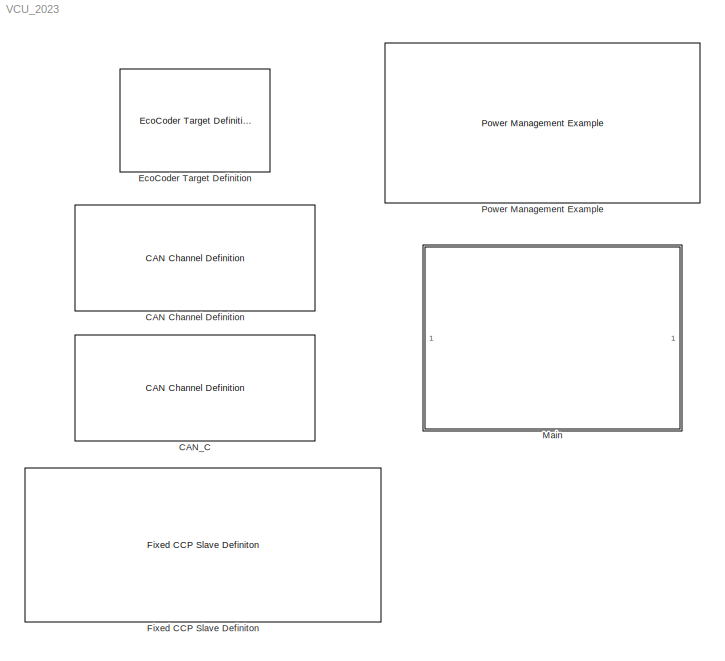
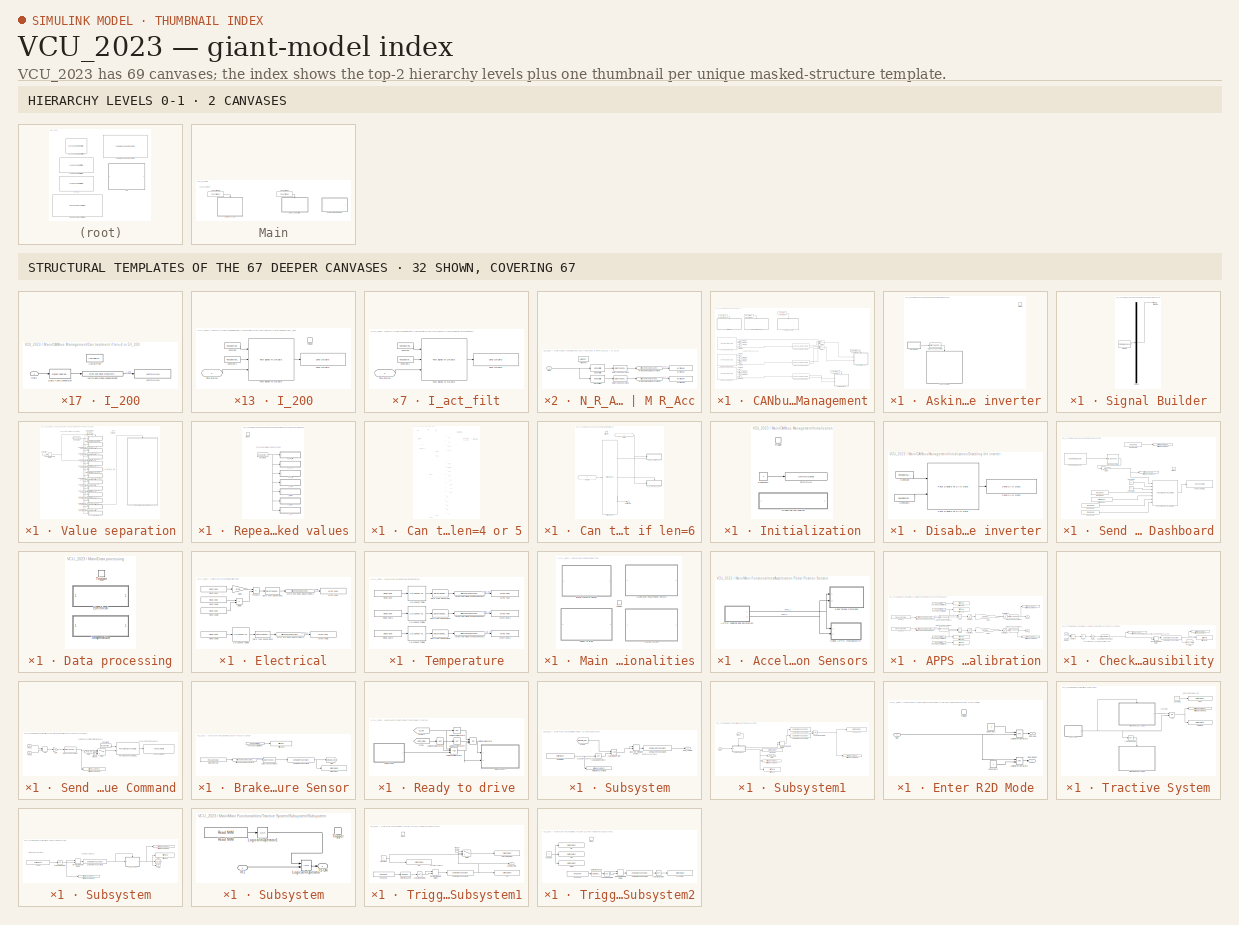
[diagram: thumbnail index - top-2 hierarchy levels (2 canvases) + 32 structural-template representatives of the remaining 67 canvases]
MODEL VCU_2023
KIND model
CONFIG InitFcn = EcoCoder_PreCheckLic();
CONFIG PreLoadFcn = try\nMDL_setup;\ncatch\nend\n
BLOCK [Reference] CAN Channel Definition  REF=CoderSF_BSW_Libs/CAN/CAN Channel Definition
  EcoCoderBlockID = C001_CANDef
  MultiThreadCoSim = auto
  Ports = []
  SID = 2881
  SourceBlock = CoderSF_BSW_Libs/CAN/CAN Channel Definition
  SourceType = CAN Channel Definition
  can_baudrateIndex = 500
  can_baudrateIndex_data = 500
  can_en = on
  can_en_fd = off
  can_idfilter = off
  can_rxID = hex2dec('100')
  can_rxMask = hex2dec('7ff')
  can_rxbuffer_size = 1
  can_rxextended = off
  can_txbuffer_size = 30
  canfd_txbuffer_size = 5
  channel = CAN_A
  fastSamplePoint = 7500
  nominalSamplePoint = 7500
BLOCK [Reference] CAN_C  REF=CoderSF_BSW_Libs/CAN/CAN Channel Definition
  EcoCoderBlockID = C001_CANDef
  MultiThreadCoSim = auto
  Ports = []
  SID = 2882
  SourceBlock = CoderSF_BSW_Libs/CAN/CAN Channel Definition
  SourceType = CAN Channel Definition
  can_baudrateIndex = 500
  can_baudrateIndex_data = 500
  can_en = on
  can_en_fd = off
  can_idfilter = off
  can_rxID = hex2dec('100')
  can_rxMask = hex2dec('7ff')
  can_rxbuffer_size = 1
  can_rxextended = off
  can_txbuffer_size = 30
  canfd_txbuffer_size = 5
  channel = CAN_C
  fastSamplePoint = 7500
  nominalSamplePoint = 7500
BLOCK [Reference] EcoCoder Target Definition  REF=CoderSF_BSW_Libs/EcoCoder Target Definition
  AttributesFormatString = Target :%<targetECU>
  EcoCoderBlockID = T001_Target
  Ports = []
  RTWMemSecDataConstants = Inherit from model
  RTWMemSecDataInternal = Inherit from model
  RTWMemSecDataParameters = Inherit from model
  RTWMemSecFuncExecute = Inherit from model
  RTWMemSecFuncInitTerm = Inherit from model
  SID = 2878
  SourceBlock = CoderSF_BSW_Libs/EcoCoder Target Definition
  SourceType = EcoCoder Target Definition
  cal_ram_msm = [hex2dec('40000000'),hex2dec('00002000')]
  cal_ram_wp = [hex2dec('4000F000'),hex2dec('00002000')]
  cal_rom_phy = [hex2dec('00010000'),hex2dec('00002000')]
  enNoTriggerCall = on
  flgBlockReduction = on
  flgClearAllOldFiles = on
  flgDisTargetOutFIleCounter = off
  flgShowDebugDisp = off
  internal_flash = [hex2dec('00020000'),hex2dec('000E0000')]
  stack = [hex2dec('40013000'),hex2dec('00001000')]
  targetECU = EV2274A
  tc275_cal_len = hex2dec('00008000')
  var_ram_wp = [hex2dec('40002000'),hex2dec('0000D000')]
  write_back_fixed_ram = [hex2dec('40011000'),hex2dec('00001000')]
  write_back_unfixed_ram = [hex2dec('40012000'),hex2dec('00001000')]
BLOCK [Reference] Fixed CCP Slave Definiton  REF=CoderSF_BSW_Libs/CCP/Fixed CCP Slave Definiton
  EcoCoderBlockID = C002_CCPConf
  MultiThreadCoSim = auto
  Ports = []
  SID = 2880
  SourceBlock = CoderSF_BSW_Libs/CCP/Fixed CCP Slave Definiton
  SourceType = Fixed CCP Slave Definiton
  ccpType = Configurable
  ccp_disASW = on
  ccp_enSet = on
  channel = CAN_C
  croidSet = hex2dec('100')
  daqidSet = [hex2dec('101') hex2dec('101') hex2dec('101') hex2dec('102')]
  daqlenSet = [hex2dec('0') hex2dec('20') hex2dec('30') hex2dec('30')]
  daqperSet = [5 20 100 0]
  daqpidSet = [hex2dec('0') hex2dec('3C') hex2dec('78') hex2dec('0')]
  dtoidSet = hex2dec('101')
  stationaddressSet = hex2dec('0112')
BLOCK [SubSystem] Main
  Ports = []
  RequestExecContextInheritance = off
  SID = 2976
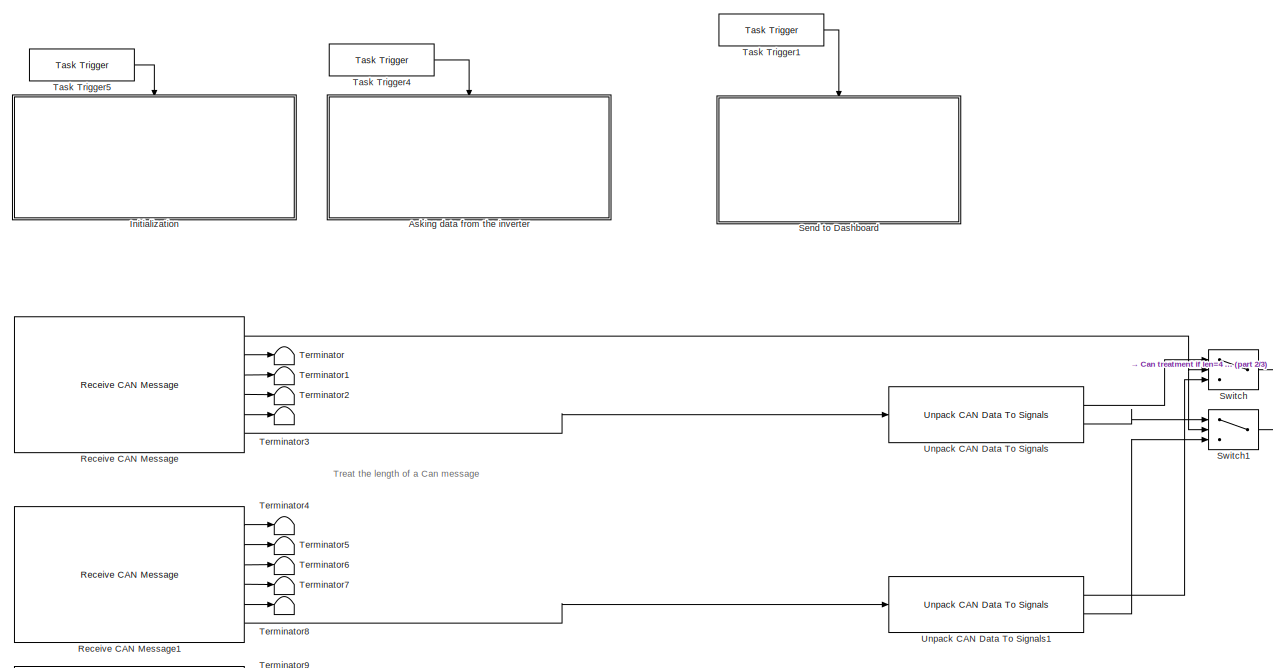
[diagram: Main/CANbus Management - part 1/3, central region]
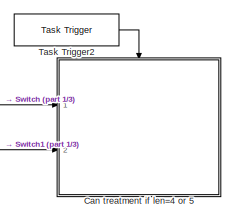
[diagram: Main/CANbus Management - part 2/3, middle right region]
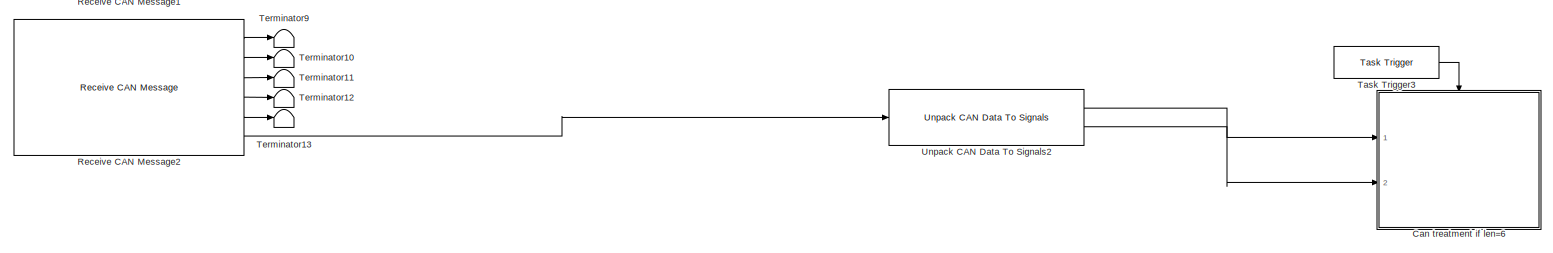
[diagram: Main/CANbus Management - part 3/3, full width, bottom band]
BLOCK [SubSystem] Main/CANbus Management
  Ports = []
  RequestExecContextInheritance = off
  SID = 3089
BLOCK [SubSystem] Main/CANbus Management/Asking data from the inverter
  Ports = [0, 0, 0, 1]
  RequestExecContextInheritance = off
  SID = 3229
BLOCK [DataTypeConversion] Main/CANbus Management/Asking data from the inverter/Data Type Conversion
  OutDataTypeStr = boolean
  RndMeth = Floor
  SID = 4264
  SaturateOnIntegerOverflow = off
BLOCK [SubSystem] Main/CANbus Management/Asking data from the inverter/Signal Builder
  ClipboardFcn = sigbuilder_block('clipboard');
  CloseFcn = sigbuilder_block('close');
  ContinueFcn = sigbuilder_block('continue');
  CopyFcn = sigbuilder_block('copy');
  DeleteFcn = sigbuilder_block('delete');
  LoadFcn = sigbuilder_block('load');
  MaskHideContents = on
  ModelCloseFcn = sigbuilder_block('modelClose');
  NameChangeFcn = sigbuilder_block('namechange');
  OpenFcn = sigbuilder_block('open',[437.6 199.2 550.4 400 ]);
  PauseFcn = sigbuilder_block('pause');
  Ports = [0, 1]
  PreSaveFcn = sigbuilder_block('preSave');
  RequestExecContextInheritance = off
  SID = 4263
  StartFcn = sigbuilder_block('start');
  StopFcn = sigbuilder_block('stop');
  Tag = STV Subsys
BLOCK [Demux] Main/CANbus Management/Asking data from the inverter/Signal Builder/Demux
  DisplayOption = none
  Outputs = 1
  Ports = [1, 1]
  SID = 4263:1
  Tag = STV Demux
BLOCK [FromWorkspace] Main/CANbus Management/Asking data from the inverter/Signal Builder/FromWs
  SID = 4263:2
  SampleTime = -1
  SigBuilderData = DataTag0
  Tag = STV FromWs
  VariableName = tuvar
  VnvData = DataTag1
BLOCK [Outport] Main/CANbus Management/Asking data from the inverter/Signal Builder/Signal 1
  SID = 4263:3
  Tag = STV Outport
BLOCK [TriggerPort] Main/CANbus Management/Asking data from the inverter/Trigger
  PortDimensions = 1
  Ports = []
  SID = 3230
  StatesWhenEnabling = held
  TriggerType = function-call
  VariantControl = Variant
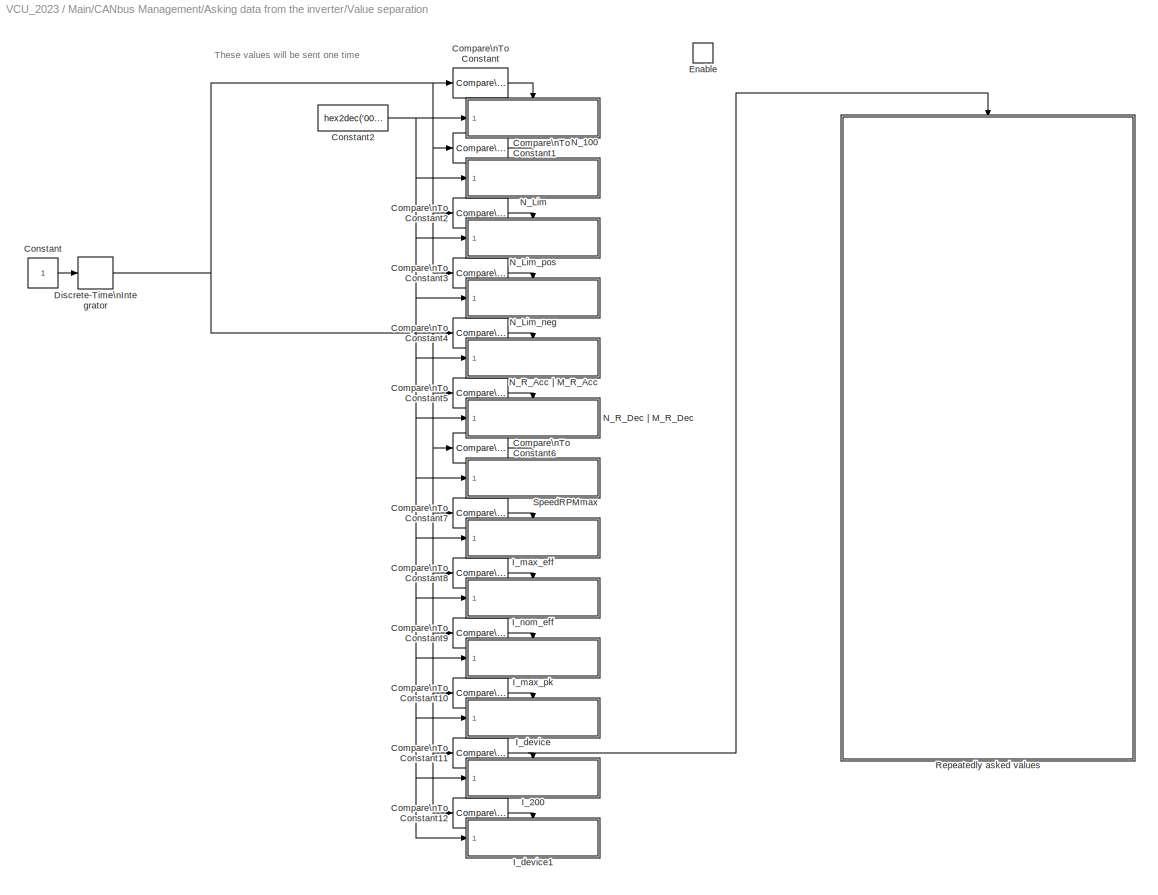
BLOCK [SubSystem] Main/CANbus Management/Asking data from the inverter/Value separation
  Ports = [0, 0, 1]
  RequestExecContextInheritance = off
  SID = 4112
BLOCK [Reference] Main/CANbus Management/Asking data from the inverter/Value separation/Compare\nTo Constant  REF=simulink/Logic and Bit\nOperations/Compare\nTo Constant
  OutDataTypeStr = boolean
  Ports = [1, 1]
  RTWMemSecDataConstants = Inherit from model
  RTWMemSecDataInternal = Inherit from model
  RTWMemSecDataParameters = Inherit from model
  RTWMemSecFuncExecute = Inherit from model
  RTWMemSecFuncInitTerm = Inherit from model
  SID = 4115
  SourceBlock = simulink/Logic and Bit\nOperations/Compare\nTo Constant
  SourceProductBaseCode = SL
  SourceType = Compare To Constant
  ZeroCross = on
  const = 0.01
  relop = >=
BLOCK [Reference] Main/CANbus Management/Asking data from the inverter/Value separation/Compare\nTo Constant1  REF=simulink/Logic and Bit\nOperations/Compare\nTo Constant
  OutDataTypeStr = boolean
  Ports = [1, 1]
  RTWMemSecDataConstants = Inherit from model
  RTWMemSecDataInternal = Inherit from model
  RTWMemSecDataParameters = Inherit from model
  RTWMemSecFuncExecute = Inherit from model
  RTWMemSecFuncInitTerm = Inherit from model
  SID = 4116
  SourceBlock = simulink/Logic and Bit\nOperations/Compare\nTo Constant
  SourceProductBaseCode = SL
  SourceType = Compare To Constant
  ZeroCross = on
  const = 0.02
  relop = >=
BLOCK [Reference] Main/CANbus Management/Asking data from the inverter/Value separation/Compare\nTo Constant10  REF=simulink/Logic and Bit\nOperations/Compare\nTo Constant
  OutDataTypeStr = boolean
  Ports = [1, 1]
  RTWMemSecDataConstants = Inherit from model
  RTWMemSecDataInternal = Inherit from model
  RTWMemSecDataParameters = Inherit from model
  RTWMemSecFuncExecute = Inherit from model
  RTWMemSecFuncInitTerm = Inherit from model
  SID = 4117
  SourceBlock = simulink/Logic and Bit\nOperations/Compare\nTo Constant
  SourceProductBaseCode = SL
  SourceType = Compare To Constant
  ZeroCross = on
  const = 0.11
  relop = >=
BLOCK [Reference] Main/CANbus Management/Asking data from the inverter/Value separation/Compare\nTo Constant11  REF=simulink/Logic and Bit\nOperations/Compare\nTo Constant
  OutDataTypeStr = boolean
  Ports = [1, 1]
  RTWMemSecDataConstants = Inherit from model
  RTWMemSecDataInternal = Inherit from model
  RTWMemSecDataParameters = Inherit from model
  RTWMemSecFuncExecute = Inherit from model
  RTWMemSecFuncInitTerm = Inherit from model
  SID = 4118
  SourceBlock = simulink/Logic and Bit\nOperations/Compare\nTo Constant
  SourceProductBaseCode = SL
  SourceType = Compare To Constant
  ZeroCross = on
  const = 0.12
  relop = >=
BLOCK [Reference] Main/CANbus Management/Asking data from the inverter/Value separation/Compare\nTo Constant12  REF=simulink/Logic and Bit\nOperations/Compare\nTo Constant
  OutDataTypeStr = boolean
  Ports = [1, 1]
  RTWMemSecDataConstants = Inherit from model
  RTWMemSecDataInternal = Inherit from model
  RTWMemSecDataParameters = Inherit from model
  RTWMemSecFuncExecute = Inherit from model
  RTWMemSecFuncInitTerm = Inherit from model
  SID = 4265
  SourceBlock = simulink/Logic and Bit\nOperations/Compare\nTo Constant
  SourceProductBaseCode = SL
  SourceType = Compare To Constant
  ZeroCross = on
  const = 0.13
  relop = >=
BLOCK [Reference] Main/CANbus Management/Asking data from the inverter/Value separation/Compare\nTo Constant2  REF=simulink/Logic and Bit\nOperations/Compare\nTo Constant
  OutDataTypeStr = boolean
  Ports = [1, 1]
  RTWMemSecDataConstants = Inherit from model
  RTWMemSecDataInternal = Inherit from model
  RTWMemSecDataParameters = Inherit from model
  RTWMemSecFuncExecute = Inherit from model
  RTWMemSecFuncInitTerm = Inherit from model
  SID = 4119
  SourceBlock = simulink/Logic and Bit\nOperations/Compare\nTo Constant
  SourceProductBaseCode = SL
  SourceType = Compare To Constant
  ZeroCross = on
  const = 0.03
  relop = >=
BLOCK [Reference] Main/CANbus Management/Asking data from the inverter/Value separation/Compare\nTo Constant3  REF=simulink/Logic and Bit\nOperations/Compare\nTo Constant
  OutDataTypeStr = boolean
  Ports = [1, 1]
  RTWMemSecDataConstants = Inherit from model
  RTWMemSecDataInternal = Inherit from model
  RTWMemSecDataParameters = Inherit from model
  RTWMemSecFuncExecute = Inherit from model
  RTWMemSecFuncInitTerm = Inherit from model
  SID = 4120
  SourceBlock = simulink/Logic and Bit\nOperations/Compare\nTo Constant
  SourceProductBaseCode = SL
  SourceType = Compare To Constant
  ZeroCross = on
  const = 0.04
  relop = >=
BLOCK [Reference] Main/CANbus Management/Asking data from the inverter/Value separation/Compare\nTo Constant4  REF=simulink/Logic and Bit\nOperations/Compare\nTo Constant
  OutDataTypeStr = boolean
  Ports = [1, 1]
  RTWMemSecDataConstants = Inherit from model
  RTWMemSecDataInternal = Inherit from model
  RTWMemSecDataParameters = Inherit from model
  RTWMemSecFuncExecute = Inherit from model
  RTWMemSecFuncInitTerm = Inherit from model
  SID = 4121
  SourceBlock = simulink/Logic and Bit\nOperations/Compare\nTo Constant
  SourceProductBaseCode = SL
  SourceType = Compare To Constant
  ZeroCross = on
  const = 0.05
  relop = >=
BLOCK [Reference] Main/CANbus Management/Asking data from the inverter/Value separation/Compare\nTo Constant5  REF=simulink/Logic and Bit\nOperations/Compare\nTo Constant
  OutDataTypeStr = boolean
  Ports = [1, 1]
  RTWMemSecDataConstants = Inherit from model
  RTWMemSecDataInternal = Inherit from model
  RTWMemSecDataParameters = Inherit from model
  RTWMemSecFuncExecute = Inherit from model
  RTWMemSecFuncInitTerm = Inherit from model
  SID = 4122
  SourceBlock = simulink/Logic and Bit\nOperations/Compare\nTo Constant
  SourceProductBaseCode = SL
  SourceType = Compare To Constant
  ZeroCross = on
  const = 0.06
  relop = >=
BLOCK [Reference] Main/CANbus Management/Asking data from the inverter/Value separation/Compare\nTo Constant6  REF=simulink/Logic and Bit\nOperations/Compare\nTo Constant
  OutDataTypeStr = boolean
  Ports = [1, 1]
  RTWMemSecDataConstants = Inherit from model
  RTWMemSecDataInternal = Inherit from model
  RTWMemSecDataParameters = Inherit from model
  RTWMemSecFuncExecute = Inherit from model
  RTWMemSecFuncInitTerm = Inherit from model
  SID = 4123
  SourceBlock = simulink/Logic and Bit\nOperations/Compare\nTo Constant
  SourceProductBaseCode = SL
  SourceType = Compare To Constant
  ZeroCross = on
  const = 0.07
  relop = >=
BLOCK [Reference] Main/CANbus Management/Asking data from the inverter/Value separation/Compare\nTo Constant7  REF=simulink/Logic and Bit\nOperations/Compare\nTo Constant
  OutDataTypeStr = boolean
  Ports = [1, 1]
  RTWMemSecDataConstants = Inherit from model
  RTWMemSecDataInternal = Inherit from model
  RTWMemSecDataParameters = Inherit from model
  RTWMemSecFuncExecute = Inherit from model
  RTWMemSecFuncInitTerm = Inherit from model
  SID = 4124
  SourceBlock = simulink/Logic and Bit\nOperations/Compare\nTo Constant
  SourceProductBaseCode = SL
  SourceType = Compare To Constant
  ZeroCross = on
  const = 0.08
  relop = >=
BLOCK [Reference] Main/CANbus Management/Asking data from the inverter/Value separation/Compare\nTo Constant8  REF=simulink/Logic and Bit\nOperations/Compare\nTo Constant
  OutDataTypeStr = boolean
  Ports = [1, 1]
  RTWMemSecDataConstants = Inherit from model
  RTWMemSecDataInternal = Inherit from model
  RTWMemSecDataParameters = Inherit from model
  RTWMemSecFuncExecute = Inherit from model
  RTWMemSecFuncInitTerm = Inherit from model
  SID = 4125
  SourceBlock = simulink/Logic and Bit\nOperations/Compare\nTo Constant
  SourceProductBaseCode = SL
  SourceType = Compare To Constant
  ZeroCross = on
  const = 0.09
  relop = >=
BLOCK [Reference] Main/CANbus Management/Asking data from the inverter/Value separation/Compare\nTo Constant9  REF=simulink/Logic and Bit\nOperations/Compare\nTo Constant
  OutDataTypeStr = boolean
  Ports = [1, 1]
  RTWMemSecDataConstants = Inherit from model
  RTWMemSecDataInternal = Inherit from model
  RTWMemSecDataParameters = Inherit from model
  RTWMemSecFuncExecute = Inherit from model
  RTWMemSecFuncInitTerm = Inherit from model
  SID = 4126
  SourceBlock = simulink/Logic and Bit\nOperations/Compare\nTo Constant
  SourceProductBaseCode = SL
  SourceType = Compare To Constant
  ZeroCross = on
  const = 0.1
  relop = >=
BLOCK [Constant] Main/CANbus Management/Asking data from the inverter/Value separation/Constant
  OutDataTypeStr = boolean
  SID = 4127
BLOCK [Constant] Main/CANbus Management/Asking data from the inverter/Value separation/Constant2
  OutDataTypeStr = uint8
  SID = 4128
  Value = hex2dec('00')
BLOCK [DiscreteIntegrator] Main/CANbus Management/Asking data from the inverter/Value separation/Discrete-Time\nIntegrator
  ICPrevOutput = DiscIntNeverNeededParam
  ICPrevScaledInput = DiscIntNeverNeededParam
  InitialConditionSetting = Auto
  Ports = [1, 1]
  SID = 4129
  SampleTime = -1
BLOCK [EnablePort] Main/CANbus Management/Asking data from the inverter/Value separation/Enable
  Ports = []
  SID = 4261
BLOCK [SubSystem] Main/CANbus Management/Asking data from the inverter/Value separation/I_200
  Ports = [1, 0, 0, 1]
  RequestExecContextInheritance = off
  SID = 4130
BLOCK [Constant] Main/CANbus Management/Asking data from the inverter/Value separation/I_200/Constant
  OutDataTypeStr = uint8
  SID = 4133
  Value = hex2dec('3d')
BLOCK [Constant] Main/CANbus Management/Asking data from the inverter/Value separation/I_200/Constant1
  OutDataTypeStr = uint8
  SID = 4134
  Value = hex2dec('d9')
BLOCK [Reference] Main/CANbus Management/Asking data from the inverter/Value separation/I_200/Pack Signals To CAN Data  REF=CoderSF_BSW_Libs/CAN/Pack Signals To CAN Data
  MultiThreadCoSim = auto
  Ports = [3, 1]
  SID = 4135
  Signal = {{'REG_31'  'Data1' 'Data2'},[0 8 16],[8 8 8],{'uint8'  'uint8' 'uint8'},{'Intel' 'Intel' 'Intel'}}
  SourceBlock = CoderSF_BSW_Libs/CAN/Pack Signals To CAN Data
  SourceType = Pack Signals To CAN Data
BLOCK [Reference] Main/CANbus Management/Asking data from the inverter/Value separation/I_200/Send CAN Data  REF=CoderSF_BSW_Libs/CAN/Send CAN Data
  MultiThreadCoSim = auto
  Ports = [1]
  SID = 4136
  SourceBlock = CoderSF_BSW_Libs/CAN/Send CAN Data
  SourceType = Send CAN Data
  channel = CAN_A
  frametype = Standard(11-bit ID)
  showerror = off
  txid = hex2dec('201')
  txlen = 3
BLOCK [Inport] Main/CANbus Management/Asking data from the inverter/Value separation/I_200/Time interval
  SID = 4131
BLOCK [TriggerPort] Main/CANbus Management/Asking data from the inverter/Value separation/I_200/Trigger
  Ports = []
  SID = 4132
  StatesWhenEnabling = held
  VariantControl = Variant
BLOCK [SubSystem] Main/CANbus Management/Asking data from the inverter/Value separation/I_device
  Ports = [1, 0, 0, 1]
  RequestExecContextInheritance = off
  SID = 4137
BLOCK [Constant] Main/CANbus Management/Asking data from the inverter/Value separation/I_device/Constant
  OutDataTypeStr = uint8
  SID = 4140
  Value = hex2dec('3d')
BLOCK [Constant] Main/CANbus Management/Asking data from the inverter/Value separation/I_device/Constant1
  OutDataTypeStr = uint8
  SID = 4141
  Value = hex2dec('c6')
BLOCK [Reference] Main/CANbus Management/Asking data from the inverter/Value separation/I_device/Pack Signals To CAN Data  REF=CoderSF_BSW_Libs/CAN/Pack Signals To CAN Data
  MultiThreadCoSim = auto
  Ports = [3, 1]
  SID = 4142
  Signal = {{'REG_31'  'Data1' 'Data2'},[0 8 16],[8 8 8],{'uint8'  'uint8' 'uint8'},{'Intel' 'Intel' 'Intel'}}
  SourceBlock = CoderSF_BSW_Libs/CAN/Pack Signals To CAN Data
  SourceType = Pack Signals To CAN Data
BLOCK [Reference] Main/CANbus Management/Asking data from the inverter/Value separation/I_device/Send CAN Data  REF=CoderSF_BSW_Libs/CAN/Send CAN Data
  MultiThreadCoSim = auto
  Ports = [1]
  SID = 4143
  SourceBlock = CoderSF_BSW_Libs/CAN/Send CAN Data
  SourceType = Send CAN Data
  channel = CAN_A
  frametype = Standard(11-bit ID)
  showerror = off
  txid = hex2dec('201')
  txlen = 3
BLOCK [Inport] Main/CANbus Management/Asking data from the inverter/Value separation/I_device/Time interval
  SID = 4138
BLOCK [TriggerPort] Main/CANbus Management/Asking data from the inverter/Value separation/I_device/Trigger
  Ports = []
  SID = 4139
  StatesWhenEnabling = held
  VariantControl = Variant
BLOCK [SubSystem] Main/CANbus Management/Asking data from the inverter/Value separation/I_device1
  Ports = [1, 0, 0, 1]
  RequestExecContextInheritance = off
  SID = 4273
BLOCK [Constant] Main/CANbus Management/Asking data from the inverter/Value separation/I_device1/Constant
  OutDataTypeStr = uint8
  SID = 4276
  Value = hex2dec('3d')
BLOCK [Constant] Main/CANbus Management/Asking data from the inverter/Value separation/I_device1/Constant1
  OutDataTypeStr = uint8
  SID = 4277
  Value = hex2dec('a8')
BLOCK [Reference] Main/CANbus Management/Asking data from the inverter/Value separation/I_device1/Pack Signals To CAN Data  REF=CoderSF_BSW_Libs/CAN/Pack Signals To CAN Data
  MultiThreadCoSim = auto
  Ports = [3, 1]
  SID = 4278
  Signal = {{'REG_31'  'Data1' 'Data2'},[0 8 16],[8 8 8],{'uint8'  'uint8' 'uint8'},{'Intel' 'Intel' 'Intel'}}
  SourceBlock = CoderSF_BSW_Libs/CAN/Pack Signals To CAN Data
  SourceType = Pack Signals To CAN Data
BLOCK [Reference] Main/CANbus Management/Asking data from the inverter/Value separation/I_device1/Send CAN Data  REF=CoderSF_BSW_Libs/CAN/Send CAN Data
  MultiThreadCoSim = auto
  Ports = [1]
  SID = 4279
  SourceBlock = CoderSF_BSW_Libs/CAN/Send CAN Data
  SourceType = Send CAN Data
  channel = CAN_A
  frametype = Standard(11-bit ID)
  showerror = off
  txid = hex2dec('201')
  txlen = 3
BLOCK [Inport] Main/CANbus Management/Asking data from the inverter/Value separation/I_device1/Time interval
  SID = 4274
BLOCK [TriggerPort] Main/CANbus Management/Asking data from the inverter/Value separation/I_device1/Trigger
  Ports = []
  SID = 4275
  StatesWhenEnabling = held
  VariantControl = Variant
BLOCK [SubSystem] Main/CANbus Management/Asking data from the inverter/Value separation/I_max_eff
  Ports = [1, 0, 0, 1]
  RequestExecContextInheritance = off
  SID = 4144
BLOCK [Constant] Main/CANbus Management/Asking data from the inverter/Value separation/I_max_eff/Constant
  OutDataTypeStr = uint8
  SID = 4147
  Value = hex2dec('3d')
BLOCK [Constant] Main/CANbus Management/Asking data from the inverter/Value separation/I_max_eff/Constant1
  OutDataTypeStr = uint8
  SID = 4148
  Value = hex2dec('4d')
BLOCK [Reference] Main/CANbus Management/Asking data from the inverter/Value separation/I_max_eff/Pack Signals To CAN Data  REF=CoderSF_BSW_Libs/CAN/Pack Signals To CAN Data
  MultiThreadCoSim = auto
  Ports = [3, 1]
  SID = 4149
  Signal = {{'REG_31'  'Data1' 'Data2'},[0 8 16],[8 8 8],{'uint8'  'uint8' 'uint8'},{'Intel' 'Intel' 'Intel'}}
  SourceBlock = CoderSF_BSW_Libs/CAN/Pack Signals To CAN Data
  SourceType = Pack Signals To CAN Data
BLOCK [Reference] Main/CANbus Management/Asking data from the inverter/Value separation/I_max_eff/Send CAN Data  REF=CoderSF_BSW_Libs/CAN/Send CAN Data
  MultiThreadCoSim = auto
  Ports = [1]
  SID = 4150
  SourceBlock = CoderSF_BSW_Libs/CAN/Send CAN Data
  SourceType = Send CAN Data
  channel = CAN_A
  frametype = Standard(11-bit ID)
  showerror = off
  txid = hex2dec('201')
  txlen = 3
BLOCK [Inport] Main/CANbus Management/Asking data from the inverter/Value separation/I_max_eff/Time interval
  SID = 4145
BLOCK [TriggerPort] Main/CANbus Management/Asking data from the inverter/Value separation/I_max_eff/Trigger
  Ports = []
  SID = 4146
  StatesWhenEnabling = held
  VariantControl = Variant
BLOCK [SubSystem] Main/CANbus Management/Asking data from the inverter/Value separation/I_max_pk
  Ports = [1, 0, 0, 1]
  RequestExecContextInheritance = off
  SID = 4151
BLOCK [Constant] Main/CANbus Management/Asking data from the inverter/Value separation/I_max_pk/Constant
  OutDataTypeStr = uint8
  SID = 4154
  Value = hex2dec('3d')
BLOCK [Constant] Main/CANbus Management/Asking data from the inverter/Value separation/I_max_pk/Constant1
  OutDataTypeStr = uint8
  SID = 4155
  Value = hex2dec('c4')
BLOCK [Reference] Main/CANbus Management/Asking data from the inverter/Value separation/I_max_pk/Pack Signals To CAN Data  REF=CoderSF_BSW_Libs/CAN/Pack Signals To CAN Data
  MultiThreadCoSim = auto
  Ports = [3, 1]
  SID = 4156
  Signal = {{'REG_31'  'Data1' 'Data2'},[0 8 16],[8 8 8],{'uint8'  'uint8' 'uint8'},{'Intel' 'Intel' 'Intel'}}
  SourceBlock = CoderSF_BSW_Libs/CAN/Pack Signals To CAN Data
  SourceType = Pack Signals To CAN Data
BLOCK [Reference] Main/CANbus Management/Asking data from the inverter/Value separation/I_max_pk/Send CAN Data  REF=CoderSF_BSW_Libs/CAN/Send CAN Data
  MultiThreadCoSim = auto
  Ports = [1]
  SID = 4157
  SourceBlock = CoderSF_BSW_Libs/CAN/Send CAN Data
  SourceType = Send CAN Data
  channel = CAN_A
  frametype = Standard(11-bit ID)
  showerror = off
  txid = hex2dec('201')
  txlen = 3
BLOCK [Inport] Main/CANbus Management/Asking data from the inverter/Value separation/I_max_pk/Time interval
  SID = 4152
BLOCK [TriggerPort] Main/CANbus Management/Asking data from the inverter/Value separation/I_max_pk/Trigger
  Ports = []
  SID = 4153
  StatesWhenEnabling = held
  VariantControl = Variant
BLOCK [SubSystem] Main/CANbus Management/Asking data from the inverter/Value separation/I_nom_eff
  Ports = [1, 0, 0, 1]
  RequestExecContextInheritance = off
  SID = 4158
BLOCK [Constant] Main/CANbus Management/Asking data from the inverter/Value separation/I_nom_eff/Constant
  OutDataTypeStr = uint8
  SID = 4161
  Value = hex2dec('3d')
BLOCK [Constant] Main/CANbus Management/Asking data from the inverter/Value separation/I_nom_eff/Constant1
  OutDataTypeStr = uint8
  SID = 4162
  Value = hex2dec('4e')
BLOCK [Reference] Main/CANbus Management/Asking data from the inverter/Value separation/I_nom_eff/Pack Signals To CAN Data  REF=CoderSF_BSW_Libs/CAN/Pack Signals To CAN Data
  MultiThreadCoSim = auto
  Ports = [3, 1]
  SID = 4163
  Signal = {{'REG_31'  'Data1' 'Data2'},[0 8 16],[8 8 8],{'uint8'  'uint8' 'uint8'},{'Intel' 'Intel' 'Intel'}}
  SourceBlock = CoderSF_BSW_Libs/CAN/Pack Signals To CAN Data
  SourceType = Pack Signals To CAN Data
BLOCK [Reference] Main/CANbus Management/Asking data from the inverter/Value separation/I_nom_eff/Send CAN Data  REF=CoderSF_BSW_Libs/CAN/Send CAN Data
  MultiThreadCoSim = auto
  Ports = [1]
  SID = 4164
  SourceBlock = CoderSF_BSW_Libs/CAN/Send CAN Data
  SourceType = Send CAN Data
  channel = CAN_A
  frametype = Standard(11-bit ID)
  showerror = off
  txid = hex2dec('201')
  txlen = 3
BLOCK [Inport] Main/CANbus Management/Asking data from the inverter/Value separation/I_nom_eff/Time interval
  SID = 4159
BLOCK [TriggerPort] Main/CANbus Management/Asking data from the inverter/Value separation/I_nom_eff/Trigger
  Ports = []
  SID = 4160
  StatesWhenEnabling = held
  VariantControl = Variant
BLOCK [SubSystem] Main/CANbus Management/Asking data from the inverter/Value separation/N_100
  Ports = [1, 0, 0, 1]
  RequestExecContextInheritance = off
  SID = 4165
BLOCK [Constant] Main/CANbus Management/Asking data from the inverter/Value separation/N_100/Constant
  OutDataTypeStr = uint8
  SID = 4168
  Value = hex2dec('3d')
BLOCK [Constant] Main/CANbus Management/Asking data from the inverter/Value separation/N_100/Constant1
  OutDataTypeStr = uint8
  SID = 4169
  Value = hex2dec('c8')
BLOCK [Reference] Main/CANbus Management/Asking data from the inverter/Value separation/N_100/Pack Signals To CAN Data  REF=CoderSF_BSW_Libs/CAN/Pack Signals To CAN Data
  MultiThreadCoSim = auto
  Ports = [3, 1]
  SID = 4170
  Signal = {{'REG_31'  'Data1' 'Data2'},[0 8 16],[8 8 8],{'uint8'  'uint8' 'uint8'},{'Intel' 'Intel' 'Intel'}}
  SourceBlock = CoderSF_BSW_Libs/CAN/Pack Signals To CAN Data
  SourceType = Pack Signals To CAN Data
BLOCK [Reference] Main/CANbus Management/Asking data from the inverter/Value separation/N_100/Send CAN Data  REF=CoderSF_BSW_Libs/CAN/Send CAN Data
  MultiThreadCoSim = auto
  Ports = [1]
  SID = 4171
  SourceBlock = CoderSF_BSW_Libs/CAN/Send CAN Data
  SourceType = Send CAN Data
  channel = CAN_A
  frametype = Standard(11-bit ID)
  showerror = off
  txid = hex2dec('201')
  txlen = 3
BLOCK [Inport] Main/CANbus Management/Asking data from the inverter/Value separation/N_100/Time interval
  SID = 4166
BLOCK [TriggerPort] Main/CANbus Management/Asking data from the inverter/Value separation/N_100/Trigger
  Ports = []
  SID = 4167
  StatesWhenEnabling = held
  VariantControl = Variant
BLOCK [SubSystem] Main/CANbus Management/Asking data from the inverter/Value separation/N_Lim
  Ports = [1, 0, 0, 1]
  RequestExecContextInheritance = off
  SID = 4172
BLOCK [Constant] Main/CANbus Management/Asking data from the inverter/Value separation/N_Lim/Constant
  OutDataTypeStr = uint8
  SID = 4175
  Value = hex2dec('3d')
BLOCK [Constant] Main/CANbus Management/Asking data from the inverter/Value separation/N_Lim/Constant1
  OutDataTypeStr = uint8
  SID = 4176
  Value = hex2dec('34')
BLOCK [Reference] Main/CANbus Management/Asking data from the inverter/Value separation/N_Lim/Pack Signals To CAN Data  REF=CoderSF_BSW_Libs/CAN/Pack Signals To CAN Data
  MultiThreadCoSim = auto
  Ports = [3, 1]
  SID = 4177
  Signal = {{'REG_31'  'Data1' 'Data2'},[0 8 16],[8 8 8],{'uint8'  'uint8' 'uint8'},{'Intel' 'Intel' 'Intel'}}
  SourceBlock = CoderSF_BSW_Libs/CAN/Pack Signals To CAN Data
  SourceType = Pack Signals To CAN Data
BLOCK [Reference] Main/CANbus Management/Asking data from the inverter/Value separation/N_Lim/Send CAN Data  REF=CoderSF_BSW_Libs/CAN/Send CAN Data
  MultiThreadCoSim = auto
  Ports = [1]
  SID = 4178
  SourceBlock = CoderSF_BSW_Libs/CAN/Send CAN Data
  SourceType = Send CAN Data
  channel = CAN_A
  frametype = Standard(11-bit ID)
  showerror = off
  txid = hex2dec('201')
  txlen = 3
BLOCK [Inport] Main/CANbus Management/Asking data from the inverter/Value separation/N_Lim/Time interval
  SID = 4173
BLOCK [TriggerPort] Main/CANbus Management/Asking data from the inverter/Value separation/N_Lim/Trigger
  Ports = []
  SID = 4174
  StatesWhenEnabling = held
  VariantControl = Variant
BLOCK [SubSystem] Main/CANbus Management/Asking data from the inverter/Value separation/N_Lim_neg
  Ports = [1, 0, 0, 1]
  RequestExecContextInheritance = off
  SID = 4179
BLOCK [Constant] Main/CANbus Management/Asking data from the inverter/Value separation/N_Lim_neg/Constant
  OutDataTypeStr = uint8
  SID = 4182
  Value = hex2dec('3d')
BLOCK [Constant] Main/CANbus Management/Asking data from the inverter/Value separation/N_Lim_neg/Constant1
  OutDataTypeStr = uint8
  SID = 4183
  Value = hex2dec('3e')
BLOCK [Reference] Main/CANbus Management/Asking data from the inverter/Value separation/N_Lim_neg/Pack Signals To CAN Data  REF=CoderSF_BSW_Libs/CAN/Pack Signals To CAN Data
  MultiThreadCoSim = auto
  Ports = [3, 1]
  SID = 4184
  Signal = {{'REG_31'  'Data1' 'Data2'},[0 8 16],[8 8 8],{'uint8'  'uint8' 'uint8'},{'Intel' 'Intel' 'Intel'}}
  SourceBlock = CoderSF_BSW_Libs/CAN/Pack Signals To CAN Data
  SourceType = Pack Signals To CAN Data
BLOCK [Reference] Main/CANbus Management/Asking data from the inverter/Value separation/N_Lim_neg/Send CAN Data  REF=CoderSF_BSW_Libs/CAN/Send CAN Data
  MultiThreadCoSim = auto
  Ports = [1]
  SID = 4185
  SourceBlock = CoderSF_BSW_Libs/CAN/Send CAN Data
  SourceType = Send CAN Data
  channel = CAN_A
  frametype = Standard(11-bit ID)
  showerror = off
  txid = hex2dec('201')
  txlen = 3
BLOCK [Inport] Main/CANbus Management/Asking data from the inverter/Value separation/N_Lim_neg/Time interval
  SID = 4180
BLOCK [TriggerPort] Main/CANbus Management/Asking data from the inverter/Value separation/N_Lim_neg/Trigger
  Ports = []
  SID = 4181
  StatesWhenEnabling = held
  VariantControl = Variant
BLOCK [SubSystem] Main/CANbus Management/Asking data from the inverter/Value separation/N_Lim_pos
  Ports = [1, 0, 0, 1]
  RequestExecContextInheritance = off
  SID = 4186
BLOCK [Constant] Main/CANbus Management/Asking data from the inverter/Value separation/N_Lim_pos/Constant
  OutDataTypeStr = uint8
  SID = 4189
  Value = hex2dec('3d')
BLOCK [Constant] Main/CANbus Management/Asking data from the inverter/Value separation/N_Lim_pos/Constant1
  OutDataTypeStr = uint8
  SID = 4190
  Value = hex2dec('3f')
BLOCK [Reference] Main/CANbus Management/Asking data from the inverter/Value separation/N_Lim_pos/Pack Signals To CAN Data  REF=CoderSF_BSW_Libs/CAN/Pack Signals To CAN Data
  MultiThreadCoSim = auto
  Ports = [3, 1]
  SID = 4191
  Signal = {{'REG_31'  'Data1' 'Data2'},[0 8 16],[8 8 8],{'uint8'  'uint8' 'uint8'},{'Intel' 'Intel' 'Intel'}}
  SourceBlock = CoderSF_BSW_Libs/CAN/Pack Signals To CAN Data
  SourceType = Pack Signals To CAN Data
BLOCK [Reference] Main/CANbus Management/Asking data from the inverter/Value separation/N_Lim_pos/Send CAN Data  REF=CoderSF_BSW_Libs/CAN/Send CAN Data
  MultiThreadCoSim = auto
  Ports = [1]
  SID = 4192
  SourceBlock = CoderSF_BSW_Libs/CAN/Send CAN Data
  SourceType = Send CAN Data
  channel = CAN_A
  frametype = Standard(11-bit ID)
  showerror = off
  txid = hex2dec('201')
  txlen = 3
BLOCK [Inport] Main/CANbus Management/Asking data from the inverter/Value separation/N_Lim_pos/Time interval
  SID = 4187
BLOCK [TriggerPort] Main/CANbus Management/Asking data from the inverter/Value separation/N_Lim_pos/Trigger
  Ports = []
  SID = 4188
  StatesWhenEnabling = held
  VariantControl = Variant
BLOCK [SubSystem] Main/CANbus Management/Asking data from the inverter/Value separation/N_R_Acc | M_R_Acc
  Ports = [1, 0, 0, 1]
  RequestExecContextInheritance = off
  SID = 4193
BLOCK [Constant] Main/CANbus Management/Asking data from the inverter/Value separation/N_R_Acc | M_R_Acc/Constant
  OutDataTypeStr = uint8
  SID = 4196
  Value = hex2dec('3d')
BLOCK [Constant] Main/CANbus Management/Asking data from the inverter/Value separation/N_R_Acc | M_R_Acc/Constant1
  OutDataTypeStr = uint8
  SID = 4197
  Value = hex2dec('35')
BLOCK [Reference] Main/CANbus Management/Asking data from the inverter/Value separation/N_R_Acc | M_R_Acc/Pack Signals To CAN Data  REF=CoderSF_BSW_Libs/CAN/Pack Signals To CAN Data
  MultiThreadCoSim = auto
  Ports = [3, 1]
  SID = 4198
  Signal = {{'REG_31'  'Data1' 'Data2'},[0 8 16],[8 8 8],{'uint8'  'uint8' 'uint8'},{'Intel' 'Intel' 'Intel'}}
  SourceBlock = CoderSF_BSW_Libs/CAN/Pack Signals To CAN Data
  SourceType = Pack Signals To CAN Data
BLOCK [Reference] Main/CANbus Management/Asking data from the inverter/Value separation/N_R_Acc | M_R_Acc/Send CAN Data  REF=CoderSF_BSW_Libs/CAN/Send CAN Data
  MultiThreadCoSim = auto
  Ports = [1]
  SID = 4199
  SourceBlock = CoderSF_BSW_Libs/CAN/Send CAN Data
  SourceType = Send CAN Data
  channel = CAN_A
  frametype = Standard(11-bit ID)
  showerror = off
  txid = hex2dec('201')
  txlen = 3
BLOCK [Inport] Main/CANbus Management/Asking data from the inverter/Value separation/N_R_Acc | M_R_Acc/Time interval
  SID = 4194
BLOCK [TriggerPort] Main/CANbus Management/Asking data from the inverter/Value separation/N_R_Acc | M_R_Acc/Trigger
  Ports = []
  SID = 4195
  StatesWhenEnabling = held
  VariantControl = Variant
BLOCK [SubSystem] Main/CANbus Management/Asking data from the inverter/Value separation/N_R_Dec | M_R_Dec
  Ports = [1, 0, 0, 1]
  RequestExecContextInheritance = off
  SID = 4200
BLOCK [Constant] Main/CANbus Management/Asking data from the inverter/Value separation/N_R_Dec | M_R_Dec/Constant
  OutDataTypeStr = uint8
  SID = 4203
  Value = hex2dec('3d')
BLOCK [Constant] Main/CANbus Management/Asking data from the inverter/Value separation/N_R_Dec | M_R_Dec/Constant1
  OutDataTypeStr = uint8
  SID = 4204
  Value = hex2dec('ed')
BLOCK [Reference] Main/CANbus Management/Asking data from the inverter/Value separation/N_R_Dec | M_R_Dec/Pack Signals To CAN Data  REF=CoderSF_BSW_Libs/CAN/Pack Signals To CAN Data
  MultiThreadCoSim = auto
  Ports = [3, 1]
  SID = 4205
  Signal = {{'REG_31'  'Data1' 'Data2'},[0 8 16],[8 8 8],{'uint8'  'uint8' 'uint8'},{'Intel' 'Intel' 'Intel'}}
  SourceBlock = CoderSF_BSW_Libs/CAN/Pack Signals To CAN Data
  SourceType = Pack Signals To CAN Data
BLOCK [Reference] Main/CANbus Management/Asking data from the inverter/Value separation/N_R_Dec | M_R_Dec/Send CAN Data  REF=CoderSF_BSW_Libs/CAN/Send CAN Data
  MultiThreadCoSim = auto
  Ports = [1]
  SID = 4206
  SourceBlock = CoderSF_BSW_Libs/CAN/Send CAN Data
  SourceType = Send CAN Data
  channel = CAN_A
  frametype = Standard(11-bit ID)
  showerror = off
  txid = hex2dec('201')
  txlen = 3
BLOCK [Inport] Main/CANbus Management/Asking data from the inverter/Value separation/N_R_Dec | M_R_Dec/Time interval
  SID = 4201
BLOCK [TriggerPort] Main/CANbus Management/Asking data from the inverter/Value separation/N_R_Dec | M_R_Dec/Trigger
  Ports = []
  SID = 4202
  StatesWhenEnabling = held
  VariantControl = Variant
BLOCK [SubSystem] Main/CANbus Management/Asking data from the inverter/Value separation/Repeatedly asked values
  Ports = [0, 0, 0, 1]
  RequestExecContextInheritance = off
  SID = 4214
BLOCK [Constant] Main/CANbus Management/Asking data from the inverter/Value separation/Repeatedly asked values/Constant1
  OutDataTypeStr = uint8
  SID = 4216
  Value = hex2dec('64')
BLOCK [SubSystem] Main/CANbus Management/Asking data from the inverter/Value separation/Repeatedly asked values/I_act_filt
  Ports = [1]
  RequestExecContextInheritance = off
  SID = 4217
BLOCK [Constant] Main/CANbus Management/Asking data from the inverter/Value separation/Repeatedly asked values/I_act_filt/Constant
  OutDataTypeStr = uint8
  SID = 4219
  Value = hex2dec('3d')
BLOCK [Constant] Main/CANbus Management/Asking data from the inverter/Value separation/Repeatedly asked values/I_act_filt/Constant1
  OutDataTypeStr = uint8
  SID = 4220
  Value = hex2dec('5f')
BLOCK [Reference] Main/CANbus Management/Asking data from the inverter/Value separation/Repeatedly asked values/I_act_filt/Pack Signals To CAN Data  REF=CoderSF_BSW_Libs/CAN/Pack Signals To CAN Data
  MultiThreadCoSim = auto
  Ports = [3, 1]
  SID = 4221
  Signal = {{'REG_31'  'Data1' 'Data2'},[0 8 16],[8 8 8],{'uint8'  'uint8' 'uint8'},{'Intel' 'Intel' 'Intel'}}
  SourceBlock = CoderSF_BSW_Libs/CAN/Pack Signals To CAN Data
  SourceType = Pack Signals To CAN Data
BLOCK [Reference] Main/CANbus Management/Asking data from the inverter/Value separation/Repeatedly asked values/I_act_filt/Send CAN Data  REF=CoderSF_BSW_Libs/CAN/Send CAN Data
  MultiThreadCoSim = auto
  Ports = [1]
  SID = 4222
  SourceBlock = CoderSF_BSW_Libs/CAN/Send CAN Data
  SourceType = Send CAN Data
  channel = CAN_A
  frametype = Standard(11-bit ID)
  showerror = off
  txid = hex2dec('201')
  txlen = 3
BLOCK [Inport] Main/CANbus Management/Asking data from the inverter/Value separation/Repeatedly asked values/I_act_filt/Time interval
  SID = 4218
BLOCK [SubSystem] Main/CANbus Management/Asking data from the inverter/Value separation/Repeatedly asked values/I_cmd
  Ports = [1]
  RequestExecContextInheritance = off
  SID = 4223
BLOCK [Constant] Main/CANbus Management/Asking data from the inverter/Value separation/Repeatedly asked values/I_cmd/Constant
  OutDataTypeStr = uint8
  SID = 4225
  Value = hex2dec('3d')
BLOCK [Constant] Main/CANbus Management/Asking data from the inverter/Value separation/Repeatedly asked values/I_cmd/Constant1
  OutDataTypeStr = uint8
  SID = 4226
  Value = hex2dec('26')
BLOCK [Reference] Main/CANbus Management/Asking data from the inverter/Value separation/Repeatedly asked values/I_cmd/Pack Signals To CAN Data  REF=CoderSF_BSW_Libs/CAN/Pack Signals To CAN Data
  MultiThreadCoSim = auto
  Ports = [3, 1]
  SID = 4227
  Signal = {{'REG_31'  'Data1' 'Data2'},[0 8 16],[8 8 8],{'uint8'  'uint8' 'uint8'},{'Intel' 'Intel' 'Intel'}}
  SourceBlock = CoderSF_BSW_Libs/CAN/Pack Signals To CAN Data
  SourceType = Pack Signals To CAN Data
BLOCK [Reference] Main/CANbus Management/Asking data from the inverter/Value separation/Repeatedly asked values/I_cmd/Send CAN Data  REF=CoderSF_BSW_Libs/CAN/Send CAN Data
  MultiThreadCoSim = auto
  Ports = [1]
  SID = 4228
  SourceBlock = CoderSF_BSW_Libs/CAN/Send CAN Data
  SourceType = Send CAN Data
  channel = CAN_A
  frametype = Standard(11-bit ID)
  showerror = off
  txid = hex2dec('201')
  txlen = 3
BLOCK [Inport] Main/CANbus Management/Asking data from the inverter/Value separation/Repeatedly asked values/I_cmd/Time interval
  SID = 4224
BLOCK [SubSystem] Main/CANbus Management/Asking data from the inverter/Value separation/Repeatedly asked values/N_act_filt
  Ports = [1]
  RequestExecContextInheritance = off
  SID = 4229
BLOCK [Constant] Main/CANbus Management/Asking data from the inverter/Value separation/Repeatedly asked values/N_act_filt/Constant
  OutDataTypeStr = uint8
  SID = 4231
  Value = hex2dec('3d')
BLOCK [Constant] Main/CANbus Management/Asking data from the inverter/Value separation/Repeatedly asked values/N_act_filt/Constant1
  OutDataTypeStr = uint8
  SID = 4232
  Value = hex2dec('a8')
BLOCK [Reference] Main/CANbus Management/Asking data from the inverter/Value separation/Repeatedly asked values/N_act_filt/Pack Signals To CAN Data  REF=CoderSF_BSW_Libs/CAN/Pack Signals To CAN Data
  MultiThreadCoSim = auto
  Ports = [3, 1]
  SID = 4233
  Signal = {{'REG_31'  'Data1' 'Data2'},[0 8 16],[8 8 8],{'uint8'  'uint8' 'uint8'},{'Intel' 'Intel' 'Intel'}}
  SourceBlock = CoderSF_BSW_Libs/CAN/Pack Signals To CAN Data
  SourceType = Pack Signals To CAN Data
BLOCK [Reference] Main/CANbus Management/Asking data from the inverter/Value separation/Repeatedly asked values/N_act_filt/Send CAN Data  REF=CoderSF_BSW_Libs/CAN/Send CAN Data
  MultiThreadCoSim = auto
  Ports = [1]
  SID = 4234
  SourceBlock = CoderSF_BSW_Libs/CAN/Send CAN Data
  SourceType = Send CAN Data
  channel = CAN_A
  frametype = Standard(11-bit ID)
  showerror = off
  txid = hex2dec('201')
  txlen = 3
BLOCK [Inport] Main/CANbus Management/Asking data from the inverter/Value separation/Repeatedly asked values/N_act_filt/Time interval
  SID = 4230
BLOCK [SubSystem] Main/CANbus Management/Asking data from the inverter/Value separation/Repeatedly asked values/T_IGBT
  Ports = [1]
  RequestExecContextInheritance = off
  SID = 4235
BLOCK [Constant] Main/CANbus Management/Asking data from the inverter/Value separation/Repeatedly asked values/T_IGBT/Constant
  OutDataTypeStr = uint8
  SID = 4237
  Value = hex2dec('3d')
BLOCK [Constant] Main/CANbus Management/Asking data from the inverter/Value separation/Repeatedly asked values/T_IGBT/Constant1
  OutDataTypeStr = uint8
  SID = 4238
  Value = hex2dec('4a')
BLOCK [Reference] Main/CANbus Management/Asking data from the inverter/Value separation/Repeatedly asked values/T_IGBT/Pack Signals To CAN Data  REF=CoderSF_BSW_Libs/CAN/Pack Signals To CAN Data
  MultiThreadCoSim = auto
  Ports = [3, 1]
  SID = 4239
  Signal = {{'REG_31'  'Data1' 'Data2'},[0 8 16],[8 8 8],{'uint8'  'uint8' 'uint8'},{'Intel' 'Intel' 'Intel'}}
  SourceBlock = CoderSF_BSW_Libs/CAN/Pack Signals To CAN Data
  SourceType = Pack Signals To CAN Data
BLOCK [Reference] Main/CANbus Management/Asking data from the inverter/Value separation/Repeatedly asked values/T_IGBT/Send CAN Data  REF=CoderSF_BSW_Libs/CAN/Send CAN Data
  MultiThreadCoSim = auto
  Ports = [1]
  SID = 4240
  SourceBlock = CoderSF_BSW_Libs/CAN/Send CAN Data
  SourceType = Send CAN Data
  channel = CAN_A
  frametype = Standard(11-bit ID)
  showerror = off
  txid = hex2dec('201')
  txlen = 3
BLOCK [Inport] Main/CANbus Management/Asking data from the inverter/Value separation/Repeatedly asked values/T_IGBT/Time interval
  SID = 4236
BLOCK [SubSystem] Main/CANbus Management/Asking data from the inverter/Value separation/Repeatedly asked values/T_air
  Ports = [1]
  RequestExecContextInheritance = off
  SID = 4241
BLOCK [Constant] Main/CANbus Management/Asking data from the inverter/Value separation/Repeatedly asked values/T_air/Constant
  OutDataTypeStr = uint8
  SID = 4243
  Value = hex2dec('3d')
BLOCK [Constant] Main/CANbus Management/Asking data from the inverter/Value separation/Repeatedly asked values/T_air/Constant1
  OutDataTypeStr = uint8
  SID = 4244
  Value = hex2dec('4b')
BLOCK [Reference] Main/CANbus Management/Asking data from the inverter/Value separation/Repeatedly asked values/T_air/Pack Signals To CAN Data  REF=CoderSF_BSW_Libs/CAN/Pack Signals To CAN Data
  MultiThreadCoSim = auto
  Ports = [3, 1]
  SID = 4245
  Signal = {{'REG_31'  'Data1' 'Data2'},[0 8 16],[8 8 8],{'uint8'  'uint8' 'uint8'},{'Intel' 'Intel' 'Intel'}}
  SourceBlock = CoderSF_BSW_Libs/CAN/Pack Signals To CAN Data
  SourceType = Pack Signals To CAN Data
BLOCK [Reference] Main/CANbus Management/Asking data from the inverter/Value separation/Repeatedly asked values/T_air/Send CAN Data  REF=CoderSF_BSW_Libs/CAN/Send CAN Data
  MultiThreadCoSim = auto
  Ports = [1]
  SID = 4246
  SourceBlock = CoderSF_BSW_Libs/CAN/Send CAN Data
  SourceType = Send CAN Data
  channel = CAN_A
  frametype = Standard(11-bit ID)
  showerror = off
  txid = hex2dec('201')
  txlen = 3
BLOCK [Inport] Main/CANbus Management/Asking data from the inverter/Value separation/Repeatedly asked values/T_air/Time interval
  SID = 4242
BLOCK [SubSystem] Main/CANbus Management/Asking data from the inverter/Value separation/Repeatedly asked values/T_motor
  Ports = [1]
  RequestExecContextInheritance = off
  SID = 4247
BLOCK [Constant] Main/CANbus Management/Asking data from the inverter/Value separation/Repeatedly asked values/T_motor/Constant
  OutDataTypeStr = uint8
  SID = 4249
  Value = hex2dec('3d')
BLOCK [Constant] Main/CANbus Management/Asking data from the inverter/Value separation/Repeatedly asked values/T_motor/Constant1
  OutDataTypeStr = uint8
  SID = 4250
  Value = hex2dec('49')
BLOCK [Reference] Main/CANbus Management/Asking data from the inverter/Value separation/Repeatedly asked values/T_motor/Pack Signals To CAN Data  REF=CoderSF_BSW_Libs/CAN/Pack Signals To CAN Data
  MultiThreadCoSim = auto
  Ports = [3, 1]
  SID = 4251
  Signal = {{'REG_31'  'Data1' 'Data2'},[0 8 16],[8 8 8],{'uint8'  'uint8' 'uint8'},{'Intel' 'Intel' 'Intel'}}
  SourceBlock = CoderSF_BSW_Libs/CAN/Pack Signals To CAN Data
  SourceType = Pack Signals To CAN Data
BLOCK [Reference] Main/CANbus Management/Asking data from the inverter/Value separation/Repeatedly asked values/T_motor/Send CAN Data  REF=CoderSF_BSW_Libs/CAN/Send CAN Data
  MultiThreadCoSim = auto
  Ports = [1]
  SID = 4252
  SourceBlock = CoderSF_BSW_Libs/CAN/Send CAN Data
  SourceType = Send CAN Data
  channel = CAN_A
  frametype = Standard(11-bit ID)
  showerror = off
  txid = hex2dec('201')
  txlen = 3
BLOCK [Inport] Main/CANbus Management/Asking data from the inverter/Value separation/Repeatedly asked values/T_motor/Time interval
  SID = 4248
BLOCK [TriggerPort] Main/CANbus Management/Asking data from the inverter/Value separation/Repeatedly asked values/Trigger
  Ports = []
  SID = 4215
  StatesWhenEnabling = held
  VariantControl = Variant
BLOCK [SubSystem] Main/CANbus Management/Asking data from the inverter/Value separation/Repeatedly asked values/Vdc_bus
  Ports = [1]
  RequestExecContextInheritance = off
  SID = 4253
BLOCK [Constant] Main/CANbus Management/Asking data from the inverter/Value separation/Repeatedly asked values/Vdc_bus/Constant
  OutDataTypeStr = uint8
  SID = 4255
  Value = hex2dec('3d')
BLOCK [Constant] Main/CANbus Management/Asking data from the inverter/Value separation/Repeatedly asked values/Vdc_bus/Constant1
  OutDataTypeStr = uint8
  SID = 4256
  Value = hex2dec('eb')
BLOCK [Reference] Main/CANbus Management/Asking data from the inverter/Value separation/Repeatedly asked values/Vdc_bus/Pack Signals To CAN Data  REF=CoderSF_BSW_Libs/CAN/Pack Signals To CAN Data
  MultiThreadCoSim = auto
  Ports = [3, 1]
  SID = 4257
  Signal = {{'REG_31'  'Data1' 'Data2'},[0 8 16],[8 8 8],{'uint8'  'uint8' 'uint8'},{'Intel' 'Intel' 'Intel'}}
  SourceBlock = CoderSF_BSW_Libs/CAN/Pack Signals To CAN Data
  SourceType = Pack Signals To CAN Data
BLOCK [Reference] Main/CANbus Management/Asking data from the inverter/Value separation/Repeatedly asked values/Vdc_bus/Send CAN Data  REF=CoderSF_BSW_Libs/CAN/Send CAN Data
  MultiThreadCoSim = auto
  Ports = [1]
  SID = 4258
  SourceBlock = CoderSF_BSW_Libs/CAN/Send CAN Data
  SourceType = Send CAN Data
  channel = CAN_A
  frametype = Standard(11-bit ID)
  showerror = off
  txid = hex2dec('201')
  txlen = 3
BLOCK [Inport] Main/CANbus Management/Asking data from the inverter/Value separation/Repeatedly asked values/Vdc_bus/Time interval
  SID = 4254
BLOCK [SubSystem] Main/CANbus Management/Asking data from the inverter/Value separation/SpeedRPMmax
  Ports = [1, 0, 0, 1]
  RequestExecContextInheritance = off
  SID = 4207
BLOCK [Constant] Main/CANbus Management/Asking data from the inverter/Value separation/SpeedRPMmax/Constant
  OutDataTypeStr = uint8
  SID = 4210
  Value = hex2dec('3d')
BLOCK [Constant] Main/CANbus Management/Asking data from the inverter/Value separation/SpeedRPMmax/Constant1
  OutDataTypeStr = uint8
  SID = 4211
  Value = hex2dec('ce')
BLOCK [Reference] Main/CANbus Management/Asking data from the inverter/Value separation/SpeedRPMmax/Pack Signals To CAN Data  REF=CoderSF_BSW_Libs/CAN/Pack Signals To CAN Data
  MultiThreadCoSim = auto
  Ports = [3, 1]
  SID = 4212
  Signal = {{'REG_31'  'Data1' 'Data2'},[0 8 16],[8 8 8],{'uint8'  'uint8' 'uint8'},{'Intel' 'Intel' 'Intel'}}
  SourceBlock = CoderSF_BSW_Libs/CAN/Pack Signals To CAN Data
  SourceType = Pack Signals To CAN Data
BLOCK [Reference] Main/CANbus Management/Asking data from the inverter/Value separation/SpeedRPMmax/Send CAN Data  REF=CoderSF_BSW_Libs/CAN/Send CAN Data
  MultiThreadCoSim = auto
  Ports = [1]
  SID = 4213
  SourceBlock = CoderSF_BSW_Libs/CAN/Send CAN Data
  SourceType = Send CAN Data
  channel = CAN_A
  frametype = Standard(11-bit ID)
  showerror = off
  txid = hex2dec('201')
  txlen = 3
BLOCK [Inport] Main/CANbus Management/Asking data from the inverter/Value separation/SpeedRPMmax/Time interval
  SID = 4208
BLOCK [TriggerPort] Main/CANbus Management/Asking data from the inverter/Value separation/SpeedRPMmax/Trigger
  Ports = []
  SID = 4209
  StatesWhenEnabling = held
  VariantControl = Variant
BLOCK [SubSystem] Main/CANbus Management/Can treatment if len=4 or 5
  Ports = [2, 0, 0, 1]
  RequestExecContextInheritance = off
  SID = 3094
  TreatAsAtomicUnit = on
BLOCK [Inport] Main/CANbus Management/Can treatment if len=4 or 5/Data
  IconDisplay = Signal name
  Port = 2
  SID = 3099
BLOCK [DataTypeConversion] Main/CANbus Management/Can treatment if len=4 or 5/Data Type Conversion
  NameLocation = left
  RndMeth = Floor
  SID = 3741
  SaturateOnIntegerOverflow = off
BLOCK [SubSystem] Main/CANbus Management/Can treatment if len=4 or 5/I_200
  Ports = [1, 0, 0, 0, 0, 0, 0, 1]
  RequestExecContextInheritance = off
  SID = 3101
  TreatAsAtomicUnit = on
BLOCK [ActionPort] Main/CANbus Management/Can treatment if len=4 or 5/I_200/Action Port
  ActionPortLabel = case [ 217 ]:
  SID = 3103
BLOCK [Inport] Main/CANbus Management/Can treatment if len=4 or 5/I_200/Data
  SID = 3102
BLOCK [DataTypeConversion] Main/CANbus Management/Can treatment if len=4 or 5/I_200/Data Type Conversion
  RndMeth = Floor
  SID = 3104
  SaturateOnIntegerOverflow = off
BLOCK [Reference] Main/CANbus Management/Can treatment if len=4 or 5/I_200/Write NVM  REF=CoderSF_BSW_Libs/Non-volatile Memory Blocks/Write NVM
  AttributesFormatString = value:%<variable_value> type:%<variable_type> D:%<variable_numD>
  EcoCoderBlockID = N001_NVMVDEF
  MultiThreadCoSim = auto
  Ports = [1]
  SID = 3105
  SourceBlock = CoderSF_BSW_Libs/Non-volatile Memory Blocks/Write NVM
  SourceType = Write NVM
  flgDef = on
  variable_name = nvmI_200
  variable_numD = 1
  variable_type = int16
  variable_value = 0
BLOCK [Reference] Main/CANbus Management/Can treatment if len=4 or 5/I_200/Write and Read Measurement  REF=CoderSF_BSW_Libs/Calibration & Measurement/Write and Read Measurement
  AttributesFormatString = type:%<variable_type> Dimensions:%<numD>
  Ports = [1, 1]
  RTWMemSecDataConstants = Inherit from model
  RTWMemSecDataInternal = Inherit from model
  RTWMemSecDataParameters = Inherit from model
  RTWMemSecFuncExecute = Inherit from model
  RTWMemSecFuncInitTerm = Inherit from model
  SID = 3106
  SourceBlock = CoderSF_BSW_Libs/Calibration & Measurement/Write and Read Measurement
  SourceType = Write and Read Measurement
  numD = 1
  variable_name = I_200
  variable_type = int16
  variable_value = 0
BLOCK [SubSystem] Main/CANbus Management/Can treatment if len=4 or 5/I_act_filt
  Ports = [1, 0, 0, 0, 0, 0, 0, 1]
  RequestExecContextInheritance = off
  SID = 3107
  TreatAsAtomicUnit = on
BLOCK [ActionPort] Main/CANbus Management/Can treatment if len=4 or 5/I_act_filt/Action Port
  ActionPortLabel = case [ 95 ]:
  SID = 3109
BLOCK [Inport] Main/CANbus Management/Can treatment if len=4 or 5/I_act_filt/Data
  SID = 3108
BLOCK [DataTypeConversion] Main/CANbus Management/Can treatment if len=4 or 5/I_act_filt/Data Type Conversion
  RndMeth = Floor
  SID = 3110
  SaturateOnIntegerOverflow = off
BLOCK [Reference] Main/CANbus Management/Can treatment if len=4 or 5/I_act_filt/Write NVM  REF=CoderSF_BSW_Libs/Non-volatile Memory Blocks/Write NVM
  AttributesFormatString = value:%<variable_value> type:%<variable_type> D:%<variable_numD>
  EcoCoderBlockID = N001_NVMVDEF
  MultiThreadCoSim = auto
  Ports = [1]
  SID = 3111
  SourceBlock = CoderSF_BSW_Libs/Non-volatile Memory Blocks/Write NVM
  SourceType = Write NVM
  flgDef = on
  variable_name = nvmI_act_filt
  variable_numD = 1
  variable_type = int16
  variable_value = 0
BLOCK [Reference] Main/CANbus Management/Can treatment if len=4 or 5/I_act_filt/Write and Read Measurement  REF=CoderSF_BSW_Libs/Calibration & Measurement/Write and Read Measurement
  AttributesFormatString = type:%<variable_type> Dimensions:%<numD>
  Ports = [1, 1]
  RTWMemSecDataConstants = Inherit from model
  RTWMemSecDataInternal = Inherit from model
  RTWMemSecDataParameters = Inherit from model
  RTWMemSecFuncExecute = Inherit from model
  RTWMemSecFuncInitTerm = Inherit from model
  SID = 3112
  SourceBlock = CoderSF_BSW_Libs/Calibration & Measurement/Write and Read Measurement
  SourceType = Write and Read Measurement
  numD = 1
  variable_name = I_act_filt
  variable_type = int16
  variable_value = 0
BLOCK [SubSystem] Main/CANbus Management/Can treatment if len=4 or 5/I_cmd
  Ports = [1, 0, 0, 0, 0, 0, 0, 1]
  RequestExecContextInheritance = off
  SID = 3113
  TreatAsAtomicUnit = on
BLOCK [ActionPort] Main/CANbus Management/Can treatment if len=4 or 5/I_cmd/Action Port
  ActionPortLabel = case [ 38 ]:
  SID = 3115
BLOCK [Inport] Main/CANbus Management/Can treatment if len=4 or 5/I_cmd/Data
  SID = 3114
BLOCK [DataTypeConversion] Main/CANbus Management/Can treatment if len=4 or 5/I_cmd/Data Type Conversion
  RndMeth = Floor
  SID = 3116
  SaturateOnIntegerOverflow = off
BLOCK [Reference] Main/CANbus Management/Can treatment if len=4 or 5/I_cmd/Write NVM  REF=CoderSF_BSW_Libs/Non-volatile Memory Blocks/Write NVM
  AttributesFormatString = value:%<variable_value> type:%<variable_type> D:%<variable_numD>
  EcoCoderBlockID = N001_NVMVDEF
  MultiThreadCoSim = auto
  Ports = [1]
  SID = 3117
  SourceBlock = CoderSF_BSW_Libs/Non-volatile Memory Blocks/Write NVM
  SourceType = Write NVM
  flgDef = on
  variable_name = nvmI_cmd
  variable_numD = 1
  variable_type = int16
  variable_value = 0
BLOCK [Reference] Main/CANbus Management/Can treatment if len=4 or 5/I_cmd/Write and Read Measurement  REF=CoderSF_BSW_Libs/Calibration & Measurement/Write and Read Measurement
  AttributesFormatString = type:%<variable_type> Dimensions:%<numD>
  Ports = [1, 1]
  RTWMemSecDataConstants = Inherit from model
  RTWMemSecDataInternal = Inherit from model
  RTWMemSecDataParameters = Inherit from model
  RTWMemSecFuncExecute = Inherit from model
  RTWMemSecFuncInitTerm = Inherit from model
  SID = 3118
  SourceBlock = CoderSF_BSW_Libs/Calibration & Measurement/Write and Read Measurement
  SourceType = Write and Read Measurement
  numD = 1
  variable_name = I_cmd
  variable_type = int16
  variable_value = 0
BLOCK [SubSystem] Main/CANbus Management/Can treatment if len=4 or 5/I_device
  Ports = [1, 0, 0, 0, 0, 0, 0, 1]
  RequestExecContextInheritance = off
  SID = 3119
  TreatAsAtomicUnit = on
BLOCK [ActionPort] Main/CANbus Management/Can treatment if len=4 or 5/I_device/Action Port
  ActionPortLabel = case [ 198 ]:
  SID = 3121
BLOCK [Inport] Main/CANbus Management/Can treatment if len=4 or 5/I_device/Data
  SID = 3120
BLOCK [DataTypeConversion] Main/CANbus Management/Can treatment if len=4 or 5/I_device/Data Type Conversion
  RndMeth = Floor
  SID = 3122
  SaturateOnIntegerOverflow = off
BLOCK [Reference] Main/CANbus Management/Can treatment if len=4 or 5/I_device/Write NVM  REF=CoderSF_BSW_Libs/Non-volatile Memory Blocks/Write NVM
  AttributesFormatString = value:%<variable_value> type:%<variable_type> D:%<variable_numD>
  EcoCoderBlockID = N001_NVMVDEF
  MultiThreadCoSim = auto
  Ports = [1]
  SID = 3123
  SourceBlock = CoderSF_BSW_Libs/Non-volatile Memory Blocks/Write NVM
  SourceType = Write NVM
  flgDef = on
  variable_name = nvmI_device
  variable_numD = 1
  variable_type = int16
  variable_value = 0
BLOCK [Reference] Main/CANbus Management/Can treatment if len=4 or 5/I_device/Write and Read Measurement  REF=CoderSF_BSW_Libs/Calibration & Measurement/Write and Read Measurement
  AttributesFormatString = type:%<variable_type> Dimensions:%<numD>
  Ports = [1, 1]
  RTWMemSecDataConstants = Inherit from model
  RTWMemSecDataInternal = Inherit from model
  RTWMemSecDataParameters = Inherit from model
  RTWMemSecFuncExecute = Inherit from model
  RTWMemSecFuncInitTerm = Inherit from model
  SID = 3124
  SourceBlock = CoderSF_BSW_Libs/Calibration & Measurement/Write and Read Measurement
  SourceType = Write and Read Measurement
  numD = 1
  variable_name = I_device
  variable_type = int16
  variable_value = 0
BLOCK [SubSystem] Main/CANbus Management/Can treatment if len=4 or 5/I_max_eff
  Ports = [1, 0, 0, 0, 0, 0, 0, 1]
  RequestExecContextInheritance = off
  SID = 3125
  TreatAsAtomicUnit = on
BLOCK [ActionPort] Main/CANbus Management/Can treatment if len=4 or 5/I_max_eff/Action Port
  ActionPortLabel = case [ 77 ]:
  SID = 3127
BLOCK [Inport] Main/CANbus Management/Can treatment if len=4 or 5/I_max_eff/Data
  SID = 3126
BLOCK [DataTypeConversion] Main/CANbus Management/Can treatment if len=4 or 5/I_max_eff/Data Type Conversion
  RndMeth = Floor
  SID = 3128
  SaturateOnIntegerOverflow = off
BLOCK [Reference] Main/CANbus Management/Can treatment if len=4 or 5/I_max_eff/Write NVM  REF=CoderSF_BSW_Libs/Non-volatile Memory Blocks/Write NVM
  AttributesFormatString = value:%<variable_value> type:%<variable_type> D:%<variable_numD>
  EcoCoderBlockID = N001_NVMVDEF
  MultiThreadCoSim = auto
  Ports = [1]
  SID = 3129
  SourceBlock = CoderSF_BSW_Libs/Non-volatile Memory Blocks/Write NVM
  SourceType = Write NVM
  flgDef = on
  variable_name = nvmI_max_eff
  variable_numD = 1
  variable_type = int16
  variable_value = 0
BLOCK [Reference] Main/CANbus Management/Can treatment if len=4 or 5/I_max_eff/Write and Read Measurement  REF=CoderSF_BSW_Libs/Calibration & Measurement/Write and Read Measurement
  AttributesFormatString = type:%<variable_type> Dimensions:%<numD>
  Ports = [1, 1]
  RTWMemSecDataConstants = Inherit from model
  RTWMemSecDataInternal = Inherit from model
  RTWMemSecDataParameters = Inherit from model
  RTWMemSecFuncExecute = Inherit from model
  RTWMemSecFuncInitTerm = Inherit from model
  SID = 3130
  SourceBlock = CoderSF_BSW_Libs/Calibration & Measurement/Write and Read Measurement
  SourceType = Write and Read Measurement
  numD = 1
  variable_name = I_max_eff
  variable_type = int16
  variable_value = 0
BLOCK [SubSystem] Main/CANbus Management/Can treatment if len=4 or 5/I_max_pk
  Ports = [1, 0, 0, 0, 0, 0, 0, 1]
  RequestExecContextInheritance = off
  SID = 3131
  TreatAsAtomicUnit = on
BLOCK [ActionPort] Main/CANbus Management/Can treatment if len=4 or 5/I_max_pk/Action Port
  ActionPortLabel = case [ 196 ]:
  SID = 3133
BLOCK [Inport] Main/CANbus Management/Can treatment if len=4 or 5/I_max_pk/Data
  SID = 3132
BLOCK [DataTypeConversion] Main/CANbus Management/Can treatment if len=4 or 5/I_max_pk/Data Type Conversion
  RndMeth = Floor
  SID = 3134
  SaturateOnIntegerOverflow = off
BLOCK [Reference] Main/CANbus Management/Can treatment if len=4 or 5/I_max_pk/Write NVM  REF=CoderSF_BSW_Libs/Non-volatile Memory Blocks/Write NVM
  AttributesFormatString = value:%<variable_value> type:%<variable_type> D:%<variable_numD>
  EcoCoderBlockID = N001_NVMVDEF
  MultiThreadCoSim = auto
  Ports = [1]
  SID = 3135
  SourceBlock = CoderSF_BSW_Libs/Non-volatile Memory Blocks/Write NVM
  SourceType = Write NVM
  flgDef = on
  variable_name = nvmI_max_pk
  variable_numD = 1
  variable_type = int16
  variable_value = 0
BLOCK [Reference] Main/CANbus Management/Can treatment if len=4 or 5/I_max_pk/Write and Read Measurement  REF=CoderSF_BSW_Libs/Calibration & Measurement/Write and Read Measurement
  AttributesFormatString = type:%<variable_type> Dimensions:%<numD>
  Ports = [1, 1]
  RTWMemSecDataConstants = Inherit from model
  RTWMemSecDataInternal = Inherit from model
  RTWMemSecDataParameters = Inherit from model
  RTWMemSecFuncExecute = Inherit from model
  RTWMemSecFuncInitTerm = Inherit from model
  SID = 3136
  SourceBlock = CoderSF_BSW_Libs/Calibration & Measurement/Write and Read Measurement
  SourceType = Write and Read Measurement
  numD = 1
  variable_name = I_max_pk
  variable_type = int16
  variable_value = 0
BLOCK [SubSystem] Main/CANbus Management/Can treatment if len=4 or 5/I_nom_eff
  Ports = [1, 0, 0, 0, 0, 0, 0, 1]
  RequestExecContextInheritance = off
  SID = 3137
  TreatAsAtomicUnit = on
BLOCK [ActionPort] Main/CANbus Management/Can treatment if len=4 or 5/I_nom_eff/Action Port
  ActionPortLabel = case [ 78 ]:
  SID = 3139
BLOCK [Inport] Main/CANbus Management/Can treatment if len=4 or 5/I_nom_eff/Data
  SID = 3138
BLOCK [DataTypeConversion] Main/CANbus Management/Can treatment if len=4 or 5/I_nom_eff/Data Type Conversion
  RndMeth = Floor
  SID = 3140
  SaturateOnIntegerOverflow = off
BLOCK [Reference] Main/CANbus Management/Can treatment if len=4 or 5/I_nom_eff/Write NVM  REF=CoderSF_BSW_Libs/Non-volatile Memory Blocks/Write NVM
  AttributesFormatString = value:%<variable_value> type:%<variable_type> D:%<variable_numD>
  EcoCoderBlockID = N001_NVMVDEF
  MultiThreadCoSim = auto
  Ports = [1]
  SID = 3141
  SourceBlock = CoderSF_BSW_Libs/Non-volatile Memory Blocks/Write NVM
  SourceType = Write NVM
  flgDef = on
  variable_name = nvmI_nom_eff
  variable_numD = 1
  variable_type = int16
  variable_value = 0
BLOCK [Reference] Main/CANbus Management/Can treatment if len=4 or 5/I_nom_eff/Write and Read Measurement  REF=CoderSF_BSW_Libs/Calibration & Measurement/Write and Read Measurement
  AttributesFormatString = type:%<variable_type> Dimensions:%<numD>
  Ports = [1, 1]
  RTWMemSecDataConstants = Inherit from model
  RTWMemSecDataInternal = Inherit from model
  RTWMemSecDataParameters = Inherit from model
  RTWMemSecFuncExecute = Inherit from model
  RTWMemSecFuncInitTerm = Inherit from model
  SID = 3142
  SourceBlock = CoderSF_BSW_Libs/Calibration & Measurement/Write and Read Measurement
  SourceType = Write and Read Measurement
  numD = 1
  variable_name = I_nom_eff
  variable_type = int16
  variable_value = 0
BLOCK [SubSystem] Main/CANbus Management/Can treatment if len=4 or 5/N_100
  Ports = [1, 0, 0, 0, 0, 0, 0, 1]
  RequestExecContextInheritance = off
  SID = 3143
  TreatAsAtomicUnit = on
BLOCK [ActionPort] Main/CANbus Management/Can treatment if len=4 or 5/N_100/Action Port
  ActionPortLabel = case [ 200 ]:
  SID = 3145
BLOCK [Inport] Main/CANbus Management/Can treatment if len=4 or 5/N_100/Data
  SID = 3144
BLOCK [DataTypeConversion] Main/CANbus Management/Can treatment if len=4 or 5/N_100/Data Type Conversion
  RndMeth = Floor
  SID = 3146
  SaturateOnIntegerOverflow = off
BLOCK [Reference] Main/CANbus Management/Can treatment if len=4 or 5/N_100/Write NVM  REF=CoderSF_BSW_Libs/Non-volatile Memory Blocks/Write NVM
  AttributesFormatString = value:%<variable_value> type:%<variable_type> D:%<variable_numD>
  EcoCoderBlockID = N001_NVMVDEF
  MultiThreadCoSim = auto
  Ports = [1]
  SID = 3147
  SourceBlock = CoderSF_BSW_Libs/Non-volatile Memory Blocks/Write NVM
  SourceType = Write NVM
  flgDef = on
  variable_name = nvmN_100
  variable_numD = 1
  variable_type = uint16
  variable_value = 0
BLOCK [Reference] Main/CANbus Management/Can treatment if len=4 or 5/N_100/Write and Read Measurement  REF=CoderSF_BSW_Libs/Calibration & Measurement/Write and Read Measurement
  AttributesFormatString = type:%<variable_type> Dimensions:%<numD>
  Ports = [1, 1]
  RTWMemSecDataConstants = Inherit from model
  RTWMemSecDataInternal = Inherit from model
  RTWMemSecDataParameters = Inherit from model
  RTWMemSecFuncExecute = Inherit from model
  RTWMemSecFuncInitTerm = Inherit from model
  SID = 3148
  SourceBlock = CoderSF_BSW_Libs/Calibration & Measurement/Write and Read Measurement
  SourceType = Write and Read Measurement
  numD = 1
  variable_name = N_100
  variable_type = uint16
  variable_value = 0
BLOCK [SubSystem] Main/CANbus Management/Can treatment if len=4 or 5/N_Lim
  Ports = [1, 0, 0, 0, 0, 0, 0, 1]
  RequestExecContextInheritance = off
  SID = 3149
  TreatAsAtomicUnit = on
BLOCK [ActionPort] Main/CANbus Management/Can treatment if len=4 or 5/N_Lim/Action Port
  ActionPortLabel = case [ 52 ]:
  SID = 3151
BLOCK [Inport] Main/CANbus Management/Can treatment if len=4 or 5/N_Lim/Data
  SID = 3150
BLOCK [DataTypeConversion] Main/CANbus Management/Can treatment if len=4 or 5/N_Lim/Data Type Conversion
  RndMeth = Floor
  SID = 3152
  SaturateOnIntegerOverflow = off
BLOCK [Reference] Main/CANbus Management/Can treatment if len=4 or 5/N_Lim/Write NVM  REF=CoderSF_BSW_Libs/Non-volatile Memory Blocks/Write NVM
  AttributesFormatString = value:%<variable_value> type:%<variable_type> D:%<variable_numD>
  EcoCoderBlockID = N001_NVMVDEF
  MultiThreadCoSim = auto
  Ports = [1]
  SID = 3153
  SourceBlock = CoderSF_BSW_Libs/Non-volatile Memory Blocks/Write NVM
  SourceType = Write NVM
  flgDef = on
  variable_name = nvmN_lim
  variable_numD = 1
  variable_type = uint16
  variable_value = 0
BLOCK [Reference] Main/CANbus Management/Can treatment if len=4 or 5/N_Lim/Write and Read Measurement  REF=CoderSF_BSW_Libs/Calibration & Measurement/Write and Read Measurement
  AttributesFormatString = type:%<variable_type> Dimensions:%<numD>
  Ports = [1, 1]
  RTWMemSecDataConstants = Inherit from model
  RTWMemSecDataInternal = Inherit from model
  RTWMemSecDataParameters = Inherit from model
  RTWMemSecFuncExecute = Inherit from model
  RTWMemSecFuncInitTerm = Inherit from model
  SID = 3154
  SourceBlock = CoderSF_BSW_Libs/Calibration & Measurement/Write and Read Measurement
  SourceType = Write and Read Measurement
  numD = 1
  variable_name = N_lim
  variable_type = uint16
  variable_value = 0
BLOCK [SubSystem] Main/CANbus Management/Can treatment if len=4 or 5/N_Lim_neg
  Ports = [1, 0, 0, 0, 0, 0, 0, 1]
  RequestExecContextInheritance = off
  SID = 3155
  TreatAsAtomicUnit = on
BLOCK [ActionPort] Main/CANbus Management/Can treatment if len=4 or 5/N_Lim_neg/Action Port
  ActionPortLabel = case [ 62 ]:
  SID = 3157
BLOCK [Inport] Main/CANbus Management/Can treatment if len=4 or 5/N_Lim_neg/Data
  SID = 3156
BLOCK [DataTypeConversion] Main/CANbus Management/Can treatment if len=4 or 5/N_Lim_neg/Data Type Conversion
  RndMeth = Floor
  SID = 3158
  SaturateOnIntegerOverflow = off
BLOCK [Reference] Main/CANbus Management/Can treatment if len=4 or 5/N_Lim_neg/Write NVM  REF=CoderSF_BSW_Libs/Non-volatile Memory Blocks/Write NVM
  AttributesFormatString = value:%<variable_value> type:%<variable_type> D:%<variable_numD>
  EcoCoderBlockID = N001_NVMVDEF
  MultiThreadCoSim = auto
  Ports = [1]
  SID = 3159
  SourceBlock = CoderSF_BSW_Libs/Non-volatile Memory Blocks/Write NVM
  SourceType = Write NVM
  flgDef = on
  variable_name = nvmN_lim_neg
  variable_numD = 1
  variable_type = int16
  variable_value = 0
BLOCK [Reference] Main/CANbus Management/Can treatment if len=4 or 5/N_Lim_neg/Write and Read Measurement  REF=CoderSF_BSW_Libs/Calibration & Measurement/Write and Read Measurement
  AttributesFormatString = type:%<variable_type> Dimensions:%<numD>
  Ports = [1, 1]
  RTWMemSecDataConstants = Inherit from model
  RTWMemSecDataInternal = Inherit from model
  RTWMemSecDataParameters = Inherit from model
  RTWMemSecFuncExecute = Inherit from model
  RTWMemSecFuncInitTerm = Inherit from model
  SID = 3160
  SourceBlock = CoderSF_BSW_Libs/Calibration & Measurement/Write and Read Measurement
  SourceType = Write and Read Measurement
  numD = 1
  variable_name = N_lim_neg
  variable_type = int16
  variable_value = 0
BLOCK [SubSystem] Main/CANbus Management/Can treatment if len=4 or 5/N_Lim_pos
  Ports = [1, 0, 0, 0, 0, 0, 0, 1]
  RequestExecContextInheritance = off
  SID = 3161
  TreatAsAtomicUnit = on
BLOCK [ActionPort] Main/CANbus Management/Can treatment if len=4 or 5/N_Lim_pos/Action Port
  ActionPortLabel = case [ 63 ]:
  SID = 3163
BLOCK [Inport] Main/CANbus Management/Can treatment if len=4 or 5/N_Lim_pos/Data
  SID = 3162
BLOCK [DataTypeConversion] Main/CANbus Management/Can treatment if len=4 or 5/N_Lim_pos/Data Type Conversion
  RndMeth = Floor
  SID = 3164
  SaturateOnIntegerOverflow = off
BLOCK [Reference] Main/CANbus Management/Can treatment if len=4 or 5/N_Lim_pos/Write NVM  REF=CoderSF_BSW_Libs/Non-volatile Memory Blocks/Write NVM
  AttributesFormatString = value:%<variable_value> type:%<variable_type> D:%<variable_numD>
  EcoCoderBlockID = N001_NVMVDEF
  MultiThreadCoSim = auto
  Ports = [1]
  SID = 3165
  SourceBlock = CoderSF_BSW_Libs/Non-volatile Memory Blocks/Write NVM
  SourceType = Write NVM
  flgDef = on
  variable_name = nvmN_lim_pos
  variable_numD = 1
  variable_type = int16
  variable_value = 0
BLOCK [Reference] Main/CANbus Management/Can treatment if len=4 or 5/N_Lim_pos/Write and Read Measurement  REF=CoderSF_BSW_Libs/Calibration & Measurement/Write and Read Measurement
  AttributesFormatString = type:%<variable_type> Dimensions:%<numD>
  Ports = [1, 1]
  RTWMemSecDataConstants = Inherit from model
  RTWMemSecDataInternal = Inherit from model
  RTWMemSecDataParameters = Inherit from model
  RTWMemSecFuncExecute = Inherit from model
  RTWMemSecFuncInitTerm = Inherit from model
  SID = 3166
  SourceBlock = CoderSF_BSW_Libs/Calibration & Measurement/Write and Read Measurement
  SourceType = Write and Read Measurement
  numD = 1
  variable_name = N_lim_pos
  variable_type = int16
  variable_value = 0
BLOCK [SubSystem] Main/CANbus Management/Can treatment if len=4 or 5/N_act_filt
  Ports = [1, 0, 0, 0, 0, 0, 0, 1]
  RequestExecContextInheritance = off
  SID = 3191
  TreatAsAtomicUnit = on
BLOCK [ActionPort] Main/CANbus Management/Can treatment if len=4 or 5/N_act_filt/Action Port
  ActionPortLabel = case [ 168 ]:
  SID = 3193
BLOCK [Inport] Main/CANbus Management/Can treatment if len=4 or 5/N_act_filt/Data
  SID = 3192
BLOCK [DataTypeConversion] Main/CANbus Management/Can treatment if len=4 or 5/N_act_filt/Data Type Conversion
  RndMeth = Floor
  SID = 3194
  SaturateOnIntegerOverflow = off
BLOCK [Reference] Main/CANbus Management/Can treatment if len=4 or 5/N_act_filt/Write NVM  REF=CoderSF_BSW_Libs/Non-volatile Memory Blocks/Write NVM
  AttributesFormatString = value:%<variable_value> type:%<variable_type> D:%<variable_numD>
  EcoCoderBlockID = N001_NVMVDEF
  MultiThreadCoSim = auto
  Ports = [1]
  SID = 3195
  SourceBlock = CoderSF_BSW_Libs/Non-volatile Memory Blocks/Write NVM
  SourceType = Write NVM
  flgDef = on
  variable_name = nvmN_act_filt
  variable_numD = 1
  variable_type = int16
  variable_value = 0
BLOCK [Reference] Main/CANbus Management/Can treatment if len=4 or 5/N_act_filt/Write and Read Measurement  REF=CoderSF_BSW_Libs/Calibration & Measurement/Write and Read Measurement
  AttributesFormatString = type:%<variable_type> Dimensions:%<numD>
  Ports = [1, 1]
  RTWMemSecDataConstants = Inherit from model
  RTWMemSecDataInternal = Inherit from model
  RTWMemSecDataParameters = Inherit from model
  RTWMemSecFuncExecute = Inherit from model
  RTWMemSecFuncInitTerm = Inherit from model
  SID = 3196
  SourceBlock = CoderSF_BSW_Libs/Calibration & Measurement/Write and Read Measurement
  SourceType = Write and Read Measurement
  numD = 1
  variable_name = N_act_filt
  variable_type = int16
  variable_value = 0
BLOCK [Reference] Main/CANbus Management/Can treatment if len=4 or 5/Read CAN Error State  REF=CoderSF_BSW_Libs/CAN/Read CAN Error State
  MultiThreadCoSim = auto
  Ports = [0, 1]
  SID = 3745
  SourceBlock = CoderSF_BSW_Libs/CAN/Read CAN Error State
  SourceType = Read CAN Error State
  channel = CAN_A
BLOCK [Inport] Main/CANbus Management/Can treatment if len=4 or 5/RegID
  SID = 3098
BLOCK [SubSystem] Main/CANbus Management/Can treatment if len=4 or 5/SpeedRPMmax
  Ports = [1, 0, 0, 0, 0, 0, 0, 1]
  RequestExecContextInheritance = off
  SID = 3197
  TreatAsAtomicUnit = on
BLOCK [ActionPort] Main/CANbus Management/Can treatment if len=4 or 5/SpeedRPMmax/Action Port
  ActionPortLabel = case [ 206 ]:
  SID = 3199
BLOCK [Inport] Main/CANbus Management/Can treatment if len=4 or 5/SpeedRPMmax/Data
  SID = 3198
BLOCK [DataTypeConversion] Main/CANbus Management/Can treatment if len=4 or 5/SpeedRPMmax/Data Type Conversion
  RndMeth = Floor
  SID = 3200
  SaturateOnIntegerOverflow = off
BLOCK [Reference] Main/CANbus Management/Can treatment if len=4 or 5/SpeedRPMmax/Write NVM  REF=CoderSF_BSW_Libs/Non-volatile Memory Blocks/Write NVM
  AttributesFormatString = value:%<variable_value> type:%<variable_type> D:%<variable_numD>
  EcoCoderBlockID = N001_NVMVDEF
  MultiThreadCoSim = auto
  Ports = [1]
  SID = 3201
  SourceBlock = CoderSF_BSW_Libs/Non-volatile Memory Blocks/Write NVM
  SourceType = Write NVM
  flgDef = on
  variable_name = nvmSpeedRPMmax
  variable_numD = 1
  variable_type = int16
  variable_value = 0
BLOCK [Reference] Main/CANbus Management/Can treatment if len=4 or 5/SpeedRPMmax/Write and Read Measurement  REF=CoderSF_BSW_Libs/Calibration & Measurement/Write and Read Measurement
  AttributesFormatString = type:%<variable_type> Dimensions:%<numD>
  Ports = [1, 1]
  RTWMemSecDataConstants = Inherit from model
  RTWMemSecDataInternal = Inherit from model
  RTWMemSecDataParameters = Inherit from model
  RTWMemSecFuncExecute = Inherit from model
  RTWMemSecFuncInitTerm = Inherit from model
  SID = 3202
  SourceBlock = CoderSF_BSW_Libs/Calibration & Measurement/Write and Read Measurement
  SourceType = Write and Read Measurement
  numD = 1
  variable_name = SpeedRPMmax
  variable_type = int16
  variable_value = 0
BLOCK [SwitchCase] Main/CANbus Management/Can treatment if len=4 or 5/Switch Case
  CaseConditions = {0xc8,0x34,0x3f,0x3e,0x35,0xed,0xce,0xa8,0x4d,0x4e,0xc4,0xc6,0xd9,0xeb,0x5f,0x26,0x4a,0x49,0x4b}
  Ports = [1, 20]
  SID = 3203
BLOCK [SubSystem] Main/CANbus Management/Can treatment if len=4 or 5/T_IGBT
  Ports = [1, 0, 0, 0, 0, 0, 0, 1]
  RequestExecContextInheritance = off
  SID = 3204
  TreatAsAtomicUnit = on
BLOCK [ActionPort] Main/CANbus Management/Can treatment if len=4 or 5/T_IGBT/Action Port
  ActionPortLabel = case [ 74 ]:
  SID = 3206
BLOCK [Inport] Main/CANbus Management/Can treatment if len=4 or 5/T_IGBT/Data
  SID = 3205
BLOCK [DataTypeConversion] Main/CANbus Management/Can treatment if len=4 or 5/T_IGBT/Data Type Conversion
  RndMeth = Floor
  SID = 3207
  SaturateOnIntegerOverflow = off
BLOCK [Reference] Main/CANbus Management/Can treatment if len=4 or 5/T_IGBT/Write NVM  REF=CoderSF_BSW_Libs/Non-volatile Memory Blocks/Write NVM
  AttributesFormatString = value:%<variable_value> type:%<variable_type> D:%<variable_numD>
  EcoCoderBlockID = N001_NVMVDEF
  MultiThreadCoSim = auto
  Ports = [1]
  SID = 3208
  SourceBlock = CoderSF_BSW_Libs/Non-volatile Memory Blocks/Write NVM
  SourceType = Write NVM
  flgDef = on
  variable_name = nvmT_IGBT
  variable_numD = 1
  variable_type = int16
  variable_value = 0
BLOCK [Reference] Main/CANbus Management/Can treatment if len=4 or 5/T_IGBT/Write and Read Measurement  REF=CoderSF_BSW_Libs/Calibration & Measurement/Write and Read Measurement
  AttributesFormatString = type:%<variable_type> Dimensions:%<numD>
  Ports = [1, 1]
  RTWMemSecDataConstants = Inherit from model
  RTWMemSecDataInternal = Inherit from model
  RTWMemSecDataParameters = Inherit from model
  RTWMemSecFuncExecute = Inherit from model
  RTWMemSecFuncInitTerm = Inherit from model
  SID = 3209
  SourceBlock = CoderSF_BSW_Libs/Calibration & Measurement/Write and Read Measurement
  SourceType = Write and Read Measurement
  numD = 1
  variable_name = T_IGBT
  variable_type = int16
  variable_value = 0
BLOCK [SubSystem] Main/CANbus Management/Can treatment if len=4 or 5/T_air
  Ports = [1, 0, 0, 0, 0, 0, 0, 1]
  RequestExecContextInheritance = off
  SID = 3210
  TreatAsAtomicUnit = on
BLOCK [ActionPort] Main/CANbus Management/Can treatment if len=4 or 5/T_air/Action Port
  ActionPortLabel = case [ 75 ]:
  SID = 3212
BLOCK [Inport] Main/CANbus Management/Can treatment if len=4 or 5/T_air/Data
  SID = 3211
BLOCK [DataTypeConversion] Main/CANbus Management/Can treatment if len=4 or 5/T_air/Data Type Conversion
  RndMeth = Floor
  SID = 3213
  SaturateOnIntegerOverflow = off
BLOCK [Reference] Main/CANbus Management/Can treatment if len=4 or 5/T_air/Write NVM  REF=CoderSF_BSW_Libs/Non-volatile Memory Blocks/Write NVM
  AttributesFormatString = value:%<variable_value> type:%<variable_type> D:%<variable_numD>
  EcoCoderBlockID = N001_NVMVDEF
  MultiThreadCoSim = auto
  Ports = [1]
  SID = 3214
  SourceBlock = CoderSF_BSW_Libs/Non-volatile Memory Blocks/Write NVM
  SourceType = Write NVM
  flgDef = on
  variable_name = nvmT_air
  variable_numD = 1
  variable_type = int16
  variable_value = 0
BLOCK [Reference] Main/CANbus Management/Can treatment if len=4 or 5/T_air/Write and Read Measurement  REF=CoderSF_BSW_Libs/Calibration & Measurement/Write and Read Measurement
  AttributesFormatString = type:%<variable_type> Dimensions:%<numD>
  Ports = [1, 1]
  RTWMemSecDataConstants = Inherit from model
  RTWMemSecDataInternal = Inherit from model
  RTWMemSecDataParameters = Inherit from model
  RTWMemSecFuncExecute = Inherit from model
  RTWMemSecFuncInitTerm = Inherit from model
  SID = 3215
  SourceBlock = CoderSF_BSW_Libs/Calibration & Measurement/Write and Read Measurement
  SourceType = Write and Read Measurement
  numD = 1
  variable_name = T_air
  variable_type = int16
  variable_value = 0
BLOCK [SubSystem] Main/CANbus Management/Can treatment if len=4 or 5/T_motor
  Ports = [1, 0, 0, 0, 0, 0, 0, 1]
  RequestExecContextInheritance = off
  SID = 3216
  TreatAsAtomicUnit = on
BLOCK [ActionPort] Main/CANbus Management/Can treatment if len=4 or 5/T_motor/Action Port
  ActionPortLabel = case [ 73 ]:
  SID = 3218
BLOCK [Inport] Main/CANbus Management/Can treatment if len=4 or 5/T_motor/Data
  SID = 3217
BLOCK [DataTypeConversion] Main/CANbus Management/Can treatment if len=4 or 5/T_motor/Data Type Conversion
  RndMeth = Floor
  SID = 3219
  SaturateOnIntegerOverflow = off
BLOCK [Reference] Main/CANbus Management/Can treatment if len=4 or 5/T_motor/Write NVM  REF=CoderSF_BSW_Libs/Non-volatile Memory Blocks/Write NVM
  AttributesFormatString = value:%<variable_value> type:%<variable_type> D:%<variable_numD>
  EcoCoderBlockID = N001_NVMVDEF
  MultiThreadCoSim = auto
  Ports = [1]
  SID = 3220
  SourceBlock = CoderSF_BSW_Libs/Non-volatile Memory Blocks/Write NVM
  SourceType = Write NVM
  flgDef = on
  variable_name = nvmT_motor
  variable_numD = 1
  variable_type = int16
  variable_value = 0
BLOCK [Reference] Main/CANbus Management/Can treatment if len=4 or 5/T_motor/Write and Read Measurement  REF=CoderSF_BSW_Libs/Calibration & Measurement/Write and Read Measurement
  AttributesFormatString = type:%<variable_type> Dimensions:%<numD>
  Ports = [1, 1]
  RTWMemSecDataConstants = Inherit from model
  RTWMemSecDataInternal = Inherit from model
  RTWMemSecDataParameters = Inherit from model
  RTWMemSecFuncExecute = Inherit from model
  RTWMemSecFuncInitTerm = Inherit from model
  SID = 3221
  SourceBlock = CoderSF_BSW_Libs/Calibration & Measurement/Write and Read Measurement
  SourceType = Write and Read Measurement
  numD = 1
  variable_name = T_motor
  variable_type = int16
  variable_value = 0
BLOCK [Terminator] Main/CANbus Management/Can treatment if len=4 or 5/Terminator
  SID = 3222
BLOCK [Terminator] Main/CANbus Management/Can treatment if len=4 or 5/Terminator1
  SID = 4110
BLOCK [Terminator] Main/CANbus Management/Can treatment if len=4 or 5/Terminator2
  SID = 4111
BLOCK [TriggerPort] Main/CANbus Management/Can treatment if len=4 or 5/Trigger
  Ports = []
  SID = 3100
  StatesWhenEnabling = held
  TriggerType = function-call
  VariantControl = Variant
BLOCK [SubSystem] Main/CANbus Management/Can treatment if len=4 or 5/Vdc_bus
  Ports = [1, 0, 0, 0, 0, 0, 0, 1]
  RequestExecContextInheritance = off
  SID = 3223
  TreatAsAtomicUnit = on
BLOCK [ActionPort] Main/CANbus Management/Can treatment if len=4 or 5/Vdc_bus/Action Port
  ActionPortLabel = case [ 235 ]:
  SID = 3225
BLOCK [Inport] Main/CANbus Management/Can treatment if len=4 or 5/Vdc_bus/Data
  SID = 3224
BLOCK [DataTypeConversion] Main/CANbus Management/Can treatment if len=4 or 5/Vdc_bus/Data Type Conversion
  RndMeth = Floor
  SID = 3226
  SaturateOnIntegerOverflow = off
BLOCK [Reference] Main/CANbus Management/Can treatment if len=4 or 5/Vdc_bus/Write NVM  REF=CoderSF_BSW_Libs/Non-volatile Memory Blocks/Write NVM
  AttributesFormatString = value:%<variable_value> type:%<variable_type> D:%<variable_numD>
  EcoCoderBlockID = N001_NVMVDEF
  MultiThreadCoSim = auto
  Ports = [1]
  SID = 3227
  SourceBlock = CoderSF_BSW_Libs/Non-volatile Memory Blocks/Write NVM
  SourceType = Write NVM
  flgDef = on
  variable_name = nvmVdc_bus
  variable_numD = 1
  variable_type = int16
  variable_value = 0
BLOCK [Reference] Main/CANbus Management/Can treatment if len=4 or 5/Vdc_bus/Write and Read Measurement  REF=CoderSF_BSW_Libs/Calibration & Measurement/Write and Read Measurement
  AttributesFormatString = type:%<variable_type> Dimensions:%<numD>
  Ports = [1, 1]
  RTWMemSecDataConstants = Inherit from model
  RTWMemSecDataInternal = Inherit from model
  RTWMemSecDataParameters = Inherit from model
  RTWMemSecFuncExecute = Inherit from model
  RTWMemSecFuncInitTerm = Inherit from model
  SID = 3228
  SourceBlock = CoderSF_BSW_Libs/Calibration & Measurement/Write and Read Measurement
  SourceType = Write and Read Measurement
  numD = 1
  variable_name = Vdc_bus
  variable_type = int16
  variable_value = 0
BLOCK [Reference] Main/CANbus Management/Can treatment if len=4 or 5/Write Measurement  REF=CoderSF_BSW_Libs/Calibration & Measurement/Write Measurement
  AttributesFormatString = type:%<variable_type> Dimensions:%<numD> \n
  Ports = [1]
  RTWMemSecDataConstants = Inherit from model
  RTWMemSecDataInternal = Inherit from model
  RTWMemSecDataParameters = Inherit from model
  RTWMemSecFuncExecute = Inherit from model
  RTWMemSecFuncInitTerm = Inherit from model
  SID = 3744
  SourceBlock = CoderSF_BSW_Libs/Calibration & Measurement/Write Measurement
  SourceType = Write Measurement
  numD = 1
  variable_name = DATA
  variable_type = uint32
  variable_value = 0
BLOCK [Reference] Main/CANbus Management/Can treatment if len=4 or 5/Write Measurement1  REF=CoderSF_BSW_Libs/Calibration & Measurement/Write Measurement
  AttributesFormatString = type:%<variable_type> Dimensions:%<numD> \n
  NameLocation = left
  Ports = [1]
  RTWMemSecDataConstants = Inherit from model
  RTWMemSecDataInternal = Inherit from model
  RTWMemSecDataParameters = Inherit from model
  RTWMemSecFuncExecute = Inherit from model
  RTWMemSecFuncInitTerm = Inherit from model
  SID = 3742
  SourceBlock = CoderSF_BSW_Libs/Calibration & Measurement/Write Measurement
  SourceType = Write Measurement
  numD = 1
  variable_name = REGID
  variable_type = int16
  variable_value = 0
BLOCK [Reference] Main/CANbus Management/Can treatment if len=4 or 5/Write Measurement2  REF=CoderSF_BSW_Libs/Calibration & Measurement/Write Measurement
  AttributesFormatString = type:%<variable_type> Dimensions:%<numD> \n
  Ports = [1]
  RTWMemSecDataConstants = Inherit from model
  RTWMemSecDataInternal = Inherit from model
  RTWMemSecDataParameters = Inherit from model
  RTWMemSecFuncExecute = Inherit from model
  RTWMemSecFuncInitTerm = Inherit from model
  SID = 3746
  SourceBlock = CoderSF_BSW_Libs/Calibration & Measurement/Write Measurement
  SourceType = Write Measurement
  numD = 1
  variable_name = stErrroaerazg
  variable_type = uint8
  variable_value = 0
BLOCK [SubSystem] Main/CANbus Management/Can treatment if len=6
  Ports = [2, 0, 0, 1]
  RequestExecContextInheritance = off
  SID = 3969
  TreatAsAtomicUnit = on
BLOCK [Inport] Main/CANbus Management/Can treatment if len=6/Data
  IconDisplay = Signal name
  Port = 2
  SID = 3971
BLOCK [SubSystem] Main/CANbus Management/Can treatment if len=6/N_R_Acc | M R_Acc
  Ports = [1, 0, 0, 0, 0, 0, 0, 1]
  RequestExecContextInheritance = off
  SID = 4040
  TreatAsAtomicUnit = on
BLOCK [ActionPort] Main/CANbus Management/Can treatment if len=6/N_R_Acc | M R_Acc/Action Port
  ActionPortLabel = case [ 53 ]:
  SID = 4042
BLOCK [Inport] Main/CANbus Management/Can treatment if len=6/N_R_Acc | M R_Acc/Data
  SID = 4041
BLOCK [DataTypeConversion] Main/CANbus Management/Can treatment if len=6/N_R_Acc | M R_Acc/Data Type Conversion1
  OutDataTypeStr = int16
  RndMeth = Floor
  SID = 4044
  SaturateOnIntegerOverflow = off
BLOCK [DataTypeConversion] Main/CANbus Management/Can treatment if len=6/N_R_Acc | M R_Acc/Data Type Conversion2
  OutDataTypeStr = int16
  RndMeth = Floor
  SID = 4045
  SaturateOnIntegerOverflow = off
BLOCK [Reference] Main/CANbus Management/Can treatment if len=6/N_R_Acc | M R_Acc/Extract Bits  REF=simulink/Logic and Bit\nOperations/Extract Bits
  Ports = [1, 1]
  RTWMemSecDataConstants = Inherit from model
  RTWMemSecDataInternal = Inherit from model
  RTWMemSecDataParameters = Inherit from model
  RTWMemSecFuncExecute = Inherit from model
  RTWMemSecFuncInitTerm = Inherit from model
  SID = 4046
  SourceBlock = simulink/Logic and Bit\nOperations/Extract Bits
  SourceProductBaseCode = SL
  SourceType = Extract Bits
  bitIdxRange = [0 7]
  bitsToExtract = Lower half
  numBits = 8
  outScalingMode = Treat bit field as an integer
BLOCK [Reference] Main/CANbus Management/Can treatment if len=6/N_R_Acc | M R_Acc/Extract Bits1  REF=simulink/Logic and Bit\nOperations/Extract Bits
  Ports = [1, 1]
  RTWMemSecDataConstants = Inherit from model
  RTWMemSecDataInternal = Inherit from model
  RTWMemSecDataParameters = Inherit from model
  RTWMemSecFuncExecute = Inherit from model
  RTWMemSecFuncInitTerm = Inherit from model
  SID = 4047
  SourceBlock = simulink/Logic and Bit\nOperations/Extract Bits
  SourceProductBaseCode = SL
  SourceType = Extract Bits
  bitIdxRange = [0 7]
  bitsToExtract = Upper half
  numBits = 8
  outScalingMode = Treat bit field as an integer
BLOCK [Reference] Main/CANbus Management/Can treatment if len=6/N_R_Acc | M R_Acc/Write NVM  REF=CoderSF_BSW_Libs/Non-volatile Memory Blocks/Write NVM
  AttributesFormatString = value:%<variable_value> type:%<variable_type> D:%<variable_numD>
  EcoCoderBlockID = N001_NVMVDEF
  MultiThreadCoSim = auto
  Ports = [1]
  SID = 4048
  SourceBlock = CoderSF_BSW_Libs/Non-volatile Memory Blocks/Write NVM
  SourceType = Write NVM
  flgDef = on
  variable_name = nvmN_R_Acc
  variable_numD = 1
  variable_type = int16
  variable_value = 0
BLOCK [Reference] Main/CANbus Management/Can treatment if len=6/N_R_Acc | M R_Acc/Write NVM1  REF=CoderSF_BSW_Libs/Non-volatile Memory Blocks/Write NVM
  AttributesFormatString = value:%<variable_value> type:%<variable_type> D:%<variable_numD>
  EcoCoderBlockID = N001_NVMVDEF
  MultiThreadCoSim = auto
  Ports = [1]
  SID = 4049
  SourceBlock = CoderSF_BSW_Libs/Non-volatile Memory Blocks/Write NVM
  SourceType = Write NVM
  flgDef = on
  variable_name = nvmM_R_Acc
  variable_numD = 1
  variable_type = int16
  variable_value = 0
BLOCK [Reference] Main/CANbus Management/Can treatment if len=6/N_R_Acc | M R_Acc/Write and Read Measurement  REF=CoderSF_BSW_Libs/Calibration & Measurement/Write and Read Measurement
  AttributesFormatString = type:%<variable_type> Dimensions:%<numD>
  Ports = [1, 1]
  RTWMemSecDataConstants = Inherit from model
  RTWMemSecDataInternal = Inherit from model
  RTWMemSecDataParameters = Inherit from model
  RTWMemSecFuncExecute = Inherit from model
  RTWMemSecFuncInitTerm = Inherit from model
  SID = 4050
  SourceBlock = CoderSF_BSW_Libs/Calibration & Measurement/Write and Read Measurement
  SourceType = Write and Read Measurement
  numD = 1
  variable_name = N_R_Acc
  variable_type = int16
  variable_value = 0
BLOCK [Reference] Main/CANbus Management/Can treatment if len=6/N_R_Acc | M R_Acc/Write and Read Measurement1  REF=CoderSF_BSW_Libs/Calibration & Measurement/Write and Read Measurement
  AttributesFormatString = type:%<variable_type> Dimensions:%<numD>
  Ports = [1, 1]
  RTWMemSecDataConstants = Inherit from model
  RTWMemSecDataInternal = Inherit from model
  RTWMemSecDataParameters = Inherit from model
  RTWMemSecFuncExecute = Inherit from model
  RTWMemSecFuncInitTerm = Inherit from model
  SID = 4051
  SourceBlock = CoderSF_BSW_Libs/Calibration & Measurement/Write and Read Measurement
  SourceType = Write and Read Measurement
  numD = 1
  variable_name = M_R_Acc
  variable_type = int16
  variable_value = 0
BLOCK [SubSystem] Main/CANbus Management/Can treatment if len=6/N_R_Dec | M_R_Dec
  Ports = [1, 0, 0, 0, 0, 0, 0, 1]
  RequestExecContextInheritance = off
  SID = 4052
  TreatAsAtomicUnit = on
BLOCK [ActionPort] Main/CANbus Management/Can treatment if len=6/N_R_Dec | M_R_Dec/Action Port
  ActionPortLabel = case [ 237 ]:
  SID = 4054
BLOCK [Inport] Main/CANbus Management/Can treatment if len=6/N_R_Dec | M_R_Dec/Data
  SID = 4053
BLOCK [DataTypeConversion] Main/CANbus Management/Can treatment if len=6/N_R_Dec | M_R_Dec/Data Type Conversion1
  OutDataTypeStr = int16
  RndMeth = Floor
  SID = 4056
  SaturateOnIntegerOverflow = off
BLOCK [DataTypeConversion] Main/CANbus Management/Can treatment if len=6/N_R_Dec | M_R_Dec/Data Type Conversion2
  OutDataTypeStr = int16
  RndMeth = Floor
  SID = 4057
  SaturateOnIntegerOverflow = off
BLOCK [Reference] Main/CANbus Management/Can treatment if len=6/N_R_Dec | M_R_Dec/Extract Bits  REF=simulink/Logic and Bit\nOperations/Extract Bits
  Ports = [1, 1]
  RTWMemSecDataConstants = Inherit from model
  RTWMemSecDataInternal = Inherit from model
  RTWMemSecDataParameters = Inherit from model
  RTWMemSecFuncExecute = Inherit from model
  RTWMemSecFuncInitTerm = Inherit from model
  SID = 4058
  SourceBlock = simulink/Logic and Bit\nOperations/Extract Bits
  SourceProductBaseCode = SL
  SourceType = Extract Bits
  bitIdxRange = [0 7]
  bitsToExtract = Lower half
  numBits = 8
  outScalingMode = Treat bit field as an integer
BLOCK [Reference] Main/CANbus Management/Can treatment if len=6/N_R_Dec | M_R_Dec/Extract Bits1  REF=simulink/Logic and Bit\nOperations/Extract Bits
  Ports = [1, 1]
  RTWMemSecDataConstants = Inherit from model
  RTWMemSecDataInternal = Inherit from model
  RTWMemSecDataParameters = Inherit from model
  RTWMemSecFuncExecute = Inherit from model
  RTWMemSecFuncInitTerm = Inherit from model
  SID = 4059
  SourceBlock = simulink/Logic and Bit\nOperations/Extract Bits
  SourceProductBaseCode = SL
  SourceType = Extract Bits
  bitIdxRange = [0 7]
  bitsToExtract = Upper half
  numBits = 8
  outScalingMode = Treat bit field as an integer
BLOCK [Reference] Main/CANbus Management/Can treatment if len=6/N_R_Dec | M_R_Dec/Write NVM  REF=CoderSF_BSW_Libs/Non-volatile Memory Blocks/Write NVM
  AttributesFormatString = value:%<variable_value> type:%<variable_type> D:%<variable_numD>
  EcoCoderBlockID = N001_NVMVDEF
  MultiThreadCoSim = auto
  Ports = [1]
  SID = 4060
  SourceBlock = CoderSF_BSW_Libs/Non-volatile Memory Blocks/Write NVM
  SourceType = Write NVM
  flgDef = on
  variable_name = nvmN_R_Dec
  variable_numD = 1
  variable_type = int16
  variable_value = 0
BLOCK [Reference] Main/CANbus Management/Can treatment if len=6/N_R_Dec | M_R_Dec/Write NVM1  REF=CoderSF_BSW_Libs/Non-volatile Memory Blocks/Write NVM
  AttributesFormatString = value:%<variable_value> type:%<variable_type> D:%<variable_numD>
  EcoCoderBlockID = N001_NVMVDEF
  MultiThreadCoSim = auto
  Ports = [1]
  SID = 4061
  SourceBlock = CoderSF_BSW_Libs/Non-volatile Memory Blocks/Write NVM
  SourceType = Write NVM
  flgDef = on
  variable_name = nvmM_R_Dec
  variable_numD = 1
  variable_type = int16
  variable_value = 0
BLOCK [Reference] Main/CANbus Management/Can treatment if len=6/N_R_Dec | M_R_Dec/Write and Read Measurement  REF=CoderSF_BSW_Libs/Calibration & Measurement/Write and Read Measurement
  AttributesFormatString = type:%<variable_type> Dimensions:%<numD>
  Ports = [1, 1]
  RTWMemSecDataConstants = Inherit from model
  RTWMemSecDataInternal = Inherit from model
  RTWMemSecDataParameters = Inherit from model
  RTWMemSecFuncExecute = Inherit from model
  RTWMemSecFuncInitTerm = Inherit from model
  SID = 4062
  SourceBlock = CoderSF_BSW_Libs/Calibration & Measurement/Write and Read Measurement
  SourceType = Write and Read Measurement
  numD = 1
  variable_name = N_R_Dec
  variable_type = int16
  variable_value = 0
BLOCK [Reference] Main/CANbus Management/Can treatment if len=6/N_R_Dec | M_R_Dec/Write and Read Measurement1  REF=CoderSF_BSW_Libs/Calibration & Measurement/Write and Read Measurement
  AttributesFormatString = type:%<variable_type> Dimensions:%<numD>
  Ports = [1, 1]
  RTWMemSecDataConstants = Inherit from model
  RTWMemSecDataInternal = Inherit from model
  RTWMemSecDataParameters = Inherit from model
  RTWMemSecFuncExecute = Inherit from model
  RTWMemSecFuncInitTerm = Inherit from model
  SID = 4063
  SourceBlock = CoderSF_BSW_Libs/Calibration & Measurement/Write and Read Measurement
  SourceType = Write and Read Measurement
  numD = 1
  variable_name = M_R_Dec
  variable_type = int16
  variable_value = 0
BLOCK [Inport] Main/CANbus Management/Can treatment if len=6/RegID
  SID = 3970
BLOCK [SwitchCase] Main/CANbus Management/Can treatment if len=6/Switch Case
  CaseConditions = {0x35,0xed}
  Ports = [1, 3]
  SID = 4077
BLOCK [Terminator] Main/CANbus Management/Can treatment if len=6/Terminator
  SID = 4096
BLOCK [TriggerPort] Main/CANbus Management/Can treatment if len=6/Trigger
  Ports = []
  SID = 3972
  StatesWhenEnabling = held
  TriggerType = function-call
  VariantControl = Variant
BLOCK [SubSystem] Main/CANbus Management/Initialization
  Ports = [0, 0, 0, 1]
  RequestExecContextInheritance = off
  SID = 3726
BLOCK [Constant] Main/CANbus Management/Initialization/Constant1
  OutDataTypeStr = boolean
  SID = 3729
BLOCK [SubSystem] Main/CANbus Management/Initialization/Disabling the inverter
  Commented = on
  Ports = []
  RequestExecContextInheritance = off
  SID = 3730
BLOCK [Constant] Main/CANbus Management/Initialization/Disabling the inverter/Constant
  OutDataTypeStr = uint8
  SID = 3731
  Value = hex2dec('51')
BLOCK [Constant] Main/CANbus Management/Initialization/Disabling the inverter/Constant1
  OutDataTypeStr = uint16
  SID = 3732
  Value = hex2dec('0004')
BLOCK [Reference] Main/CANbus Management/Initialization/Disabling the inverter/Pack Signals To CAN Data  REF=CoderSF_BSW_Libs/CAN/Pack Signals To CAN Data
  MultiThreadCoSim = auto
  Ports = [2, 1]
  SID = 3733
  Signal = {{'REG_ID'  'Data1'},[0 8],[8 16],{'uint8'  'uint16'},{'Intel' 'Intel'}}
  SourceBlock = CoderSF_BSW_Libs/CAN/Pack Signals To CAN Data
  SourceType = Pack Signals To CAN Data
BLOCK [Reference] Main/CANbus Management/Initialization/Disabling the inverter/Send CAN Data  REF=CoderSF_BSW_Libs/CAN/Send CAN Data
  MultiThreadCoSim = auto
  Ports = [1]
  SID = 3734
  SourceBlock = CoderSF_BSW_Libs/CAN/Send CAN Data
  SourceType = Send CAN Data
  channel = CAN_A
  frametype = Standard(11-bit ID)
  showerror = off
  txid = hex2dec('201')
  txlen = 3
BLOCK [Reference] Main/CANbus Management/Initialization/FRG//RUN  REF=CoderSF_BSW_Libs/Digital I//O/Switch Output
  MultiThreadCoSim = auto
  Ports = [1]
  SID = 3735
  SourceBlock = CoderSF_BSW_Libs/Digital I//O/Switch Output
  SourceType = Switch Output
  channel = HSO02
BLOCK [TriggerPort] Main/CANbus Management/Initialization/Trigger
  PortDimensions = 1
  Ports = []
  SID = 3727
  StatesWhenEnabling = held
  TriggerType = function-call
  VariantControl = Variant
BLOCK [Reference] Main/CANbus Management/Receive CAN Message  REF=CoderSF_BSW_Libs/CAN/Receive CAN Message
  MultiThreadCoSim = auto
  Ports = [0, 6]
  SID = 3567
  SourceBlock = CoderSF_BSW_Libs/CAN/Receive CAN Message
  SourceType = Receive CAN Message
  channel = CAN_A
  extended = off
  tasktimeIndex = Task_L1ms
  txid = hex2dec('181')
  txlen = 4
BLOCK [Reference] Main/CANbus Management/Receive CAN Message1  REF=CoderSF_BSW_Libs/CAN/Receive CAN Message
  MultiThreadCoSim = auto
  Ports = [0, 6]
  SID = 3754
  SourceBlock = CoderSF_BSW_Libs/CAN/Receive CAN Message
  SourceType = Receive CAN Message
  channel = CAN_A
  extended = off
  tasktimeIndex = Task_L1ms
  txid = hex2dec('181')
  txlen = 5
BLOCK [Reference] Main/CANbus Management/Receive CAN Message2  REF=CoderSF_BSW_Libs/CAN/Receive CAN Message
  MultiThreadCoSim = auto
  Ports = [0, 6]
  SID = 3959
  SourceBlock = CoderSF_BSW_Libs/CAN/Receive CAN Message
  SourceType = Receive CAN Message
  channel = CAN_A
  extended = off
  tasktimeIndex = Task_L1ms
  txid = hex2dec('181')
  txlen = 6
BLOCK [SubSystem] Main/CANbus Management/Send to Dashboard
  Ports = [0, 0, 0, 1]
  RequestExecContextInheritance = off
  SID = 3400
  TreatAsAtomicUnit = on
BLOCK [Reference] Main/CANbus Management/Send to Dashboard/1-D Lookup Table  REF=CoderSF_BSW_Libs/Calibration & Measurement/1-D Lookup Table
  Ports = [1, 1]
  SID = 4586
  SourceBlock = CoderSF_BSW_Libs/Calibration & Measurement/1-D Lookup Table
  SourceType = 1-D Lookup Table
  breakpoint_data = [9.148916401\n9.635840285\n9.903115828\n10.10599429\n10.27061113\n10.40929495\n10.52943302\n10.63486361\n10.72797841\n10.81004457\n10.8810848\n10.94195341\n10.99707922\n11.04877521\n11.09947346\n11.14691464\n11.19124251\n11.23260353\n11.27198827\n11.30989032\n11.34851109\n11.3874526\n11.42654751\n11.46495999\n11.50120921\n11.53525599\n11.56833738\n11.60088018\n11.63218329\n11.66261685\n11.69192871...<+2191ch>
  breakpoint_type = single
  nam = SOC
  table_data = [0\n5\n10\n15\n20\n25\n30\n35\n40\n45\n50\n55\n60\n65\n70\n75\n80\n85\n90\n95\n100\n105\n110\n115\n120\n125\n130\n135\n140\n145\n150\n155\n160\n165\n170\n175\n180\n185\n190\n195\n200\n205\n210\n215\n220\n225\n230\n235\n240\n245\n250\n255\n260\n265\n270\n275\n280\n285\n290\n295\n300\n305\n310\n315\n320\n325\n330\n335\n340\n345\n350\n355\n360\n365\n370\n375\n380\n385\n390\n395\n400\n405\n410\n415\n4...<+584ch>
  table_type = uint16
BLOCK [Constant] Main/CANbus Management/Send to Dashboard/Constant2
  OutDataTypeStr = uint8
  SID = 4379
  Value = 69
BLOCK [Constant] Main/CANbus Management/Send to Dashboard/Constant3
  OutDataTypeStr = uint8
  SID = 4384
  Value = 30
BLOCK [Gain] Main/CANbus Management/Send to Dashboard/Gain2
  Gain = 1/10
  OutDataTypeStr = uint8
  SID = 4587
BLOCK [Reference] Main/CANbus Management/Send to Dashboard/Pack Signals To CAN Data1  REF=CoderSF_BSW_Libs/CAN/Pack Signals To CAN Data
  AttributesFormatString = %<Parameters>
  MultiThreadCoSim = auto
  Ports = [7, 1]
  SID = 4380
  Signal = {{'LVL_LV'  'LVL_HV' 'T_HV' 'APPS' 'DISP_BTN' 'TS_ON' 'R2D'},[0 8 16 24 32 40 48],[8 8 8 2 2 2 2],{'uint8' 'uint8' 'uint8' 'boolean' 'boolean' 'boolean' 'boolean'},{'Intel' 'Intel' 'Intel' 'Intel' 'Intel' 'Intel' 'Intel'}}
  SourceBlock = CoderSF_BSW_Libs/CAN/Pack Signals To CAN Data
  SourceType = Pack Signals To CAN Data
BLOCK [Reference] Main/CANbus Management/Send to Dashboard/Read Float ADC Volt  REF=CoderSF_BSW_Libs/ADC/Read Float ADC Volt
  Ports = [0, 1]
  RTWMemSecDataConstants = Inherit from model
  RTWMemSecDataInternal = Inherit from model
  RTWMemSecDataParameters = Inherit from model
  RTWMemSecFuncExecute = Inherit from model
  RTWMemSecFuncInitTerm = Inherit from model
  SID = 4581
  SourceBlock = CoderSF_BSW_Libs/ADC/Read Float ADC Volt
  SourceType = Read Float ADC Volt
  adType = 12Bit
  channel = 18
  ratioV = (22+3.48)/3.48
  voltRef = 5
  voltType = Custom Voltage Ratio
BLOCK [Reference] Main/CANbus Management/Send to Dashboard/Read NVM  REF=CoderSF_BSW_Libs/Non-volatile Memory Blocks/Read NVM
  MultiThreadCoSim = auto
  Ports = [0, 1]
  SID = 4392
  SourceBlock = CoderSF_BSW_Libs/Non-volatile Memory Blocks/Read NVM
  SourceType = Read NVM
  variable_name = nvmAPPS_PBM
  variable_type = Inherit from 'Variable definition'
BLOCK [Reference] Main/CANbus Management/Send to Dashboard/Read NVM1  REF=CoderSF_BSW_Libs/Non-volatile Memory Blocks/Read NVM
  MultiThreadCoSim = auto
  Ports = [0, 1]
  SID = 4637
  SourceBlock = CoderSF_BSW_Libs/Non-volatile Memory Blocks/Read NVM
  SourceType = Read NVM
  variable_name = nvm_TS_ON
  variable_type = Inherit from 'Variable definition'
BLOCK [Reference] Main/CANbus Management/Send to Dashboard/Read NVM2  REF=CoderSF_BSW_Libs/Non-volatile Memory Blocks/Read NVM
  MultiThreadCoSim = auto
  Ports = [0, 1]
  SID = 4638
  SourceBlock = CoderSF_BSW_Libs/Non-volatile Memory Blocks/Read NVM
  SourceType = Read NVM
  variable_name = nvm_R2D
  variable_type = Inherit from 'Variable definition'
BLOCK [Reference] Main/CANbus Management/Send to Dashboard/Read NVM3  REF=CoderSF_BSW_Libs/Non-volatile Memory Blocks/Read NVM
  MultiThreadCoSim = auto
  Ports = [0, 1]
  SID = 4652
  SourceBlock = CoderSF_BSW_Libs/Non-volatile Memory Blocks/Read NVM
  SourceType = Read NVM
  variable_name = nvmVdc_bus_V
  variable_type = Inherit from 'Variable definition'
BLOCK [Reference] Main/CANbus Management/Send to Dashboard/Send CAN Data1  REF=CoderSF_BSW_Libs/CAN/Send CAN Data
  MultiThreadCoSim = auto
  Ports = [1]
  SID = 4381
  SourceBlock = CoderSF_BSW_Libs/CAN/Send CAN Data
  SourceType = Send CAN Data
  channel = CAN_C
  frametype = Standard(11-bit ID)
  showerror = off
  txid = hex2dec('38')
  txlen = 7
BLOCK [Reference] Main/CANbus Management/Send to Dashboard/Switch Input  REF=CoderSF_BSW_Libs/Digital I//O/Switch Input
  MultiThreadCoSim = auto
  Ports = [0, 1]
  SID = 4572
  SourceBlock = CoderSF_BSW_Libs/Digital I//O/Switch Input
  SourceType = Switch Input
  portNum = DI08
BLOCK [TriggerPort] Main/CANbus Management/Send to Dashboard/Trigger
  PortDimensions = 1
  Ports = []
  SID = 3415
  StatesWhenEnabling = held
  TriggerType = function-call
  VariantControl = Variant
BLOCK [Reference] Main/CANbus Management/Send to Dashboard/Write Measurement  REF=CoderSF_BSW_Libs/Calibration & Measurement/Write Measurement
  AttributesFormatString = type:%<variable_type> Dimensions:%<numD> \n
  Ports = [1]
  RTWMemSecDataConstants = Inherit from model
  RTWMemSecDataInternal = Inherit from model
  RTWMemSecDataParameters = Inherit from model
  RTWMemSecFuncExecute = Inherit from model
  RTWMemSecFuncInitTerm = Inherit from model
  SID = 4653
  SourceBlock = CoderSF_BSW_Libs/Calibration & Measurement/Write Measurement
  SourceType = Write Measurement
  numD = 1
  variable_name = Tension
  variable_type = int16
  variable_value = 0
BLOCK [Reference] Main/CANbus Management/Send to Dashboard/Write Measurement1  REF=CoderSF_BSW_Libs/Calibration & Measurement/Write Measurement
  AttributesFormatString = type:%<variable_type> Dimensions:%<numD> \n
  Ports = [1]
  RTWMemSecDataConstants = Inherit from model
  RTWMemSecDataInternal = Inherit from model
  RTWMemSecDataParameters = Inherit from model
  RTWMemSecFuncExecute = Inherit from model
  RTWMemSecFuncInitTerm = Inherit from model
  SID = 4580
  SourceBlock = CoderSF_BSW_Libs/Calibration & Measurement/Write Measurement
  SourceType = Write Measurement
  numD = 1
  variable_name = LVS_PERCENT
  variable_type = uint8
  variable_value = 0
BLOCK [Switch] Main/CANbus Management/Switch
  InputSameDT = off
  SID = 3899
  SaturateOnIntegerOverflow = off
  Threshold = 1
BLOCK [Switch] Main/CANbus Management/Switch1
  InputSameDT = off
  SID = 3900
  SaturateOnIntegerOverflow = off
  Threshold = 1
BLOCK [Reference] Main/CANbus Management/Task Trigger1  REF=CoderSF_BSW_Libs/Task Scheduler/Task Trigger
  MultiThreadCoSim = auto
  Ports = [0, 1]
  Priority = 1
  PrioritySet = 1
  SID = 3404
  SourceBlock = CoderSF_BSW_Libs/Task Scheduler/Task Trigger
  SourceType = Task Trigger
  tasktimeIndex = Task_L100ms
BLOCK [Reference] Main/CANbus Management/Task Trigger2  REF=CoderSF_BSW_Libs/Task Scheduler/Task Trigger
  MultiThreadCoSim = auto
  Ports = [0, 1]
  Priority = 1
  PrioritySet = 1
  SID = 3902
  SourceBlock = CoderSF_BSW_Libs/Task Scheduler/Task Trigger
  SourceType = Task Trigger
  tasktimeIndex = Task_L1ms
BLOCK [Reference] Main/CANbus Management/Task Trigger3  REF=CoderSF_BSW_Libs/Task Scheduler/Task Trigger
  MultiThreadCoSim = auto
  Ports = [0, 1]
  Priority = 1
  PrioritySet = 1
  SID = 3968
  SourceBlock = CoderSF_BSW_Libs/Task Scheduler/Task Trigger
  SourceType = Task Trigger
  tasktimeIndex = Task_L1ms
BLOCK [Reference] Main/CANbus Management/Task Trigger4  REF=CoderSF_BSW_Libs/Task Scheduler/Task Trigger
  MultiThreadCoSim = auto
  Ports = [0, 1]
  Priority = 1
  PrioritySet = 1
  SID = 3347
  SourceBlock = CoderSF_BSW_Libs/Task Scheduler/Task Trigger
  SourceType = Task Trigger
  tasktimeIndex = Task_H1ms
BLOCK [Reference] Main/CANbus Management/Task Trigger5  REF=CoderSF_BSW_Libs/Task Scheduler/Task Trigger
  MultiThreadCoSim = auto
  Ports = [0, 1]
  Priority = 1
  PrioritySet = 1
  SID = 3738
  SourceBlock = CoderSF_BSW_Libs/Task Scheduler/Task Trigger
  SourceType = Task Trigger
  tasktimeIndex = Task_ini
BLOCK [Terminator] Main/CANbus Management/Terminator
  SID = 3570
BLOCK [Terminator] Main/CANbus Management/Terminator1
  SID = 3571
BLOCK [Terminator] Main/CANbus Management/Terminator10
  SID = 3961
BLOCK [Terminator] Main/CANbus Management/Terminator11
  SID = 3962
BLOCK [Terminator] Main/CANbus Management/Terminator12
  SID = 3963
BLOCK [Terminator] Main/CANbus Management/Terminator13
  SID = 3964
BLOCK [Terminator] Main/CANbus Management/Terminator2
  SID = 3572
BLOCK [Terminator] Main/CANbus Management/Terminator3
  SID = 3573
BLOCK [Terminator] Main/CANbus Management/Terminator4
  SID = 3903
BLOCK [Terminator] Main/CANbus Management/Terminator5
  SID = 3755
BLOCK [Terminator] Main/CANbus Management/Terminator6
  SID = 3756
BLOCK [Terminator] Main/CANbus Management/Terminator7
  SID = 3757
BLOCK [Terminator] Main/CANbus Management/Terminator8
  SID = 3758
BLOCK [Terminator] Main/CANbus Management/Terminator9
  SID = 3960
BLOCK [Reference] Main/CANbus Management/Unpack CAN Data To Signals  REF=CoderSF_BSW_Libs/CAN/Unpack CAN Data To Signals
  MultiThreadCoSim = auto
  Ports = [1, 2]
  SID = 3568
  Signal = {{'RegID','DATA'},[0 8],[8 32],{'uint8','uint32'},{'Intel','Intel'}}
  SourceBlock = CoderSF_BSW_Libs/CAN/Unpack CAN Data To Signals
  SourceType = Unpack CAN Data To Signals
BLOCK [Reference] Main/CANbus Management/Unpack CAN Data To Signals1  REF=CoderSF_BSW_Libs/CAN/Unpack CAN Data To Signals
  MultiThreadCoSim = auto
  Ports = [1, 2]
  SID = 3760
  Signal = {{'RegID','DATA'},[0 8],[8 40],{'uint8','uint32'},{'Intel','Intel'}}
  SourceBlock = CoderSF_BSW_Libs/CAN/Unpack CAN Data To Signals
  SourceType = Unpack CAN Data To Signals
BLOCK [Reference] Main/CANbus Management/Unpack CAN Data To Signals2  REF=CoderSF_BSW_Libs/CAN/Unpack CAN Data To Signals
  MultiThreadCoSim = auto
  Ports = [1, 2]
  SID = 3965
  Signal = {{'RegID','DATA'},[0 8],[8 48],{'uint8','uint32'},{'Intel','Intel'}}
  SourceBlock = CoderSF_BSW_Libs/CAN/Unpack CAN Data To Signals
  SourceType = Unpack CAN Data To Signals
BLOCK [SubSystem] Main/Data processing
  Ports = [0, 0, 0, 1]
  RequestExecContextInheritance = off
  SID = 3350
BLOCK [SubSystem] Main/Data processing/Electrical
  Ports = []
  RequestExecContextInheritance = off
  SID = 3352
BLOCK [Reference] Main/Data processing/Electrical/1-D Lookup Table2  REF=CoderSF_BSW_Libs/Calibration & Measurement/1-D Lookup Table
  Ports = [1, 1]
  SID = 3353
  SourceBlock = CoderSF_BSW_Libs/Calibration & Measurement/1-D Lookup Table
  SourceType = 1-D Lookup Table
  breakpoint_data = [0 748 1537 2327 3117 3906 4696 5485 6275 7065 7854 8644 9434 10223 11013 11802 12592 13382 14171 14961 15751 16540 17330 18119 18909 19699 20488 21278 22067 22857 23647 24436 25226 26016 26805 27595 28384 29174 29964 30753 31543 31751]
  breakpoint_type = int16
  nam = Vdc_bus_V
  table_data = [0 25 50 75 100 125 150 175 200 225 250 275 300 325 350 375 400 425 450 475 500 525 550 575 600 625 650 675 700 725 750 775 800 825 850 875 900 925 950 975 1000 1025]
  table_type = int16
BLOCK [DataTypeConversion] Main/Data processing/Electrical/Data Type Conversion1
  RndMeth = Floor
  SID = 3354
  SaturateOnIntegerOverflow = off
BLOCK [DataTypeConversion] Main/Data processing/Electrical/Data Type Conversion2
  RndMeth = Floor
  SID = 3355
  SaturateOnIntegerOverflow = off
BLOCK [Product] Main/Data processing/Electrical/Divide
  Inputs = */
  Ports = [2, 1]
  SID = 3356
BLOCK [Gain] Main/Data processing/Electrical/Gain1
  Gain = 2/10
  SID = 3357
BLOCK [Product] Main/Data processing/Electrical/Product1
  Ports = [2, 1]
  SID = 3358
BLOCK [Reference] Main/Data processing/Electrical/Read NVM  REF=CoderSF_BSW_Libs/Non-volatile Memory Blocks/Read NVM
  MultiThreadCoSim = auto
  Ports = [0, 1]
  SID = 3359
  SourceBlock = CoderSF_BSW_Libs/Non-volatile Memory Blocks/Read NVM
  SourceType = Read NVM
  variable_name = nvmI_device
  variable_type = Inherit from 'Variable definition'
BLOCK [Reference] Main/Data processing/Electrical/Read NVM1  REF=CoderSF_BSW_Libs/Non-volatile Memory Blocks/Read NVM
  MultiThreadCoSim = auto
  Ports = [0, 1]
  SID = 3360
  SourceBlock = CoderSF_BSW_Libs/Non-volatile Memory Blocks/Read NVM
  SourceType = Read NVM
  variable_name = nvmI_act_filt
  variable_type = Inherit from 'Variable definition'
BLOCK [Reference] Main/Data processing/Electrical/Read NVM2  REF=CoderSF_BSW_Libs/Non-volatile Memory Blocks/Read NVM
  MultiThreadCoSim = auto
  Ports = [0, 1]
  SID = 3361
  SourceBlock = CoderSF_BSW_Libs/Non-volatile Memory Blocks/Read NVM
  SourceType = Read NVM
  variable_name = nvmI_200
  variable_type = Inherit from 'Variable definition'
BLOCK [Reference] Main/Data processing/Electrical/Read NVM3  REF=CoderSF_BSW_Libs/Non-volatile Memory Blocks/Read NVM
  MultiThreadCoSim = auto
  Ports = [0, 1]
  SID = 3362
  SourceBlock = CoderSF_BSW_Libs/Non-volatile Memory Blocks/Read NVM
  SourceType = Read NVM
  variable_name = nvmVdc_bus
  variable_type = Inherit from 'Variable definition'
BLOCK [Reference] Main/Data processing/Electrical/Write NVM  REF=CoderSF_BSW_Libs/Non-volatile Memory Blocks/Write NVM
  AttributesFormatString = value:%<variable_value> type:%<variable_type> D:%<variable_numD>
  EcoCoderBlockID = N001_NVMVDEF
  MultiThreadCoSim = auto
  Ports = [1]
  SID = 3363
  SourceBlock = CoderSF_BSW_Libs/Non-volatile Memory Blocks/Write NVM
  SourceType = Write NVM
  flgDef = on
  unitStr = A
  variable_name = nvmI_act_filt_A
  variable_numD = 1
  variable_type = int16
  variable_value = 0
BLOCK [Reference] Main/Data processing/Electrical/Write NVM2  REF=CoderSF_BSW_Libs/Non-volatile Memory Blocks/Write NVM
  AttributesFormatString = value:%<variable_value> type:%<variable_type> D:%<variable_numD>
  EcoCoderBlockID = N001_NVMVDEF
  MultiThreadCoSim = auto
  Ports = [1]
  SID = 3364
  SourceBlock = CoderSF_BSW_Libs/Non-volatile Memory Blocks/Write NVM
  SourceType = Write NVM
  flgDef = on
  unitStr = V
  variable_name = nvmVdc_bus_V
  variable_numD = 1
  variable_type = int16
  variable_value = 0
BLOCK [Reference] Main/Data processing/Electrical/Write and Read Measurement1  REF=CoderSF_BSW_Libs/Calibration & Measurement/Write and Read Measurement
  AttributesFormatString = type:%<variable_type> Dimensions:%<numD>
  Ports = [1, 1]
  RTWMemSecDataConstants = Inherit from model
  RTWMemSecDataInternal = Inherit from model
  RTWMemSecDataParameters = Inherit from model
  RTWMemSecFuncExecute = Inherit from model
  RTWMemSecFuncInitTerm = Inherit from model
  SID = 3365
  SourceBlock = CoderSF_BSW_Libs/Calibration & Measurement/Write and Read Measurement
  SourceType = Write and Read Measurement
  numD = 1
  unitStr = A
  variable_name = I_act_filt_A
  variable_type = int16
  variable_value = 0
BLOCK [Reference] Main/Data processing/Electrical/Write and Read Measurement3  REF=CoderSF_BSW_Libs/Calibration & Measurement/Write and Read Measurement
  AttributesFormatString = type:%<variable_type> Dimensions:%<numD>
  Ports = [1, 1]
  RTWMemSecDataConstants = Inherit from model
  RTWMemSecDataInternal = Inherit from model
  RTWMemSecDataParameters = Inherit from model
  RTWMemSecFuncExecute = Inherit from model
  RTWMemSecFuncInitTerm = Inherit from model
  SID = 3366
  SourceBlock = CoderSF_BSW_Libs/Calibration & Measurement/Write and Read Measurement
  SourceType = Write and Read Measurement
  numD = 1
  unitStr = V
  variable_name = Vdc_bus_V
  variable_type = int16
  variable_value = 0
BLOCK [SubSystem] Main/Data processing/Temperature
  Ports = []
  RequestExecContextInheritance = off
  SID = 3379
BLOCK [Reference] Main/Data processing/Temperature/1-D Lookup Table  REF=CoderSF_BSW_Libs/Calibration & Measurement/1-D Lookup Table
  Ports = [1, 1]
  SID = 3380
  SourceBlock = CoderSF_BSW_Libs/Calibration & Measurement/1-D Lookup Table
  SourceType = 1-D Lookup Table
  breakpoint_data = [16245 16308 16387 16487 16609 16759 16938 17151 17400 17688 18017 18387 18797 19247 19733 20250 20793 21357 21933 22515 23097 23671 24232 24775 25296 25792 26261 26702 27114 27497 27851 28179 28480 28757 29011 29243 29456 29650 29827]
  breakpoint_type = int16
  nam = T_IGBT_conversion
  table_data = [-35 -30 -25 -20 -15 -10 -5 0 5 10 15 20 25 30 35 40 45 50 55 60 65 70 75 80 85 90 95 100 105 110 115 120 125 130 135 140 145 150 155]
  table_type = int16
BLOCK [Reference] Main/Data processing/Temperature/1-D Lookup Table1  REF=CoderSF_BSW_Libs/Calibration & Measurement/1-D Lookup Table
  Ports = [1, 1]
  SID = 3381
  SourceBlock = CoderSF_BSW_Libs/Calibration & Measurement/1-D Lookup Table
  SourceType = 1-D Lookup Table
  breakpoint_data = [7414 7687 7962 8240 8520 8802 9085 9369 9654 9939 10225 10510 10795 11080 11364 11646 11927 12207 12485 12762 13036 13308 13578 13846 14111 14373 14633 14890 15144 15391 15628 15852 16061 16251 16421 16569 16692 16789 16857]
  breakpoint_type = int16
  nam = T_motor_conversion
  table_data = [-35 -30 -25 -20 -15 -10 -5 0 5 10 15 20 25 30 35 40 45 50 55 60 65 70 75 80 85 90 95 100 105 110 115 120 125 130 135 140 145 150 155]
  table_type = int16
BLOCK [Reference] Main/Data processing/Temperature/1-D Lookup Table2  REF=CoderSF_BSW_Libs/Calibration & Measurement/1-D Lookup Table
  Ports = [1, 1]
  SID = 3382
  SourceBlock = CoderSF_BSW_Libs/Calibration & Measurement/1-D Lookup Table
  SourceType = 1-D Lookup Table
  breakpoint_data = [8516 8785 9054 9322 9590 9857 10122 10386 10647 10907 11163 11418 11669 11917 12163 12404 12643 12878 13109 13337 13561 13781 13998 14210 14419 14624 14825 15022 15215]
  breakpoint_type = int16
  nam = T_air_conversion
  table_data = [-35 -30 -25 -20 -15 -10 -5 0 5 10 15 20 25 30 35 40 45 50 55 60 65 70 75 80 85 90 95 100 105]
  table_type = int16
BLOCK [DataTypeConversion] Main/Data processing/Temperature/Data Type Conversion
  RndMeth = Floor
  SID = 3383
  SaturateOnIntegerOverflow = off
BLOCK [DataTypeConversion] Main/Data processing/Temperature/Data Type Conversion1
  RndMeth = Floor
  SID = 3384
  SaturateOnIntegerOverflow = off
BLOCK [DataTypeConversion] Main/Data processing/Temperature/Data Type Conversion2
  RndMeth = Floor
  SID = 3385
  SaturateOnIntegerOverflow = off
BLOCK [Reference] Main/Data processing/Temperature/Read NVM  REF=CoderSF_BSW_Libs/Non-volatile Memory Blocks/Read NVM
  MultiThreadCoSim = auto
  Ports = [0, 1]
  SID = 3386
  SourceBlock = CoderSF_BSW_Libs/Non-volatile Memory Blocks/Read NVM
  SourceType = Read NVM
  variable_name = nvmT_IGBT
  variable_type = Inherit from 'Variable definition'
BLOCK [Reference] Main/Data processing/Temperature/Read NVM1  REF=CoderSF_BSW_Libs/Non-volatile Memory Blocks/Read NVM
  MultiThreadCoSim = auto
  Ports = [0, 1]
  SID = 3387
  SourceBlock = CoderSF_BSW_Libs/Non-volatile Memory Blocks/Read NVM
  SourceType = Read NVM
  variable_name = nvmT_motor
  variable_type = Inherit from 'Variable definition'
BLOCK [Reference] Main/Data processing/Temperature/Read NVM2  REF=CoderSF_BSW_Libs/Non-volatile Memory Blocks/Read NVM
  MultiThreadCoSim = auto
  Ports = [0, 1]
  SID = 3388
  SourceBlock = CoderSF_BSW_Libs/Non-volatile Memory Blocks/Read NVM
  SourceType = Read NVM
  variable_name = nvmT_air
  variable_type = Inherit from 'Variable definition'
BLOCK [Reference] Main/Data processing/Temperature/Write NVM  REF=CoderSF_BSW_Libs/Non-volatile Memory Blocks/Write NVM
  AttributesFormatString = value:%<variable_value> type:%<variable_type> D:%<variable_numD>
  EcoCoderBlockID = N001_NVMVDEF
  MultiThreadCoSim = auto
  Ports = [1]
  SID = 3389
  SourceBlock = CoderSF_BSW_Libs/Non-volatile Memory Blocks/Write NVM
  SourceType = Write NVM
  flgDef = on
  unitStr = °C
  variable_name = nvmT_IGBT_deg
  variable_numD = 1
  variable_type = int16
  variable_value = 0
BLOCK [Reference] Main/Data processing/Temperature/Write NVM1  REF=CoderSF_BSW_Libs/Non-volatile Memory Blocks/Write NVM
  AttributesFormatString = value:%<variable_value> type:%<variable_type> D:%<variable_numD>
  EcoCoderBlockID = N001_NVMVDEF
  MultiThreadCoSim = auto
  Ports = [1]
  SID = 3390
  SourceBlock = CoderSF_BSW_Libs/Non-volatile Memory Blocks/Write NVM
  SourceType = Write NVM
  flgDef = on
  unitStr = °C
  variable_name = nvmT_motor_deg
  variable_numD = 1
  variable_type = int16
  variable_value = 0
BLOCK [Reference] Main/Data processing/Temperature/Write NVM2  REF=CoderSF_BSW_Libs/Non-volatile Memory Blocks/Write NVM
  AttributesFormatString = value:%<variable_value> type:%<variable_type> D:%<variable_numD>
  EcoCoderBlockID = N001_NVMVDEF
  MultiThreadCoSim = auto
  Ports = [1]
  SID = 3391
  SourceBlock = CoderSF_BSW_Libs/Non-volatile Memory Blocks/Write NVM
  SourceType = Write NVM
  flgDef = on
  unitStr = °C
  variable_name = nvmT_air_deg
  variable_numD = 1
  variable_type = int16
  variable_value = 0
BLOCK [Reference] Main/Data processing/Temperature/Write and Read Measurement1  REF=CoderSF_BSW_Libs/Calibration & Measurement/Write and Read Measurement
  AttributesFormatString = type:%<variable_type> Dimensions:%<numD>
  Ports = [1, 1]
  RTWMemSecDataConstants = Inherit from model
  RTWMemSecDataInternal = Inherit from model
  RTWMemSecDataParameters = Inherit from model
  RTWMemSecFuncExecute = Inherit from model
  RTWMemSecFuncInitTerm = Inherit from model
  SID = 3392
  SourceBlock = CoderSF_BSW_Libs/Calibration & Measurement/Write and Read Measurement
  SourceType = Write and Read Measurement
  numD = 1
  unitStr = °C
  variable_name = T_IGBT_deg
  variable_type = int16
  variable_value = 0
BLOCK [Reference] Main/Data processing/Temperature/Write and Read Measurement2  REF=CoderSF_BSW_Libs/Calibration & Measurement/Write and Read Measurement
  AttributesFormatString = type:%<variable_type> Dimensions:%<numD>
  Ports = [1, 1]
  RTWMemSecDataConstants = Inherit from model
  RTWMemSecDataInternal = Inherit from model
  RTWMemSecDataParameters = Inherit from model
  RTWMemSecFuncExecute = Inherit from model
  RTWMemSecFuncInitTerm = Inherit from model
  SID = 3393
  SourceBlock = CoderSF_BSW_Libs/Calibration & Measurement/Write and Read Measurement
  SourceType = Write and Read Measurement
  numD = 1
  unitStr = °C
  variable_name = T_motor_deg
  variable_type = int16
  variable_value = 0
BLOCK [Reference] Main/Data processing/Temperature/Write and Read Measurement3  REF=CoderSF_BSW_Libs/Calibration & Measurement/Write and Read Measurement
  AttributesFormatString = type:%<variable_type> Dimensions:%<numD>
  Ports = [1, 1]
  RTWMemSecDataConstants = Inherit from model
  RTWMemSecDataInternal = Inherit from model
  RTWMemSecDataParameters = Inherit from model
  RTWMemSecFuncExecute = Inherit from model
  RTWMemSecFuncInitTerm = Inherit from model
  SID = 3394
  SourceBlock = CoderSF_BSW_Libs/Calibration & Measurement/Write and Read Measurement
  SourceType = Write and Read Measurement
  numD = 1
  unitStr = °C
  variable_name = T_air_deg
  variable_type = int16
  variable_value = 0
BLOCK [TriggerPort] Main/Data processing/Trigger
  PortDimensions = 1
  Ports = []
  SID = 3351
  StatesWhenEnabling = held
  TriggerType = function-call
  VariantControl = Variant
BLOCK [SubSystem] Main/Main Functionalities
  Ports = [0, 0, 0, 1]
  RequestExecContextInheritance = off
  SID = 2980
BLOCK [SubSystem] Main/Main Functionalities/Acceleration Pedal Position Sensors
  Ports = []
  RequestExecContextInheritance = off
  SID = 4466
BLOCK [SubSystem] Main/Main Functionalities/Acceleration Pedal Position Sensors/APPS reading and calibration
  Ports = [0, 2]
  RequestExecContextInheritance = off
  SID = 4418
BLOCK [Outport] Main/Main Functionalities/Acceleration Pedal Position Sensors/APPS reading and calibration/APPS 1
  IconDisplay = Signal name
  SID = 4419
BLOCK [Outport] Main/Main Functionalities/Acceleration Pedal Position Sensors/APPS reading and calibration/APPS 2
  Port = 2
  SID = 4420
BLOCK [Reference] Main/Main Functionalities/Acceleration Pedal Position Sensors/APPS reading and calibration/APPS_1  REF=CoderSF_BSW_Libs/ADC/Read ADC Value
  MultiThreadCoSim = auto
  Ports = [0, 1]
  SID = 2984
  SourceBlock = CoderSF_BSW_Libs/ADC/Read ADC Value
  SourceType = Read ADC Value
  channel = 3
BLOCK [Reference] Main/Main Functionalities/Acceleration Pedal Position Sensors/APPS reading and calibration/APPS_2  REF=CoderSF_BSW_Libs/ADC/Read ADC Value
  MultiThreadCoSim = auto
  Ports = [0, 1]
  SID = 2985
  SourceBlock = CoderSF_BSW_Libs/ADC/Read ADC Value
  SourceType = Read ADC Value
  channel = 4
BLOCK [Sum] Main/Main Functionalities/Acceleration Pedal Position Sensors/APPS reading and calibration/Add
  IconShape = rectangular
  Inputs = -+
  Ports = [2, 1]
  SID = 4441
BLOCK [Sum] Main/Main Functionalities/Acceleration Pedal Position Sensors/APPS reading and calibration/Add1
  IconShape = rectangular
  Inputs = +-
  Ports = [2, 1]
  SID = 4446
BLOCK [DataTypeConversion] Main/Main Functionalities/Acceleration Pedal Position Sensors/APPS reading and calibration/Data Type Conversion1
  OutDataTypeStr = int16
  RndMeth = Floor
  SID = 2992
  SaturateOnIntegerOverflow = off
BLOCK [DataTypeConversion] Main/Main Functionalities/Acceleration Pedal Position Sensors/APPS reading and calibration/Data Type Conversion2
  OutDataTypeStr = int16
  RndMeth = Floor
  SID = 2993
  SaturateOnIntegerOverflow = off
BLOCK [DataTypeConversion] Main/Main Functionalities/Acceleration Pedal Position Sensors/APPS reading and calibration/Data Type Conversion3
  OutDataTypeStr = uint16
  RndMeth = Floor
  SID = 4447
  SaturateOnIntegerOverflow = off
BLOCK [DataTypeConversion] Main/Main Functionalities/Acceleration Pedal Position Sensors/APPS reading and calibration/Data Type Conversion5
  OutDataTypeStr = uint16
  RndMeth = Floor
  SID = 4421
  SaturateOnIntegerOverflow = off
BLOCK [Gain] Main/Main Functionalities/Acceleration Pedal Position Sensors/APPS reading and calibration/Gain1
  Gain = 30000/(APPS2_max-APPS2_min)
  OutDataTypeStr = int32
  SID = 4448
BLOCK [Gain] Main/Main Functionalities/Acceleration Pedal Position Sensors/APPS reading and calibration/Gain2
  Gain = 30000/(APPS1_max-APPS1_min)
  OutDataTypeStr = int32
  SID = 4423
BLOCK [Saturate] Main/Main Functionalities/Acceleration Pedal Position Sensors/APPS reading and calibration/Saturation
  LowerLimit = 0
  OutDataTypeStr = int16
  SID = 4425
  UpperLimit = 4095
BLOCK [Saturate] Main/Main Functionalities/Acceleration Pedal Position Sensors/APPS reading and calibration/Saturation1
  LowerLimit = 0
  OutDataTypeStr = int16
  SID = 4449
  UpperLimit = 4095
BLOCK [Saturate] Main/Main Functionalities/Acceleration Pedal Position Sensors/APPS reading and calibration/Saturation2
  LowerLimit = 0
  OutDataTypeStr = int32
  SID = 4575
  UpperLimit = 30000
BLOCK [Saturate] Main/Main Functionalities/Acceleration Pedal Position Sensors/APPS reading and calibration/Saturation3
  LowerLimit = 0
  OutDataTypeStr = int32
  SID = 4576
  UpperLimit = 30000
BLOCK [Reference] Main/Main Functionalities/Acceleration Pedal Position Sensors/APPS reading and calibration/Write Measurement  REF=CoderSF_BSW_Libs/Calibration & Measurement/Write Measurement
  AttributesFormatString = type:%<variable_type> Dimensions:%<numD> \n
  Ports = [1]
  RTWMemSecDataConstants = Inherit from model
  RTWMemSecDataInternal = Inherit from model
  RTWMemSecDataParameters = Inherit from model
  RTWMemSecFuncExecute = Inherit from model
  RTWMemSecFuncInitTerm = Inherit from model
  SID = 4573
  SourceBlock = CoderSF_BSW_Libs/Calibration & Measurement/Write Measurement
  SourceType = Write Measurement
  numD = 1
  variable_name = APPS1_calib
  variable_type = uint16
  variable_value = 0
BLOCK [Reference] Main/Main Functionalities/Acceleration Pedal Position Sensors/APPS reading and calibration/Write Measurement1  REF=CoderSF_BSW_Libs/Calibration & Measurement/Write Measurement
  AttributesFormatString = type:%<variable_type> Dimensions:%<numD> \n
  Ports = [1]
  RTWMemSecDataConstants = Inherit from model
  RTWMemSecDataInternal = Inherit from model
  RTWMemSecDataParameters = Inherit from model
  RTWMemSecFuncExecute = Inherit from model
  RTWMemSecFuncInitTerm = Inherit from model
  SID = 4574
  SourceBlock = CoderSF_BSW_Libs/Calibration & Measurement/Write Measurement
  SourceType = Write Measurement
  numD = 1
  variable_name = APPS2_calib
  variable_type = uint16
  variable_value = 0
BLOCK [Reference] Main/Main Functionalities/Acceleration Pedal Position Sensors/APPS reading and calibration/Write NVM1  REF=CoderSF_BSW_Libs/Non-volatile Memory Blocks/Write NVM
  AttributesFormatString = value:%<variable_value> type:%<variable_type> D:%<variable_numD>
  EcoCoderBlockID = N001_NVMVDEF
  MultiThreadCoSim = auto
  Ports = [1]
  SID = 4428
  SourceBlock = CoderSF_BSW_Libs/Non-volatile Memory Blocks/Write NVM
  SourceType = Write NVM
  flgDef = on
  variable_name = nvmAPPS1_min
  variable_numD = 1
  variable_type = int16
  variable_value = 0
BLOCK [Reference] Main/Main Functionalities/Acceleration Pedal Position Sensors/APPS reading and calibration/Write NVM2  REF=CoderSF_BSW_Libs/Non-volatile Memory Blocks/Write NVM
  AttributesFormatString = value:%<variable_value> type:%<variable_type> D:%<variable_numD>
  EcoCoderBlockID = N001_NVMVDEF
  MultiThreadCoSim = auto
  Ports = [1]
  SID = 4431
  SourceBlock = CoderSF_BSW_Libs/Non-volatile Memory Blocks/Write NVM
  SourceType = Write NVM
  flgDef = on
  variable_name = nvmAPPS1_max
  variable_numD = 1
  variable_type = int16
  variable_value = 0
BLOCK [Reference] Main/Main Functionalities/Acceleration Pedal Position Sensors/APPS reading and calibration/Write NVM3  REF=CoderSF_BSW_Libs/Non-volatile Memory Blocks/Write NVM
  AttributesFormatString = value:%<variable_value> type:%<variable_type> D:%<variable_numD>
  EcoCoderBlockID = N001_NVMVDEF
  MultiThreadCoSim = auto
  Ports = [1]
  SID = 4437
  SourceBlock = CoderSF_BSW_Libs/Non-volatile Memory Blocks/Write NVM
  SourceType = Write NVM
  flgDef = on
  variable_name = nvmAPPS2_min
  variable_numD = 1
  variable_type = int16
  variable_value = 0
BLOCK [Reference] Main/Main Functionalities/Acceleration Pedal Position Sensors/APPS reading and calibration/Write NVM4  REF=CoderSF_BSW_Libs/Non-volatile Memory Blocks/Write NVM
  AttributesFormatString = value:%<variable_value> type:%<variable_type> D:%<variable_numD>
  EcoCoderBlockID = N001_NVMVDEF
  MultiThreadCoSim = auto
  Ports = [1]
  SID = 4438
  SourceBlock = CoderSF_BSW_Libs/Non-volatile Memory Blocks/Write NVM
  SourceType = Write NVM
  flgDef = on
  variable_name = nvmAPPS2_max
  variable_numD = 1
  variable_type = int16
  variable_value = 0
BLOCK [Reference] Main/Main Functionalities/Acceleration Pedal Position Sensors/APPS reading and calibration/Write and Read Measurement  REF=CoderSF_BSW_Libs/Calibration & Measurement/Write and Read Measurement
  AttributesFormatString = type:%<variable_type> Dimensions:%<numD>
  Ports = [1, 1]
  RTWMemSecDataConstants = Inherit from model
  RTWMemSecDataInternal = Inherit from model
  RTWMemSecDataParameters = Inherit from model
  RTWMemSecFuncExecute = Inherit from model
  RTWMemSecFuncInitTerm = Inherit from model
  SID = 2930
  SourceBlock = CoderSF_BSW_Libs/Calibration & Measurement/Write and Read Measurement
  SourceType = Write and Read Measurement
  numD = 1
  variable_name = APPS_2
  variable_type = uint16
  variable_value = 0
BLOCK [Reference] Main/Main Functionalities/Acceleration Pedal Position Sensors/APPS reading and calibration/Write and Read Measurement1  REF=CoderSF_BSW_Libs/Calibration & Measurement/Write and Read Measurement
  AttributesFormatString = type:%<variable_type> Dimensions:%<numD>
  Ports = [1, 1]
  RTWMemSecDataConstants = Inherit from model
  RTWMemSecDataInternal = Inherit from model
  RTWMemSecDataParameters = Inherit from model
  RTWMemSecFuncExecute = Inherit from model
  RTWMemSecFuncInitTerm = Inherit from model
  SID = 3005
  SourceBlock = CoderSF_BSW_Libs/Calibration & Measurement/Write and Read Measurement
  SourceType = Write and Read Measurement
  numD = 1
  variable_name = APPS_1
  variable_type = uint16
  variable_value = 0
BLOCK [Reference] Main/Main Functionalities/Acceleration Pedal Position Sensors/APPS reading and calibration/ecocoder_calibration  REF=CoderSF_BSW_Libs/Calibration & Measurement/Read Calibration
  AttributesFormatString = value:%<variable_value> type:%<variable_type> max:%<variable_max> Min:%<variable_min>
  Ports = [0, 1]
  SID = 4429
  SourceBlock = CoderSF_BSW_Libs/Calibration & Measurement/Read Calibration
  SourceType = Read Calibration
  variable_max = []
  variable_min = []
  variable_name = APPS1_min
  variable_type = int16
  variable_value = 1085
BLOCK [Reference] Main/Main Functionalities/Acceleration Pedal Position Sensors/APPS reading and calibration/ecocoder_calibration1  REF=CoderSF_BSW_Libs/Calibration & Measurement/Read Calibration
  AttributesFormatString = value:%<variable_value> type:%<variable_type> max:%<variable_max> Min:%<variable_min>
  Ports = [0, 1]
  SID = 4432
  SourceBlock = CoderSF_BSW_Libs/Calibration & Measurement/Read Calibration
  SourceType = Read Calibration
  variable_max = []
  variable_min = []
  variable_name = APPS1_max
  variable_type = int16
  variable_value = 1410
BLOCK [Reference] Main/Main Functionalities/Acceleration Pedal Position Sensors/APPS reading and calibration/ecocoder_calibration2  REF=CoderSF_BSW_Libs/Calibration & Measurement/Read Calibration
  AttributesFormatString = value:%<variable_value> type:%<variable_type> max:%<variable_max> Min:%<variable_min>
  Ports = [0, 1]
  SID = 4439
  SourceBlock = CoderSF_BSW_Libs/Calibration & Measurement/Read Calibration
  SourceType = Read Calibration
  variable_max = []
  variable_min = []
  variable_name = APPS2_min
  variable_type = int16
  variable_value = 605
BLOCK [Reference] Main/Main Functionalities/Acceleration Pedal Position Sensors/APPS reading and calibration/ecocoder_calibration3  REF=CoderSF_BSW_Libs/Calibration & Measurement/Read Calibration
  AttributesFormatString = value:%<variable_value> type:%<variable_type> max:%<variable_max> Min:%<variable_min>
  Ports = [0, 1]
  SID = 4440
  SourceBlock = CoderSF_BSW_Libs/Calibration & Measurement/Read Calibration
  SourceType = Read Calibration
  variable_max = []
  variable_min = []
  variable_name = APPS2_max
  variable_type = int16
  variable_value = 1077
BLOCK [SubSystem] Main/Main Functionalities/Acceleration Pedal Position Sensors/Check APPS Implausibility
  Ports = [2]
  RequestExecContextInheritance = off
  SID = 4450
BLOCK [Inport] Main/Main Functionalities/Acceleration Pedal Position Sensors/Check APPS Implausibility/APPS 1
  SID = 4451
BLOCK [Inport] Main/Main Functionalities/Acceleration Pedal Position Sensors/Check APPS Implausibility/APPS 2
  Port = 2
  SID = 4452
BLOCK [Abs] Main/Main Functionalities/Acceleration Pedal Position Sensors/Check APPS Implausibility/Abs
  OutDataTypeStr = uint16
  SID = 2938
  SaturateOnIntegerOverflow = off
BLOCK [Reference] Main/Main Functionalities/Acceleration Pedal Position Sensors/Check APPS Implausibility/Compare\nTo Constant  REF=simulink/Logic and Bit\nOperations/Compare\nTo Constant
  OutDataTypeStr = boolean
  Ports = [1, 1]
  RTWMemSecDataConstants = Inherit from model
  RTWMemSecDataInternal = Inherit from model
  RTWMemSecDataParameters = Inherit from model
  RTWMemSecFuncExecute = Inherit from model
  RTWMemSecFuncInitTerm = Inherit from model
  SID = 2950
  SourceBlock = simulink/Logic and Bit\nOperations/Compare\nTo Constant
  SourceProductBaseCode = SL
  SourceType = Compare To Constant
  ZeroCross = on
  const = 30000
  relop = >=
BLOCK [Reference] Main/Main Functionalities/Acceleration Pedal Position Sensors/Check APPS Implausibility/Compare\nTo Constant1  REF=simulink/Logic and Bit\nOperations/Compare\nTo Constant
  OutDataTypeStr = boolean
  Ports = [1, 1]
  RTWMemSecDataConstants = Inherit from model
  RTWMemSecDataInternal = Inherit from model
  RTWMemSecDataParameters = Inherit from model
  RTWMemSecFuncExecute = Inherit from model
  RTWMemSecFuncInitTerm = Inherit from model
  SID = 3022
  SourceBlock = simulink/Logic and Bit\nOperations/Compare\nTo Constant
  SourceProductBaseCode = SL
  SourceType = Compare To Constant
  ZeroCross = on
  const = 0.1
  relop = >=
BLOCK [DiscreteIntegrator] Main/Main Functionalities/Acceleration Pedal Position Sensors/Check APPS Implausibility/Discrete-Time\nIntegrator
  ExternalReset = falling
  ICPrevOutput = DiscIntNeverNeededParam
  ICPrevScaledInput = DiscIntNeverNeededParam
  InitialConditionSetting = Auto
  OutDataTypeStr = Inherit: Inherit via back propagation
  Ports = [2, 1]
  SID = 3024
  SampleTime = -1
  UpperSaturationLimit = 12
BLOCK [Gain] Main/Main Functionalities/Acceleration Pedal Position Sensors/Check APPS Implausibility/Gain1
  Gain = 10
  OutDataTypeStr = uint32
  SID = 2987
BLOCK [Goto] Main/Main Functionalities/Acceleration Pedal Position Sensors/Check APPS Implausibility/Goto
  GotoTag = APPS_PBM
  SID = 4468
  TagVisibility = global
BLOCK [Sum] Main/Main Functionalities/Acceleration Pedal Position Sensors/Check APPS Implausibility/Subtract
  IconShape = rectangular
  Inputs = +-
  OutDataTypeStr = int16
  Ports = [2, 1]
  SID = 2933
BLOCK [Reference] Main/Main Functionalities/Acceleration Pedal Position Sensors/Check APPS Implausibility/Write Measurement  REF=CoderSF_BSW_Libs/Calibration & Measurement/Write Measurement
  AttributesFormatString = type:%<variable_type> Dimensions:%<numD> \n
  Ports = [1]
  RTWMemSecDataConstants = Inherit from model
  RTWMemSecDataInternal = Inherit from model
  RTWMemSecDataParameters = Inherit from model
  RTWMemSecFuncExecute = Inherit from model
  RTWMemSecFuncInitTerm = Inherit from model
  SID = 4390
  SourceBlock = CoderSF_BSW_Libs/Calibration & Measurement/Write Measurement
  SourceType = Write Measurement
  numD = 1
  variable_name = APPS_PBM
  variable_type = boolean
  variable_value = 0
BLOCK [Reference] Main/Main Functionalities/Acceleration Pedal Position Sensors/Check APPS Implausibility/Write Measurement2  REF=CoderSF_BSW_Libs/Calibration & Measurement/Write Measurement
  AttributesFormatString = type:%<variable_type> Dimensions:%<numD> \n
  Ports = [1]
  RTWMemSecDataConstants = Inherit from model
  RTWMemSecDataInternal = Inherit from model
  RTWMemSecDataParameters = Inherit from model
  RTWMemSecFuncExecute = Inherit from model
  RTWMemSecFuncInitTerm = Inherit from model
  SID = 2994
  SourceBlock = CoderSF_BSW_Libs/Calibration & Measurement/Write Measurement
  SourceType = Write Measurement
  numD = 1
  variable_name = APPS_implausibility
  variable_type = boolean
  variable_value = 0
BLOCK [Reference] Main/Main Functionalities/Acceleration Pedal Position Sensors/Check APPS Implausibility/Write NVM4  REF=CoderSF_BSW_Libs/Non-volatile Memory Blocks/Write NVM
  AttributesFormatString = value:%<variable_value> type:%<variable_type> D:%<variable_numD>
  EcoCoderBlockID = N001_NVMVDEF
  MultiThreadCoSim = auto
  Ports = [1]
  SID = 4389
  SourceBlock = CoderSF_BSW_Libs/Non-volatile Memory Blocks/Write NVM
  SourceType = Write NVM
  flgDef = on
  variable_name = nvmAPPS_PBM
  variable_numD = 1
  variable_type = boolean
  variable_value = 0
BLOCK [SubSystem] Main/Main Functionalities/Acceleration Pedal Position Sensors/Send Torque Command
  Ports = [2]
  RequestExecContextInheritance = off
  SID = 4463
BLOCK [Inport] Main/Main Functionalities/Acceleration Pedal Position Sensors/Send Torque Command/APPS 1
  SID = 4464
BLOCK [Inport] Main/Main Functionalities/Acceleration Pedal Position Sensors/Send Torque Command/APPS 2
  Port = 2
  SID = 4465
BLOCK [Sum] Main/Main Functionalities/Acceleration Pedal Position Sensors/Send Torque Command/Add
  IconShape = rectangular
  OutDataTypeStr = uint32
  Ports = [2, 1]
  SID = 4454
BLOCK [Constant] Main/Main Functionalities/Acceleration Pedal Position Sensors/Send Torque Command/Constant2
  OutDataTypeStr = uint8
  SID = 4457
  Value = hex2dec('90')
BLOCK [DataTypeConversion] Main/Main Functionalities/Acceleration Pedal Position Sensors/Send Torque Command/Data Type Conversion
  OutDataTypeStr = uint16
  RndMeth = Floor
  SID = 4471
  SaturateOnIntegerOverflow = off
BLOCK [From] Main/Main Functionalities/Acceleration Pedal Position Sensors/Send Torque Command/From
  GotoTag = R2D_ON
  SID = 4498
  TagVisibility = global
BLOCK [Gain] Main/Main Functionalities/Acceleration Pedal Position Sensors/Send Torque Command/Gain
  Gain = 1/2
  SID = 4455
BLOCK [Ground] Main/Main Functionalities/Acceleration Pedal Position Sensors/Send Torque Command/Ground
  SID = 4499
BLOCK [Reference] Main/Main Functionalities/Acceleration Pedal Position Sensors/Send Torque Command/Pack Signals To CAN Data1  REF=CoderSF_BSW_Libs/CAN/Pack Signals To CAN Data
  MultiThreadCoSim = auto
  Ports = [2, 1]
  SID = 4458
  Signal = {{'REG_90'  'Data1'},[0 8],[8 24],{'uint8'  'uint16'},{'Intel' 'Intel'}}
  SourceBlock = CoderSF_BSW_Libs/CAN/Pack Signals To CAN Data
  SourceType = Pack Signals To CAN Data
BLOCK [Reference] Main/Main Functionalities/Acceleration Pedal Position Sensors/Send Torque Command/Send CAN Data1  REF=CoderSF_BSW_Libs/CAN/Send CAN Data
  MultiThreadCoSim = auto
  Ports = [1]
  SID = 4459
  SourceBlock = CoderSF_BSW_Libs/CAN/Send CAN Data
  SourceType = Send CAN Data
  channel = CAN_A
  frametype = Standard(11-bit ID)
  showerror = off
  txid = hex2dec(\"201\")
  txlen = 3
BLOCK [Switch] Main/Main Functionalities/Acceleration Pedal Position Sensors/Send Torque Command/Switch
  Criteria = u2 > Threshold
  InputSameDT = off
  SID = 4497
  SaturateOnIntegerOverflow = off
BLOCK [Reference] Main/Main Functionalities/Acceleration Pedal Position Sensors/Send Torque Command/Write Measurement9  REF=CoderSF_BSW_Libs/Calibration & Measurement/Write Measurement
  AttributesFormatString = type:%<variable_type> Dimensions:%<numD> \n
  Ports = [1]
  RTWMemSecDataConstants = Inherit from model
  RTWMemSecDataInternal = Inherit from model
  RTWMemSecDataParameters = Inherit from model
  RTWMemSecFuncExecute = Inherit from model
  RTWMemSecFuncInitTerm = Inherit from model
  SID = 4460
  SourceBlock = CoderSF_BSW_Libs/Calibration & Measurement/Write Measurement
  SourceType = Write Measurement
  numD = 1
  variable_name = TRQ_CMD_BAMOCAR
  variable_type = uint16
  variable_value = 0
BLOCK [SubSystem] Main/Main Functionalities/Brake Pressure Sensor
  Ports = []
  RequestExecContextInheritance = off
  SID = 4472
BLOCK [Reference] Main/Main Functionalities/Brake Pressure Sensor/Brake Light  REF=CoderSF_BSW_Libs/Digital I//O/Switch Output
  MultiThreadCoSim = auto
  Ports = [1]
  SID = 3088
  SourceBlock = CoderSF_BSW_Libs/Digital I//O/Switch Output
  SourceType = Switch Output
  channel = LSO07
BLOCK [Reference] Main/Main Functionalities/Brake Pressure Sensor/Brake Pressure  REF=CoderSF_BSW_Libs/ADC/Read ADC Value
  MultiThreadCoSim = auto
  Ports = [0, 1]
  SID = 3034
  SourceBlock = CoderSF_BSW_Libs/ADC/Read ADC Value
  SourceType = Read ADC Value
  channel = 15
BLOCK [Reference] Main/Main Functionalities/Brake Pressure Sensor/Compare\nTo Constant2  REF=simulink/Logic and Bit\nOperations/Compare\nTo Constant
  OutDataTypeStr = boolean
  Ports = [1, 1]
  RTWMemSecDataConstants = Inherit from model
  RTWMemSecDataInternal = Inherit from model
  RTWMemSecDataParameters = Inherit from model
  RTWMemSecFuncExecute = Inherit from model
  RTWMemSecFuncInitTerm = Inherit from model
  SID = 3037
  SourceBlock = simulink/Logic and Bit\nOperations/Compare\nTo Constant
  SourceProductBaseCode = SL
  SourceType = Compare To Constant
  ZeroCross = on
  const = BRK_TH
  relop = >=
BLOCK [DataTypeConversion] Main/Main Functionalities/Brake Pressure Sensor/Data Type Conversion3
  OutDataTypeStr = int16
  RndMeth = Floor
  SID = 3036
  SaturateOnIntegerOverflow = off
BLOCK [Goto] Main/Main Functionalities/Brake Pressure Sensor/Goto
  GotoTag = BRAKE_ON
  SID = 4485
  TagVisibility = global
BLOCK [Reference] Main/Main Functionalities/Brake Pressure Sensor/Write NVM3  REF=CoderSF_BSW_Libs/Non-volatile Memory Blocks/Write NVM
  AttributesFormatString = value:%<variable_value> type:%<variable_type> D:%<variable_numD>
  EcoCoderBlockID = N001_NVMVDEF
  MultiThreadCoSim = auto
  Ports = [1]
  SID = 3086
  SourceBlock = CoderSF_BSW_Libs/Non-volatile Memory Blocks/Write NVM
  SourceType = Write NVM
  flgDef = on
  variable_name = nvmBRK_TH
  variable_numD = 1
  variable_type = int16
  variable_value = 0
BLOCK [Reference] Main/Main Functionalities/Brake Pressure Sensor/Write and Read Measurement2  REF=CoderSF_BSW_Libs/Calibration & Measurement/Write and Read Measurement
  AttributesFormatString = type:%<variable_type> Dimensions:%<numD>
  Ports = [1, 1]
  RTWMemSecDataConstants = Inherit from model
  RTWMemSecDataInternal = Inherit from model
  RTWMemSecDataParameters = Inherit from model
  RTWMemSecFuncExecute = Inherit from model
  RTWMemSecFuncInitTerm = Inherit from model
  SID = 3035
  SourceBlock = CoderSF_BSW_Libs/Calibration & Measurement/Write and Read Measurement
  SourceType = Write and Read Measurement
  numD = 1
  variable_name = BRK_PRESSURE
  variable_type = uint16
  variable_value = 0
BLOCK [Reference] Main/Main Functionalities/Brake Pressure Sensor/ecocoder_calibration2  REF=CoderSF_BSW_Libs/Calibration & Measurement/Read Calibration
  AttributesFormatString = value:%<variable_value> type:%<variable_type> max:%<variable_max> Min:%<variable_min>
  Ports = [0, 1]
  SID = 3087
  SourceBlock = CoderSF_BSW_Libs/Calibration & Measurement/Read Calibration
  SourceType = Read Calibration
  variable_max = []
  variable_min = []
  variable_name = BRK_TH
  variable_type = int16
  variable_value = 90
BLOCK [SubSystem] Main/Main Functionalities/Ready to drive
  Ports = []
  RequestExecContextInheritance = off
  SID = 4487
BLOCK [From] Main/Main Functionalities/Ready to drive/From
  GotoTag = APPS_PBM
  SID = 4469
  TagVisibility = global
BLOCK [From] Main/Main Functionalities/Ready to drive/From1
  GotoTag = TS_ON
  SID = 4492
  TagVisibility = global
BLOCK [Logic] Main/Main Functionalities/Ready to drive/Logical\nOperator
  AllPortsSameDT = off
  IconShape = distinctive
  Inputs = 3
  Operator = OR
  OutDataTypeStr = boolean
  Ports = [3, 1]
  SID = 4625
BLOCK [Logic] Main/Main Functionalities/Ready to drive/Logical\nOperator1
  AllPortsSameDT = off
  IconShape = distinctive
  Inputs = 3
  OutDataTypeStr = boolean
  Ports = [3, 1]
  SID = 3081
BLOCK [Logic] Main/Main Functionalities/Ready to drive/Logical\nOperator2
  AllPortsSameDT = off
  IconShape = distinctive
  Inputs = 1
  Operator = NOT
  OutDataTypeStr = boolean
  Ports = [1, 1]
  SID = 4493
BLOCK [Logic] Main/Main Functionalities/Ready to drive/Logical\nOperator3
  AllPortsSameDT = off
  IconShape = distinctive
  Inputs = 1
  Operator = NOT
  OutDataTypeStr = boolean
  Ports = [1, 1]
  SID = 3419
BLOCK [Logic] Main/Main Functionalities/Ready to drive/Logical\nOperator4
  AllPortsSameDT = off
  IconShape = distinctive
  Inputs = 1
  Operator = NOT
  OutDataTypeStr = boolean
  Ports = [1, 1]
  SID = 4626
BLOCK [SubSystem] Main/Main Functionalities/Ready to drive/Subsystem
  Ports = [0, 1]
  RequestExecContextInheritance = off
  SID = 4490
BLOCK [Reference] Main/Main Functionalities/Ready to drive/Subsystem/Compare\nTo Constant3  REF=simulink/Logic and Bit\nOperations/Compare\nTo Constant
  OutDataTypeStr = boolean
  Ports = [1, 1]
  RTWMemSecDataConstants = Inherit from model
  RTWMemSecDataInternal = Inherit from model
  RTWMemSecDataParameters = Inherit from model
  RTWMemSecFuncExecute = Inherit from model
  RTWMemSecFuncInitTerm = Inherit from model
  SID = 3082
  SourceBlock = simulink/Logic and Bit\nOperations/Compare\nTo Constant
  SourceProductBaseCode = SL
  SourceType = Compare To Constant
  ZeroCross = on
  const = 1
  relop = >=
BLOCK [DiscreteIntegrator] Main/Main Functionalities/Ready to drive/Subsystem/Discrete-Time\nIntegrator1
  ExternalReset = falling
  ICPrevOutput = DiscIntNeverNeededParam
  ICPrevScaledInput = DiscIntNeverNeededParam
  InitialConditionSetting = Auto
  OutDataTypeStr = Inherit: Inherit via back propagation
  Ports = [2, 1]
  SID = 3083
  SampleTime = -1
  UpperSaturationLimit = 12
BLOCK [From] Main/Main Functionalities/Ready to drive/Subsystem/From1
  GotoTag = BRAKE_ON
  SID = 4484
  TagVisibility = global
BLOCK [Logic] Main/Main Functionalities/Ready to drive/Subsystem/Logical\nOperator
  AllPortsSameDT = off
  OutDataTypeStr = boolean
  Ports = [2, 1]
  SID = 3041
BLOCK [Logic] Main/Main Functionalities/Ready to drive/Subsystem/Logical\nOperator2
  AllPortsSameDT = off
  IconShape = distinctive
  Inputs = 1
  Operator = NOT
  OutDataTypeStr = boolean
  Ports = [1, 1]
  SID = 3416
BLOCK [Reference] Main/Main Functionalities/Ready to drive/Subsystem/R2D Button  REF=CoderSF_BSW_Libs/Digital I//O/Switch Input
  MultiThreadCoSim = auto
  Ports = [0, 1]
  SID = 3040
  SourceBlock = CoderSF_BSW_Libs/Digital I//O/Switch Input
  SourceType = Switch Input
  portNum = DI13
BLOCK [Outport] Main/Main Functionalities/Ready to drive/Subsystem/R2D_ASKED
  SID = 4491
BLOCK [Reference] Main/Main Functionalities/Ready to drive/Subsystem/Write Measurement6  REF=CoderSF_BSW_Libs/Calibration & Measurement/Write Measurement
  AttributesFormatString = type:%<variable_type> Dimensions:%<numD> \n
  Ports = [1]
  RTWMemSecDataConstants = Inherit from model
  RTWMemSecDataInternal = Inherit from model
  RTWMemSecDataParameters = Inherit from model
  RTWMemSecFuncExecute = Inherit from model
  RTWMemSecFuncInitTerm = Inherit from model
  SID = 3421
  SourceBlock = CoderSF_BSW_Libs/Calibration & Measurement/Write Measurement
  SourceType = Write Measurement
  numD = 1
  variable_name = R2D_btn
  variable_type = boolean
  variable_value = 0
BLOCK [SubSystem] Main/Main Functionalities/Ready to drive/Subsystem1
  Ports = [2]
  RequestExecContextInheritance = off
  SID = 4494
BLOCK [Reference] Main/Main Functionalities/Ready to drive/Subsystem1/Compare\nTo Constant5  REF=simulink/Logic and Bit\nOperations/Compare\nTo Constant
  OutDataTypeStr = boolean
  Ports = [1, 1]
  RTWMemSecDataConstants = Inherit from model
  RTWMemSecDataInternal = Inherit from model
  RTWMemSecDataParameters = Inherit from model
  RTWMemSecFuncExecute = Inherit from model
  RTWMemSecFuncInitTerm = Inherit from model
  SID = 3456
  SourceBlock = simulink/Logic and Bit\nOperations/Compare\nTo Constant
  SourceProductBaseCode = SL
  SourceType = Compare To Constant
  ZeroCross = on
  const = 2
  relop = <=
BLOCK [Reference] Main/Main Functionalities/Ready to drive/Subsystem1/Compare\nTo Constant7  REF=simulink/Logic and Bit\nOperations/Compare\nTo Constant
  OutDataTypeStr = boolean
  Ports = [1, 1]
  RTWMemSecDataConstants = Inherit from model
  RTWMemSecDataInternal = Inherit from model
  RTWMemSecDataParameters = Inherit from model
  RTWMemSecFuncExecute = Inherit from model
  RTWMemSecFuncInitTerm = Inherit from model
  SID = 3459
  SourceBlock = simulink/Logic and Bit\nOperations/Compare\nTo Constant
  SourceProductBaseCode = SL
  SourceType = Compare To Constant
  ZeroCross = on
  const = 0.1
  relop = >
BLOCK [DiscreteIntegrator] Main/Main Functionalities/Ready to drive/Subsystem1/Discrete-Time\nIntegrator2
  ExternalReset = falling
  ICPrevOutput = DiscIntNeverNeededParam
  ICPrevScaledInput = DiscIntNeverNeededParam
  InitialConditionSetting = Auto
  OutDataTypeStr = Inherit: Inherit via back propagation
  Ports = [2, 1]
  SID = 3457
  SampleTime = -1
  UpperSaturationLimit = 12
BLOCK [SubSystem] Main/Main Functionalities/Ready to drive/Subsystem1/Enter R2D Mode
  Ports = [1, 2, 0, 1]
  RequestExecContextInheritance = off
  SID = 3043
  TreatAsAtomicUnit = on
BLOCK [Constant] Main/Main Functionalities/Ready to drive/Subsystem1/Enter R2D Mode/Constant1
  OutDataTypeStr = boolean
  SID = 3075
BLOCK [Constant] Main/Main Functionalities/Ready to drive/Subsystem1/Enter R2D Mode/Constant2
  OutDataTypeStr = boolean
  SID = 3455
BLOCK [Inport] Main/Main Functionalities/Ready to drive/Subsystem1/Enter R2D Mode/Exit
  SID = 3076
BLOCK [Logic] Main/Main Functionalities/Ready to drive/Subsystem1/Enter R2D Mode/Logical\nOperator2
  AllPortsSameDT = off
  IconShape = distinctive
  OutDataTypeStr = boolean
  Ports = [2, 1]
  SID = 3079
BLOCK [Logic] Main/Main Functionalities/Ready to drive/Subsystem1/Enter R2D Mode/Logical\nOperator3
  AllPortsSameDT = off
  IconShape = distinctive
  OutDataTypeStr = boolean
  Ports = [2, 1]
  SID = 3080
BLOCK [Outport] Main/Main Functionalities/Ready to drive/Subsystem1/Enter R2D Mode/R2D Led
  Port = 2
  SID = 3074
BLOCK [Outport] Main/Main Functionalities/Ready to drive/Subsystem1/Enter R2D Mode/R2D Sound
  SID = 3057
BLOCK [TriggerPort] Main/Main Functionalities/Ready to drive/Subsystem1/Enter R2D Mode/Trigger
  InitialTriggerSignalState = zero
  OutputDataType = int8
  Ports = []
  SID = 3045
  StatesWhenEnabling = held
  VariantControl = Variant
BLOCK [Inport] Main/Main Functionalities/Ready to drive/Subsystem1/Exit
  Port = 2
  SID = 4496
BLOCK [Goto] Main/Main Functionalities/Ready to drive/Subsystem1/Goto
  GotoTag = R2D_ON
  SID = 4500
  TagVisibility = global
BLOCK [Logic] Main/Main Functionalities/Ready to drive/Subsystem1/Logical\nOperator5
  AllPortsSameDT = off
  IconShape = distinctive
  OutDataTypeStr = boolean
  Ports = [2, 1]
  SID = 3460
BLOCK [Reference] Main/Main Functionalities/Ready to drive/Subsystem1/R2D LED  REF=CoderSF_BSW_Libs/Digital I//O/Switch Output
  MultiThreadCoSim = auto
  Ports = [1]
  SID = 3055
  SourceBlock = CoderSF_BSW_Libs/Digital I//O/Switch Output
  SourceType = Switch Output
  channel = LSO03
BLOCK [Reference] Main/Main Functionalities/Ready to drive/Subsystem1/R2D Sound  REF=CoderSF_BSW_Libs/Digital I//O/Switch Output
  MultiThreadCoSim = auto
  Ports = [1]
  SID = 3056
  SourceBlock = CoderSF_BSW_Libs/Digital I//O/Switch Output
  SourceType = Switch Output
  channel = LSO01
BLOCK [Inport] Main/Main Functionalities/Ready to drive/Subsystem1/Trigger
  SID = 4495
BLOCK [Reference] Main/Main Functionalities/Ready to drive/Subsystem1/Write Measurement  REF=CoderSF_BSW_Libs/Calibration & Measurement/Write Measurement
  AttributesFormatString = type:%<variable_type> Dimensions:%<numD> \n
  Ports = [1]
  RTWMemSecDataConstants = Inherit from model
  RTWMemSecDataInternal = Inherit from model
  RTWMemSecDataParameters = Inherit from model
  RTWMemSecFuncExecute = Inherit from model
  RTWMemSecFuncInitTerm = Inherit from model
  SID = 4618
  SourceBlock = CoderSF_BSW_Libs/Calibration & Measurement/Write Measurement
  SourceType = Write Measurement
  numD = 1
  variable_name = R2D
  variable_type = boolean
  variable_value = 0
BLOCK [Reference] Main/Main Functionalities/Ready to drive/Subsystem1/Write Measurement3  REF=CoderSF_BSW_Libs/Calibration & Measurement/Write Measurement
  AttributesFormatString = type:%<variable_type> Dimensions:%<numD> \n
  Ports = [1]
  RTWMemSecDataConstants = Inherit from model
  RTWMemSecDataInternal = Inherit from model
  RTWMemSecDataParameters = Inherit from model
  RTWMemSecFuncExecute = Inherit from model
  RTWMemSecFuncInitTerm = Inherit from model
  SID = 3063
  SourceBlock = CoderSF_BSW_Libs/Calibration & Measurement/Write Measurement
  SourceType = Write Measurement
  numD = 1
  variable_name = BUZZ
  variable_type = boolean
  variable_value = 0
BLOCK [Reference] Main/Main Functionalities/Ready to drive/Subsystem1/Write NVM  REF=CoderSF_BSW_Libs/Non-volatile Memory Blocks/Write NVM
  AttributesFormatString = value:%<variable_value> type:%<variable_type> D:%<variable_numD>
  EcoCoderBlockID = N001_NVMVDEF
  MultiThreadCoSim = auto
  Ports = [1]
  SID = 4636
  SourceBlock = CoderSF_BSW_Libs/Non-volatile Memory Blocks/Write NVM
  SourceType = Write NVM
  flgDef = on
  variable_name = nvm_R2D
  variable_numD = 1
  variable_type = boolean
  variable_value = 0
BLOCK [SubSystem] Main/Main Functionalities/Tractive System
  Ports = []
  RequestExecContextInheritance = off
  SID = 4521
BLOCK [Logic] Main/Main Functionalities/Tractive System/AND
  AllPortsSameDT = off
  IconShape = distinctive
  Operator = OR
  OutDataTypeStr = boolean
  Ports = [2, 1]
  SID = 4528
BLOCK [Constant] Main/Main Functionalities/Tractive System/Constant1
  OutDataTypeStr = boolean
  SID = 3032
BLOCK [Reference] Main/Main Functionalities/Tractive System/FRG // RUN  REF=CoderSF_BSW_Libs/Digital I//O/Switch Output
  MultiThreadCoSim = auto
  Ports = [1]
  SID = 3027
  SourceBlock = CoderSF_BSW_Libs/Digital I//O/Switch Output
  SourceType = Switch Output
  channel = HSO02
BLOCK [Logic] Main/Main Functionalities/Tractive System/Logical\nOperator
  AllPortsSameDT = off
  IconShape = distinctive
  Operator = NOT
  OutDataTypeStr = boolean
  Ports = [1, 1]
  SID = 4650
BLOCK [Reference] Main/Main Functionalities/Tractive System/RFE  REF=CoderSF_BSW_Libs/Digital I//O/Switch Output
  MultiThreadCoSim = auto
  Ports = [1]
  SID = 3031
  SourceBlock = CoderSF_BSW_Libs/Digital I//O/Switch Output
  SourceType = Switch Output
  channel = HSO01
BLOCK [SubSystem] Main/Main Functionalities/Tractive System/Subsystem
  Ports = [0, 1]
  RequestExecContextInheritance = off
  SID = 4525
BLOCK [Reference] Main/Main Functionalities/Tractive System/Subsystem/Compare\nTo Constant3  REF=simulink/Logic and Bit\nOperations/Compare\nTo Constant
  OutDataTypeStr = boolean
  Ports = [1, 1]
  RTWMemSecDataConstants = Inherit from model
  RTWMemSecDataInternal = Inherit from model
  RTWMemSecDataParameters = Inherit from model
  RTWMemSecFuncExecute = Inherit from model
  RTWMemSecFuncInitTerm = Inherit from model
  SID = 4515
  SourceBlock = simulink/Logic and Bit\nOperations/Compare\nTo Constant
  SourceProductBaseCode = SL
  SourceType = Compare To Constant
  ZeroCross = on
  const = 1
  relop = >=
BLOCK [DiscreteIntegrator] Main/Main Functionalities/Tractive System/Subsystem/Discrete-Time\nIntegrator1
  ExternalReset = falling
  ICPrevOutput = DiscIntNeverNeededParam
  ICPrevScaledInput = DiscIntNeverNeededParam
  InitialConditionSetting = Auto
  OutDataTypeStr = Inherit: Inherit via back propagation
  Ports = [2, 1]
  SID = 4516
  SampleTime = -1
  UpperSaturationLimit = 12
BLOCK [Goto] Main/Main Functionalities/Tractive System/Subsystem/Goto
  GotoTag = TS_ON
  SID = 4527
  TagVisibility = global
BLOCK [Logic] Main/Main Functionalities/Tractive System/Subsystem/Logical\nOperator
  AllPortsSameDT = off
  IconShape = distinctive
  Operator = NOT
  OutDataTypeStr = boolean
  Ports = [1, 1]
  SID = 4621
BLOCK [SubSystem] Main/Main Functionalities/Tractive System/Subsystem/Subsystem
  Ports = [1, 1, 0, 1]
  RequestExecContextInheritance = off
  SID = 4564
BLOCK [Inport] Main/Main Functionalities/Tractive System/Subsystem/Subsystem/In1
  SID = 4565
BLOCK [Logic] Main/Main Functionalities/Tractive System/Subsystem/Subsystem/Logical\nOperator
  AllPortsSameDT = off
  OutDataTypeStr = boolean
  Ports = [2, 1]
  SID = 4562
BLOCK [Logic] Main/Main Functionalities/Tractive System/Subsystem/Subsystem/Logical\nOperator1
  AllPortsSameDT = off
  IconShape = distinctive
  Operator = NOT
  OutDataTypeStr = boolean
  Ports = [1, 1]
  SID = 4563
BLOCK [Reference] Main/Main Functionalities/Tractive System/Subsystem/Subsystem/Read NVM  REF=CoderSF_BSW_Libs/Non-volatile Memory Blocks/Read NVM
  MultiThreadCoSim = auto
  Ports = [0, 1]
  SID = 4561
  SourceBlock = CoderSF_BSW_Libs/Non-volatile Memory Blocks/Read NVM
  SourceType = Read NVM
  variable_name = nvm_TS_ON
  variable_type = Inherit from 'Variable definition'
BLOCK [Outport] Main/Main Functionalities/Tractive System/Subsystem/Subsystem/TS ON
  SID = 4566
BLOCK [TriggerPort] Main/Main Functionalities/Tractive System/Subsystem/Subsystem/Trigger
  PortDimensions = 1
  Ports = []
  SID = 4567
  StatesWhenEnabling = held
  VariantControl = Variant
BLOCK [Outport] Main/Main Functionalities/Tractive System/Subsystem/TS ON
  SID = 4526
BLOCK [Reference] Main/Main Functionalities/Tractive System/Subsystem/TS ON1  REF=CoderSF_BSW_Libs/Digital I//O/Switch Input
  MultiThreadCoSim = auto
  Ports = [0, 1]
  SID = 4504
  SourceBlock = CoderSF_BSW_Libs/Digital I//O/Switch Input
  SourceType = Switch Input
  portNum = DI07
BLOCK [Reference] Main/Main Functionalities/Tractive System/Subsystem/Write Measurement  REF=CoderSF_BSW_Libs/Calibration & Measurement/Write Measurement
  AttributesFormatString = type:%<variable_type> Dimensions:%<numD> \n
  Ports = [1]
  RTWMemSecDataConstants = Inherit from model
  RTWMemSecDataInternal = Inherit from model
  RTWMemSecDataParameters = Inherit from model
  RTWMemSecFuncExecute = Inherit from model
  RTWMemSecFuncInitTerm = Inherit from model
  SID = 4619
  SourceBlock = CoderSF_BSW_Libs/Calibration & Measurement/Write Measurement
  SourceType = Write Measurement
  numD = 1
  variable_name = TS
  variable_type = boolean
  variable_value = 0
BLOCK [Reference] Main/Main Functionalities/Tractive System/Subsystem/Write Measurement1  REF=CoderSF_BSW_Libs/Calibration & Measurement/Write Measurement
  AttributesFormatString = type:%<variable_type> Dimensions:%<numD> \n
  Ports = [1]
  RTWMemSecDataConstants = Inherit from model
  RTWMemSecDataInternal = Inherit from model
  RTWMemSecDataParameters = Inherit from model
  RTWMemSecFuncExecute = Inherit from model
  RTWMemSecFuncInitTerm = Inherit from model
  SID = 4620
  SourceBlock = CoderSF_BSW_Libs/Calibration & Measurement/Write Measurement
  SourceType = Write Measurement
  numD = 1
  variable_name = TSBTN
  variable_type = boolean
  variable_value = 0
BLOCK [Reference] Main/Main Functionalities/Tractive System/Subsystem/Write NVM  REF=CoderSF_BSW_Libs/Non-volatile Memory Blocks/Write NVM
  AttributesFormatString = value:%<variable_value> type:%<variable_type> D:%<variable_numD>
  EcoCoderBlockID = N001_NVMVDEF
  MultiThreadCoSim = auto
  Ports = [1]
  SID = 4569
  SourceBlock = CoderSF_BSW_Libs/Non-volatile Memory Blocks/Write NVM
  SourceType = Write NVM
  flgDef = on
  variable_name = nvm_TS_ON
  variable_numD = 1
  variable_type = boolean
  variable_value = false
BLOCK [SubSystem] Main/Main Functionalities/Tractive System/Triggered\nSubsystem1
  Ports = [0, 1, 0, 1]
  RequestExecContextInheritance = off
  SID = 4300
  TreatAsAtomicUnit = on
BLOCK [Reference] Main/Main Functionalities/Tractive System/Triggered\nSubsystem1/AIR +  REF=CoderSF_BSW_Libs/Digital I//O/Switch Output
  MultiThreadCoSim = auto
  Ports = [1]
  SID = 4308
  SourceBlock = CoderSF_BSW_Libs/Digital I//O/Switch Output
  SourceType = Switch Output
  channel = HSO03
BLOCK [Reference] Main/Main Functionalities/Tractive System/Triggered\nSubsystem1/AIR -  REF=CoderSF_BSW_Libs/Digital I//O/Switch Output
  MultiThreadCoSim = auto
  Ports = [1]
  SID = 4291
  SourceBlock = CoderSF_BSW_Libs/Digital I//O/Switch Output
  SourceType = Switch Output
  channel = HSO04
BLOCK [Outport] Main/Main Functionalities/Tractive System/Triggered\nSubsystem1/Activate Inverter
  SID = 4303
BLOCK [Reference] Main/Main Functionalities/Tractive System/Triggered\nSubsystem1/Compare\nTo Constant6  REF=simulink/Logic and Bit\nOperations/Compare\nTo Constant
  OutDataTypeStr = boolean
  Ports = [1, 1]
  RTWMemSecDataConstants = Inherit from model
  RTWMemSecDataInternal = Inherit from model
  RTWMemSecDataParameters = Inherit from model
  RTWMemSecFuncExecute = Inherit from model
  RTWMemSecFuncInitTerm = Inherit from model
  SID = 4292
  SourceBlock = simulink/Logic and Bit\nOperations/Compare\nTo Constant
  SourceProductBaseCode = SL
  SourceType = Compare To Constant
  ZeroCross = on
  const = 1
  relop = >=
BLOCK [Constant] Main/Main Functionalities/Tractive System/Triggered\nSubsystem1/Constant
  OutDataTypeStr = boolean
  SID = 4290
BLOCK [Reference] Main/Main Functionalities/Tractive System/Triggered\nSubsystem1/Detect\nChange  REF=simulink/Logic and Bit\nOperations/Detect\nChange
  InputProcessing = Elements as channels (sample based)
  OutDataTypeStr = boolean
  Ports = [1, 1]
  RTWMemSecDataConstants = Inherit from model
  RTWMemSecDataInternal = Inherit from model
  RTWMemSecDataParameters = Inherit from model
  RTWMemSecFuncExecute = Inherit from model
  RTWMemSecFuncInitTerm = Inherit from model
  SID = 4288
  SourceBlock = simulink/Logic and Bit\nOperations/Detect\nChange
  SourceProductBaseCode = SL
  SourceType = Detect Change
  vinit = 0
BLOCK [DiscreteIntegrator] Main/Main Functionalities/Tractive System/Triggered\nSubsystem1/Discrete-Time\nIntegrator3
  ExternalReset = falling
  ICPrevOutput = DiscIntNeverNeededParam
  ICPrevScaledInput = DiscIntNeverNeededParam
  InitialConditionSetting = Auto
  OutDataTypeStr = Inherit: Inherit via back propagation
  Ports = [2, 1]
  SID = 4293
  SampleTime = -1
  UpperSaturationLimit = 12
BLOCK [Ground] Main/Main Functionalities/Tractive System/Triggered\nSubsystem1/Ground
  SID = 4306
BLOCK [Logic] Main/Main Functionalities/Tractive System/Triggered\nSubsystem1/Logical\nOperator6
  AllPortsSameDT = off
  IconShape = distinctive
  Operator = NOT
  OutDataTypeStr = boolean
  Ports = [1, 1]
  SID = 4289
BLOCK [Reference] Main/Main Functionalities/Tractive System/Triggered\nSubsystem1/Precharge Relay  REF=CoderSF_BSW_Libs/Digital I//O/Switch Output
  MultiThreadCoSim = auto
  Ports = [1]
  SID = 4304
  SourceBlock = CoderSF_BSW_Libs/Digital I//O/Switch Output
  SourceType = Switch Output
  channel = HSO05
BLOCK [Reference] Main/Main Functionalities/Tractive System/Triggered\nSubsystem1/Read NVM  REF=CoderSF_BSW_Libs/Non-volatile Memory Blocks/Read NVM
  MultiThreadCoSim = auto
  Ports = [0, 1]
  SID = 4285
  SourceBlock = CoderSF_BSW_Libs/Non-volatile Memory Blocks/Read NVM
  SourceType = Read NVM
  variable_name = nvmVdc_bus_V
  variable_type = Inherit from 'Variable definition'
BLOCK [Switch] Main/Main Functionalities/Tractive System/Triggered\nSubsystem1/Switch
  InputSameDT = off
  SID = 4305
  SaturateOnIntegerOverflow = off
  Threshold = 1
BLOCK [TriggerPort] Main/Main Functionalities/Tractive System/Triggered\nSubsystem1/Trigger
  Ports = []
  SID = 4302
  StatesWhenEnabling = held
  VariantControl = Variant
BLOCK [SubSystem] Main/Main Functionalities/Tractive System/Triggered\nSubsystem2
  Ports = [0, 0, 0, 1]
  RequestExecContextInheritance = off
  SID = 4316
  TreatAsAtomicUnit = on
BLOCK [Reference] Main/Main Functionalities/Tractive System/Triggered\nSubsystem2/AIR +  REF=CoderSF_BSW_Libs/Digital I//O/Switch Output
  MultiThreadCoSim = auto
  Ports = [1]
  SID = 4339
  SourceBlock = CoderSF_BSW_Libs/Digital I//O/Switch Output
  SourceType = Switch Output
  channel = HSO03
BLOCK [Reference] Main/Main Functionalities/Tractive System/Triggered\nSubsystem2/AIR -  REF=CoderSF_BSW_Libs/Digital I//O/Switch Output
  MultiThreadCoSim = auto
  Ports = [1]
  SID = 4328
  SourceBlock = CoderSF_BSW_Libs/Digital I//O/Switch Output
  SourceType = Switch Output
  channel = HSO04
BLOCK [Reference] Main/Main Functionalities/Tractive System/Triggered\nSubsystem2/AIR pre  REF=CoderSF_BSW_Libs/Digital I//O/Switch Output
  MultiThreadCoSim = auto
  Ports = [1]
  SID = 4342
  SourceBlock = CoderSF_BSW_Libs/Digital I//O/Switch Output
  SourceType = Switch Output
  channel = HSO05
BLOCK [Reference] Main/Main Functionalities/Tractive System/Triggered\nSubsystem2/Compare\nTo Constant6  REF=simulink/Logic and Bit\nOperations/Compare\nTo Constant
  OutDataTypeStr = boolean
  Ports = [1, 1]
  RTWMemSecDataConstants = Inherit from model
  RTWMemSecDataInternal = Inherit from model
  RTWMemSecDataParameters = Inherit from model
  RTWMemSecFuncExecute = Inherit from model
  RTWMemSecFuncInitTerm = Inherit from model
  SID = 4645
  SourceBlock = simulink/Logic and Bit\nOperations/Compare\nTo Constant
  SourceProductBaseCode = SL
  SourceType = Compare To Constant
  ZeroCross = on
  const = 1
  relop = >=
BLOCK [Constant] Main/Main Functionalities/Tractive System/Triggered\nSubsystem2/Constant
  OutDataTypeStr = boolean
  SID = 4320
  Value = 0
BLOCK [Reference] Main/Main Functionalities/Tractive System/Triggered\nSubsystem2/Detect\nChange  REF=simulink/Logic and Bit\nOperations/Detect\nChange
  InputProcessing = Elements as channels (sample based)
  OutDataTypeStr = boolean
  Ports = [1, 1]
  RTWMemSecDataConstants = Inherit from model
  RTWMemSecDataInternal = Inherit from model
  RTWMemSecDataParameters = Inherit from model
  RTWMemSecFuncExecute = Inherit from model
  RTWMemSecFuncInitTerm = Inherit from model
  SID = 4646
  SourceBlock = simulink/Logic and Bit\nOperations/Detect\nChange
  SourceProductBaseCode = SL
  SourceType = Detect Change
  vinit = 0
BLOCK [DiscreteIntegrator] Main/Main Functionalities/Tractive System/Triggered\nSubsystem2/Discrete-Time\nIntegrator3
  ExternalReset = falling
  ICPrevOutput = DiscIntNeverNeededParam
  ICPrevScaledInput = DiscIntNeverNeededParam
  InitialConditionSetting = Auto
  OutDataTypeStr = Inherit: Inherit via back propagation
  Ports = [2, 1]
  SID = 4647
  SampleTime = -1
  UpperSaturationLimit = 12
BLOCK [Reference] Main/Main Functionalities/Tractive System/Triggered\nSubsystem2/Décharge !  REF=CoderSF_BSW_Libs/Digital I//O/Switch Output
  MultiThreadCoSim = auto
  Ports = [1]
  SID = 4341
  SourceBlock = CoderSF_BSW_Libs/Digital I//O/Switch Output
  SourceType = Switch Output
  channel = HSO08
BLOCK [Logic] Main/Main Functionalities/Tractive System/Triggered\nSubsystem2/Logical\nOperator
  AllPortsSameDT = off
  IconShape = distinctive
  Operator = NOT
  OutDataTypeStr = boolean
  Ports = [1, 1]
  SID = 4651
BLOCK [Logic] Main/Main Functionalities/Tractive System/Triggered\nSubsystem2/Logical\nOperator6
  AllPortsSameDT = off
  IconShape = distinctive
  Operator = NOT
  OutDataTypeStr = boolean
  Ports = [1, 1]
  SID = 4648
BLOCK [Reference] Main/Main Functionalities/Tractive System/Triggered\nSubsystem2/Read NVM  REF=CoderSF_BSW_Libs/Non-volatile Memory Blocks/Read NVM
  MultiThreadCoSim = auto
  Ports = [0, 1]
  SID = 4649
  SourceBlock = CoderSF_BSW_Libs/Non-volatile Memory Blocks/Read NVM
  SourceType = Read NVM
  variable_name = nvmVdc_bus_V
  variable_type = Inherit from 'Variable definition'
BLOCK [TriggerPort] Main/Main Functionalities/Tractive System/Triggered\nSubsystem2/Trigger
  Ports = []
  SID = 4317
  StatesWhenEnabling = held
  TriggerType = falling
  VariantControl = Variant
BLOCK [Reference] Main/Main Functionalities/Tractive System/Write Measurement1  REF=CoderSF_BSW_Libs/Calibration & Measurement/Write Measurement
  AttributesFormatString = type:%<variable_type> Dimensions:%<numD> \n
  Ports = [1]
  RTWMemSecDataConstants = Inherit from model
  RTWMemSecDataInternal = Inherit from model
  RTWMemSecDataParameters = Inherit from model
  RTWMemSecFuncExecute = Inherit from model
  RTWMemSecFuncInitTerm = Inherit from model
  SID = 3020
  SourceBlock = CoderSF_BSW_Libs/Calibration & Measurement/Write Measurement
  SourceType = Write Measurement
  numD = 1
  variable_name = FRGRUN
  variable_type = boolean
  variable_value = 0
BLOCK [TriggerPort] Main/Main Functionalities/Trigger
  PortDimensions = 1
  Ports = []
  SID = 2983
  StatesWhenEnabling = held
  TriggerType = function-call
  VariantControl = Variant
BLOCK [Reference] Main/Task Trigger  REF=CoderSF_BSW_Libs/Task Scheduler/Task Trigger
  MultiThreadCoSim = auto
  Ports = [0, 1]
  SID = 2979
  SourceBlock = CoderSF_BSW_Libs/Task Scheduler/Task Trigger
  SourceType = Task Trigger
  tasktimeIndex = Task_H1ms
BLOCK [Reference] Main/Task Trigger1  REF=CoderSF_BSW_Libs/Task Scheduler/Task Trigger
  MultiThreadCoSim = auto
  Ports = [0, 1]
  Priority = 1
  PrioritySet = 1
  SID = 3395
  SourceBlock = CoderSF_BSW_Libs/Task Scheduler/Task Trigger
  SourceType = Task Trigger
  tasktimeIndex = Task_L100ms
BLOCK [Reference] Power Management Example  REF=CoderSF_BSW_Libs/System Management Blocks/Power Management Example
  AttributesFormatString = Priority:%<Priority>
  EcoCoderBlockID = PME001_Def
  Ports = []
  Priority = 1
  RTWMemSecDataConstants = Inherit from model
  RTWMemSecDataInternal = Inherit from model
  RTWMemSecDataParameters = Inherit from model
  RTWMemSecFuncExecute = Inherit from model
  RTWMemSecFuncInitTerm = Inherit from model
  SID = 2904
  SourceBlock = CoderSF_BSW_Libs/System Management Blocks/Power Management Example
  SourceType = Power Management Example
  facAd2VoltSet = 109/27846
  flgCANRxLiveCheckEn = 0
  flgEnPwrDwnFailReset = 0
  flgKeyFromIn = off
  flgNVMEn = on
  flgPwrDwnByEdgeTrigger = off
  flgResetSWEnSet = 1
  tDbncKeyOffFallSet = 0.1
  tDbncKeyOffRiseSet = 0.1
  tKeyOffDelaySet = 0.5
  tShtDwnWait = 500
  uKeyOffThrSet = 1
  uKeyOnHystSet = 1
ANNOTATION Main: Pas encore testé
ANNOTATION Main/CANbus Management: Treat the length of a Can message\n
ANNOTATION Main/CANbus Management/Asking data from the inverter/Value separation: These values will be sent one time
ANNOTATION Main/CANbus Management/Asking data from the inverter/Value separation/Repeatedly asked values: These values will be sent every 100ms
ANNOTATION Main/Main Functionalities/Acceleration Pedal Position Sensors/Check APPS Implausibility: Check if the implausibility persists for more than 100ms
ANNOTATION Main/Main Functionalities/Acceleration Pedal Position Sensors/Check APPS Implausibility: Check if there is an APPS implausibility (T 11.8.9)
ANNOTATION Main/Main Functionalities/Acceleration Pedal Position Sensors/Send Torque Command: 31 for Speed control (only for test purpose)
ANNOTATION Main/Main Functionalities/Acceleration Pedal Position Sensors/Send Torque Command: Send command to BAMOCAR
ANNOTATION Main/Main Functionalities/Ready to drive/Subsystem: Must press during 1s
ANNOTATION Main/Main Functionalities/Ready to drive/Subsystem: R2D Button is 0 when pressed
ANNOTATION Main/Main Functionalities/Tractive System: Not used, RFE always at 1
ANNOTATION Main/Main Functionalities/Tractive System: Temporaire
ANNOTATION Main/Main Functionalities/Tractive System/Subsystem: Button press when false
ANNOTATION Main/Main Functionalities/Tractive System/Subsystem: Must press during 1s
ANNOTATION Main/Main Functionalities/Tractive System/Triggered\nSubsystem1: Must press during 1s
LINE Main/CANbus Management/Asking data from the inverter/Data Type Conversion:1 -> Main/CANbus Management/Asking data from the inverter/Value separation:enable
LINE Main/CANbus Management/Asking data from the inverter/Signal Builder/Demux:1 -> Main/CANbus Management/Asking data from the inverter/Signal Builder/Signal 1:1
LINE Main/CANbus Management/Asking data from the inverter/Signal Builder/FromWs:1 -> Main/CANbus Management/Asking data from the inverter/Signal Builder/Demux:1
LINE Main/CANbus Management/Asking data from the inverter/Signal Builder:1 -> Main/CANbus Management/Asking data from the inverter/Data Type Conversion:1
LINE Main/CANbus Management/Asking data from the inverter/Value separation/Compare\nTo Constant10:1 -> Main/CANbus Management/Asking data from the inverter/Value separation/I_device:trigger
NET Main/CANbus Management/Asking data from the inverter/Value separation/Compare\nTo Constant11:1 -> Main/CANbus Management/Asking data from the inverter/Value separation/I_200:trigger, Main/CANbus Management/Asking data from the inverter/Value separation/Repeatedly asked values:trigger
LINE Main/CANbus Management/Asking data from the inverter/Value separation/Compare\nTo Constant12:1 -> Main/CANbus Management/Asking data from the inverter/Value separation/I_device1:trigger
LINE Main/CANbus Management/Asking data from the inverter/Value separation/Compare\nTo Constant1:1 -> Main/CANbus Management/Asking data from the inverter/Value separation/N_Lim:trigger
LINE Main/CANbus Management/Asking data from the inverter/Value separation/Compare\nTo Constant2:1 -> Main/CANbus Management/Asking data from the inverter/Value separation/N_Lim_pos:trigger
LINE Main/CANbus Management/Asking data from the inverter/Value separation/Compare\nTo Constant3:1 -> Main/CANbus Management/Asking data from the inverter/Value separation/N_Lim_neg:trigger
LINE Main/CANbus Management/Asking data from the inverter/Value separation/Compare\nTo Constant4:1 -> Main/CANbus Management/Asking data from the inverter/Value separation/N_R_Acc | M_R_Acc:trigger
LINE Main/CANbus Management/Asking data from the inverter/Value separation/Compare\nTo Constant5:1 -> Main/CANbus Management/Asking data from the inverter/Value separation/N_R_Dec | M_R_Dec:trigger
LINE Main/CANbus Management/Asking data from the inverter/Value separation/Compare\nTo Constant6:1 -> Main/CANbus Management/Asking data from the inverter/Value separation/SpeedRPMmax:trigger
LINE Main/CANbus Management/Asking data from the inverter/Value separation/Compare\nTo Constant7:1 -> Main/CANbus Management/Asking data from the inverter/Value separation/I_max_eff:trigger
LINE Main/CANbus Management/Asking data from the inverter/Value separation/Compare\nTo Constant8:1 -> Main/CANbus Management/Asking data from the inverter/Value separation/I_nom_eff:trigger
LINE Main/CANbus Management/Asking data from the inverter/Value separation/Compare\nTo Constant9:1 -> Main/CANbus Management/Asking data from the inverter/Value separation/I_max_pk:trigger
LINE Main/CANbus Management/Asking data from the inverter/Value separation/Compare\nTo Constant:1 -> Main/CANbus Management/Asking data from the inverter/Value separation/N_100:trigger
NET Main/CANbus Management/Asking data from the inverter/Value separation/Constant2:1 -> Main/CANbus Management/Asking data from the inverter/Value separation/I_200:1, Main/CANbus Management/Asking data from the inverter/Value separation/I_device1:1, Main/CANbus Management/Asking data from the inverter/Value separation/I_device:1, Main/CANbus Management/Asking data from the inverter/Value separation/I_max_eff:1, Main/CANbus Management/Asking data from the inverter/Value separation/I_max_pk:1, Main/CANbus Management/Asking data from the inverter/Value separation/I_nom_eff:1, Main/CANbus Management/Asking data from the inverter/Value separation/N_100:1, Main/CANbus Management/Asking data from the inverter/Value separation/N_Lim:1, Main/CANbus Management/Asking data from the inverter/Value separation/N_Lim_neg:1, Main/CANbus Management/Asking data from the inverter/Value separation/N_Lim_pos:1, Main/CANbus Management/Asking data from the inverter/Value separation/N_R_Acc | M_R_Acc:1, Main/CANbus Management/Asking data from the inverter/Value separation/N_R_Dec | M_R_Dec:1, Main/CANbus Management/Asking data from the inverter/Value separation/SpeedRPMmax:1
LINE Main/CANbus Management/Asking data from the inverter/Value separation/Constant:1 -> Main/CANbus Management/Asking data from the inverter/Value separation/Discrete-Time\nIntegrator:1
NET Main/CANbus Management/Asking data from the inverter/Value separation/Discrete-Time\nIntegrator:1 -> Main/CANbus Management/Asking data from the inverter/Value separation/Compare\nTo Constant10:1, Main/CANbus Management/Asking data from the inverter/Value separation/Compare\nTo Constant11:1, Main/CANbus Management/Asking data from the inverter/Value separation/Compare\nTo Constant12:1, Main/CANbus Management/Asking data from the inverter/Value separation/Compare\nTo Constant1:1, Main/CANbus Management/Asking data from the inverter/Value separation/Compare\nTo Constant2:1, Main/CANbus Management/Asking data from the inverter/Value separation/Compare\nTo Constant3:1, Main/CANbus Management/Asking data from the inverter/Value separation/Compare\nTo Constant4:1, Main/CANbus Management/Asking data from the inverter/Value separation/Compare\nTo Constant5:1, Main/CANbus Management/Asking data from the inverter/Value separation/Compare\nTo Constant6:1, Main/CANbus Management/Asking data from the inverter/Value separation/Compare\nTo Constant7:1, Main/CANbus Management/Asking data from the inverter/Value separation/Compare\nTo Constant8:1, Main/CANbus Management/Asking data from the inverter/Value separation/Compare\nTo Constant9:1, Main/CANbus Management/Asking data from the inverter/Value separation/Compare\nTo Constant:1
LINE Main/CANbus Management/Asking data from the inverter/Value separation/I_200/Constant1:1 -> Main/CANbus Management/Asking data from the inverter/Value separation/I_200/Pack Signals To CAN Data:2
LINE Main/CANbus Management/Asking data from the inverter/Value separation/I_200/Constant:1 -> Main/CANbus Management/Asking data from the inverter/Value separation/I_200/Pack Signals To CAN Data:1
LINE Main/CANbus Management/Asking data from the inverter/Value separation/I_200/Pack Signals To CAN Data:1 -> Main/CANbus Management/Asking data from the inverter/Value separation/I_200/Send CAN Data:1
LINE Main/CANbus Management/Asking data from the inverter/Value separation/I_200/Time interval:1 -> Main/CANbus Management/Asking data from the inverter/Value separation/I_200/Pack Signals To CAN Data:3
LINE Main/CANbus Management/Asking data from the inverter/Value separation/I_device/Constant1:1 -> Main/CANbus Management/Asking data from the inverter/Value separation/I_device/Pack Signals To CAN Data:2
LINE Main/CANbus Management/Asking data from the inverter/Value separation/I_device/Constant:1 -> Main/CANbus Management/Asking data from the inverter/Value separation/I_device/Pack Signals To CAN Data:1
LINE Main/CANbus Management/Asking data from the inverter/Value separation/I_device/Pack Signals To CAN Data:1 -> Main/CANbus Management/Asking data from the inverter/Value separation/I_device/Send CAN Data:1
LINE Main/CANbus Management/Asking data from the inverter/Value separation/I_device/Time interval:1 -> Main/CANbus Management/Asking data from the inverter/Value separation/I_device/Pack Signals To CAN Data:3
LINE Main/CANbus Management/Asking data from the inverter/Value separation/I_device1/Constant1:1 -> Main/CANbus Management/Asking data from the inverter/Value separation/I_device1/Pack Signals To CAN Data:2
LINE Main/CANbus Management/Asking data from the inverter/Value separation/I_device1/Constant:1 -> Main/CANbus Management/Asking data from the inverter/Value separation/I_device1/Pack Signals To CAN Data:1
LINE Main/CANbus Management/Asking data from the inverter/Value separation/I_device1/Pack Signals To CAN Data:1 -> Main/CANbus Management/Asking data from the inverter/Value separation/I_device1/Send CAN Data:1
LINE Main/CANbus Management/Asking data from the inverter/Value separation/I_device1/Time interval:1 -> Main/CANbus Management/Asking data from the inverter/Value separation/I_device1/Pack Signals To CAN Data:3
LINE Main/CANbus Management/Asking data from the inverter/Value separation/I_max_eff/Constant1:1 -> Main/CANbus Management/Asking data from the inverter/Value separation/I_max_eff/Pack Signals To CAN Data:2
LINE Main/CANbus Management/Asking data from the inverter/Value separation/I_max_eff/Constant:1 -> Main/CANbus Management/Asking data from the inverter/Value separation/I_max_eff/Pack Signals To CAN Data:1
LINE Main/CANbus Management/Asking data from the inverter/Value separation/I_max_eff/Pack Signals To CAN Data:1 -> Main/CANbus Management/Asking data from the inverter/Value separation/I_max_eff/Send CAN Data:1
LINE Main/CANbus Management/Asking data from the inverter/Value separation/I_max_eff/Time interval:1 -> Main/CANbus Management/Asking data from the inverter/Value separation/I_max_eff/Pack Signals To CAN Data:3
LINE Main/CANbus Management/Asking data from the inverter/Value separation/I_max_pk/Constant1:1 -> Main/CANbus Management/Asking data from the inverter/Value separation/I_max_pk/Pack Signals To CAN Data:2
LINE Main/CANbus Management/Asking data from the inverter/Value separation/I_max_pk/Constant:1 -> Main/CANbus Management/Asking data from the inverter/Value separation/I_max_pk/Pack Signals To CAN Data:1
LINE Main/CANbus Management/Asking data from the inverter/Value separation/I_max_pk/Pack Signals To CAN Data:1 -> Main/CANbus Management/Asking data from the inverter/Value separation/I_max_pk/Send CAN Data:1
LINE Main/CANbus Management/Asking data from the inverter/Value separation/I_max_pk/Time interval:1 -> Main/CANbus Management/Asking data from the inverter/Value separation/I_max_pk/Pack Signals To CAN Data:3
LINE Main/CANbus Management/Asking data from the inverter/Value separation/I_nom_eff/Constant1:1 -> Main/CANbus Management/Asking data from the inverter/Value separation/I_nom_eff/Pack Signals To CAN Data:2
LINE Main/CANbus Management/Asking data from the inverter/Value separation/I_nom_eff/Constant:1 -> Main/CANbus Management/Asking data from the inverter/Value separation/I_nom_eff/Pack Signals To CAN Data:1
LINE Main/CANbus Management/Asking data from the inverter/Value separation/I_nom_eff/Pack Signals To CAN Data:1 -> Main/CANbus Management/Asking data from the inverter/Value separation/I_nom_eff/Send CAN Data:1
LINE Main/CANbus Management/Asking data from the inverter/Value separation/I_nom_eff/Time interval:1 -> Main/CANbus Management/Asking data from the inverter/Value separation/I_nom_eff/Pack Signals To CAN Data:3
LINE Main/CANbus Management/Asking data from the inverter/Value separation/N_100/Constant1:1 -> Main/CANbus Management/Asking data from the inverter/Value separation/N_100/Pack Signals To CAN Data:2
LINE Main/CANbus Management/Asking data from the inverter/Value separation/N_100/Constant:1 -> Main/CANbus Management/Asking data from the inverter/Value separation/N_100/Pack Signals To CAN Data:1
LINE Main/CANbus Management/Asking data from the inverter/Value separation/N_100/Pack Signals To CAN Data:1 -> Main/CANbus Management/Asking data from the inverter/Value separation/N_100/Send CAN Data:1
LINE Main/CANbus Management/Asking data from the inverter/Value separation/N_100/Time interval:1 -> Main/CANbus Management/Asking data from the inverter/Value separation/N_100/Pack Signals To CAN Data:3
LINE Main/CANbus Management/Asking data from the inverter/Value separation/N_Lim/Constant1:1 -> Main/CANbus Management/Asking data from the inverter/Value separation/N_Lim/Pack Signals To CAN Data:2
LINE Main/CANbus Management/Asking data from the inverter/Value separation/N_Lim/Constant:1 -> Main/CANbus Management/Asking data from the inverter/Value separation/N_Lim/Pack Signals To CAN Data:1
LINE Main/CANbus Management/Asking data from the inverter/Value separation/N_Lim/Pack Signals To CAN Data:1 -> Main/CANbus Management/Asking data from the inverter/Value separation/N_Lim/Send CAN Data:1
LINE Main/CANbus Management/Asking data from the inverter/Value separation/N_Lim/Time interval:1 -> Main/CANbus Management/Asking data from the inverter/Value separation/N_Lim/Pack Signals To CAN Data:3
LINE Main/CANbus Management/Asking data from the inverter/Value separation/N_Lim_neg/Constant1:1 -> Main/CANbus Management/Asking data from the inverter/Value separation/N_Lim_neg/Pack Signals To CAN Data:2
LINE Main/CANbus Management/Asking data from the inverter/Value separation/N_Lim_neg/Constant:1 -> Main/CANbus Management/Asking data from the inverter/Value separation/N_Lim_neg/Pack Signals To CAN Data:1
LINE Main/CANbus Management/Asking data from the inverter/Value separation/N_Lim_neg/Pack Signals To CAN Data:1 -> Main/CANbus Management/Asking data from the inverter/Value separation/N_Lim_neg/Send CAN Data:1
LINE Main/CANbus Management/Asking data from the inverter/Value separation/N_Lim_neg/Time interval:1 -> Main/CANbus Management/Asking data from the inverter/Value separation/N_Lim_neg/Pack Signals To CAN Data:3
LINE Main/CANbus Management/Asking data from the inverter/Value separation/N_Lim_pos/Constant1:1 -> Main/CANbus Management/Asking data from the inverter/Value separation/N_Lim_pos/Pack Signals To CAN Data:2
LINE Main/CANbus Management/Asking data from the inverter/Value separation/N_Lim_pos/Constant:1 -> Main/CANbus Management/Asking data from the inverter/Value separation/N_Lim_pos/Pack Signals To CAN Data:1
LINE Main/CANbus Management/Asking data from the inverter/Value separation/N_Lim_pos/Pack Signals To CAN Data:1 -> Main/CANbus Management/Asking data from the inverter/Value separation/N_Lim_pos/Send CAN Data:1
LINE Main/CANbus Management/Asking data from the inverter/Value separation/N_Lim_pos/Time interval:1 -> Main/CANbus Management/Asking data from the inverter/Value separation/N_Lim_pos/Pack Signals To CAN Data:3
LINE Main/CANbus Management/Asking data from the inverter/Value separation/N_R_Acc | M_R_Acc/Constant1:1 -> Main/CANbus Management/Asking data from the inverter/Value separation/N_R_Acc | M_R_Acc/Pack Signals To CAN Data:2
LINE Main/CANbus Management/Asking data from the inverter/Value separation/N_R_Acc | M_R_Acc/Constant:1 -> Main/CANbus Management/Asking data from the inverter/Value separation/N_R_Acc | M_R_Acc/Pack Signals To CAN Data:1
LINE Main/CANbus Management/Asking data from the inverter/Value separation/N_R_Acc | M_R_Acc/Pack Signals To CAN Data:1 -> Main/CANbus Management/Asking data from the inverter/Value separation/N_R_Acc | M_R_Acc/Send CAN Data:1
LINE Main/CANbus Management/Asking data from the inverter/Value separation/N_R_Acc | M_R_Acc/Time interval:1 -> Main/CANbus Management/Asking data from the inverter/Value separation/N_R_Acc | M_R_Acc/Pack Signals To CAN Data:3
LINE Main/CANbus Management/Asking data from the inverter/Value separation/N_R_Dec | M_R_Dec/Constant1:1 -> Main/CANbus Management/Asking data from the inverter/Value separation/N_R_Dec | M_R_Dec/Pack Signals To CAN Data:2
LINE Main/CANbus Management/Asking data from the inverter/Value separation/N_R_Dec | M_R_Dec/Constant:1 -> Main/CANbus Management/Asking data from the inverter/Value separation/N_R_Dec | M_R_Dec/Pack Signals To CAN Data:1
LINE Main/CANbus Management/Asking data from the inverter/Value separation/N_R_Dec | M_R_Dec/Pack Signals To CAN Data:1 -> Main/CANbus Management/Asking data from the inverter/Value separation/N_R_Dec | M_R_Dec/Send CAN Data:1
LINE Main/CANbus Management/Asking data from the inverter/Value separation/N_R_Dec | M_R_Dec/Time interval:1 -> Main/CANbus Management/Asking data from the inverter/Value separation/N_R_Dec | M_R_Dec/Pack Signals To CAN Data:3
NET Main/CANbus Management/Asking data from the inverter/Value separation/Repeatedly asked values/Constant1:1 -> Main/CANbus Management/Asking data from the inverter/Value separation/Repeatedly asked values/I_act_filt:1, Main/CANbus Management/Asking data from the inverter/Value separation/Repeatedly asked values/I_cmd:1, Main/CANbus Management/Asking data from the inverter/Value separation/Repeatedly asked values/N_act_filt:1, Main/CANbus Management/Asking data from the inverter/Value separation/Repeatedly asked values/T_IGBT:1, Main/CANbus Management/Asking data from the inverter/Value separation/Repeatedly asked values/T_air:1, Main/CANbus Management/Asking data from the inverter/Value separation/Repeatedly asked values/T_motor:1, Main/CANbus Management/Asking data from the inverter/Value separation/Repeatedly asked values/Vdc_bus:1
LINE Main/CANbus Management/Asking data from the inverter/Value separation/Repeatedly asked values/I_act_filt/Constant1:1 -> Main/CANbus Management/Asking data from the inverter/Value separation/Repeatedly asked values/I_act_filt/Pack Signals To CAN Data:2
LINE Main/CANbus Management/Asking data from the inverter/Value separation/Repeatedly asked values/I_act_filt/Constant:1 -> Main/CANbus Management/Asking data from the inverter/Value separation/Repeatedly asked values/I_act_filt/Pack Signals To CAN Data:1
LINE Main/CANbus Management/Asking data from the inverter/Value separation/Repeatedly asked values/I_act_filt/Pack Signals To CAN Data:1 -> Main/CANbus Management/Asking data from the inverter/Value separation/Repeatedly asked values/I_act_filt/Send CAN Data:1
LINE Main/CANbus Management/Asking data from the inverter/Value separation/Repeatedly asked values/I_act_filt/Time interval:1 -> Main/CANbus Management/Asking data from the inverter/Value separation/Repeatedly asked values/I_act_filt/Pack Signals To CAN Data:3
LINE Main/CANbus Management/Asking data from the inverter/Value separation/Repeatedly asked values/I_cmd/Constant1:1 -> Main/CANbus Management/Asking data from the inverter/Value separation/Repeatedly asked values/I_cmd/Pack Signals To CAN Data:2
LINE Main/CANbus Management/Asking data from the inverter/Value separation/Repeatedly asked values/I_cmd/Constant:1 -> Main/CANbus Management/Asking data from the inverter/Value separation/Repeatedly asked values/I_cmd/Pack Signals To CAN Data:1
LINE Main/CANbus Management/Asking data from the inverter/Value separation/Repeatedly asked values/I_cmd/Pack Signals To CAN Data:1 -> Main/CANbus Management/Asking data from the inverter/Value separation/Repeatedly asked values/I_cmd/Send CAN Data:1
LINE Main/CANbus Management/Asking data from the inverter/Value separation/Repeatedly asked values/I_cmd/Time interval:1 -> Main/CANbus Management/Asking data from the inverter/Value separation/Repeatedly asked values/I_cmd/Pack Signals To CAN Data:3
LINE Main/CANbus Management/Asking data from the inverter/Value separation/Repeatedly asked values/N_act_filt/Constant1:1 -> Main/CANbus Management/Asking data from the inverter/Value separation/Repeatedly asked values/N_act_filt/Pack Signals To CAN Data:2
LINE Main/CANbus Management/Asking data from the inverter/Value separation/Repeatedly asked values/N_act_filt/Constant:1 -> Main/CANbus Management/Asking data from the inverter/Value separation/Repeatedly asked values/N_act_filt/Pack Signals To CAN Data:1
LINE Main/CANbus Management/Asking data from the inverter/Value separation/Repeatedly asked values/N_act_filt/Pack Signals To CAN Data:1 -> Main/CANbus Management/Asking data from the inverter/Value separation/Repeatedly asked values/N_act_filt/Send CAN Data:1
LINE Main/CANbus Management/Asking data from the inverter/Value separation/Repeatedly asked values/N_act_filt/Time interval:1 -> Main/CANbus Management/Asking data from the inverter/Value separation/Repeatedly asked values/N_act_filt/Pack Signals To CAN Data:3
LINE Main/CANbus Management/Asking data from the inverter/Value separation/Repeatedly asked values/T_IGBT/Constant1:1 -> Main/CANbus Management/Asking data from the inverter/Value separation/Repeatedly asked values/T_IGBT/Pack Signals To CAN Data:2
LINE Main/CANbus Management/Asking data from the inverter/Value separation/Repeatedly asked values/T_IGBT/Constant:1 -> Main/CANbus Management/Asking data from the inverter/Value separation/Repeatedly asked values/T_IGBT/Pack Signals To CAN Data:1
LINE Main/CANbus Management/Asking data from the inverter/Value separation/Repeatedly asked values/T_IGBT/Pack Signals To CAN Data:1 -> Main/CANbus Management/Asking data from the inverter/Value separation/Repeatedly asked values/T_IGBT/Send CAN Data:1
LINE Main/CANbus Management/Asking data from the inverter/Value separation/Repeatedly asked values/T_IGBT/Time interval:1 -> Main/CANbus Management/Asking data from the inverter/Value separation/Repeatedly asked values/T_IGBT/Pack Signals To CAN Data:3
LINE Main/CANbus Management/Asking data from the inverter/Value separation/Repeatedly asked values/T_air/Constant1:1 -> Main/CANbus Management/Asking data from the inverter/Value separation/Repeatedly asked values/T_air/Pack Signals To CAN Data:2
LINE Main/CANbus Management/Asking data from the inverter/Value separation/Repeatedly asked values/T_air/Constant:1 -> Main/CANbus Management/Asking data from the inverter/Value separation/Repeatedly asked values/T_air/Pack Signals To CAN Data:1
LINE Main/CANbus Management/Asking data from the inverter/Value separation/Repeatedly asked values/T_air/Pack Signals To CAN Data:1 -> Main/CANbus Management/Asking data from the inverter/Value separation/Repeatedly asked values/T_air/Send CAN Data:1
LINE Main/CANbus Management/Asking data from the inverter/Value separation/Repeatedly asked values/T_air/Time interval:1 -> Main/CANbus Management/Asking data from the inverter/Value separation/Repeatedly asked values/T_air/Pack Signals To CAN Data:3
LINE Main/CANbus Management/Asking data from the inverter/Value separation/Repeatedly asked values/T_motor/Constant1:1 -> Main/CANbus Management/Asking data from the inverter/Value separation/Repeatedly asked values/T_motor/Pack Signals To CAN Data:2
LINE Main/CANbus Management/Asking data from the inverter/Value separation/Repeatedly asked values/T_motor/Constant:1 -> Main/CANbus Management/Asking data from the inverter/Value separation/Repeatedly asked values/T_motor/Pack Signals To CAN Data:1
LINE Main/CANbus Management/Asking data from the inverter/Value separation/Repeatedly asked values/T_motor/Pack Signals To CAN Data:1 -> Main/CANbus Management/Asking data from the inverter/Value separation/Repeatedly asked values/T_motor/Send CAN Data:1
LINE Main/CANbus Management/Asking data from the inverter/Value separation/Repeatedly asked values/T_motor/Time interval:1 -> Main/CANbus Management/Asking data from the inverter/Value separation/Repeatedly asked values/T_motor/Pack Signals To CAN Data:3
LINE Main/CANbus Management/Asking data from the inverter/Value separation/Repeatedly asked values/Vdc_bus/Constant1:1 -> Main/CANbus Management/Asking data from the inverter/Value separation/Repeatedly asked values/Vdc_bus/Pack Signals To CAN Data:2
LINE Main/CANbus Management/Asking data from the inverter/Value separation/Repeatedly asked values/Vdc_bus/Constant:1 -> Main/CANbus Management/Asking data from the inverter/Value separation/Repeatedly asked values/Vdc_bus/Pack Signals To CAN Data:1
LINE Main/CANbus Management/Asking data from the inverter/Value separation/Repeatedly asked values/Vdc_bus/Pack Signals To CAN Data:1 -> Main/CANbus Management/Asking data from the inverter/Value separation/Repeatedly asked values/Vdc_bus/Send CAN Data:1
LINE Main/CANbus Management/Asking data from the inverter/Value separation/Repeatedly asked values/Vdc_bus/Time interval:1 -> Main/CANbus Management/Asking data from the inverter/Value separation/Repeatedly asked values/Vdc_bus/Pack Signals To CAN Data:3
LINE Main/CANbus Management/Asking data from the inverter/Value separation/SpeedRPMmax/Constant1:1 -> Main/CANbus Management/Asking data from the inverter/Value separation/SpeedRPMmax/Pack Signals To CAN Data:2
LINE Main/CANbus Management/Asking data from the inverter/Value separation/SpeedRPMmax/Constant:1 -> Main/CANbus Management/Asking data from the inverter/Value separation/SpeedRPMmax/Pack Signals To CAN Data:1
LINE Main/CANbus Management/Asking data from the inverter/Value separation/SpeedRPMmax/Pack Signals To CAN Data:1 -> Main/CANbus Management/Asking data from the inverter/Value separation/SpeedRPMmax/Send CAN Data:1
LINE Main/CANbus Management/Asking data from the inverter/Value separation/SpeedRPMmax/Time interval:1 -> Main/CANbus Management/Asking data from the inverter/Value separation/SpeedRPMmax/Pack Signals To CAN Data:3
LINE Main/CANbus Management/Can treatment if len=4 or 5/Data Type Conversion:1 -> Main/CANbus Management/Can treatment if len=4 or 5/Write Measurement1:1
NET Main/CANbus Management/Can treatment if len=4 or 5/Data:1 -> Main/CANbus Management/Can treatment if len=4 or 5/I_200:1, Main/CANbus Management/Can treatment if len=4 or 5/I_act_filt:1, Main/CANbus Management/Can treatment if len=4 or 5/I_cmd:1, Main/CANbus Management/Can treatment if len=4 or 5/I_device:1, Main/CANbus Management/Can treatment if len=4 or 5/I_max_eff:1, Main/CANbus Management/Can treatment if len=4 or 5/I_max_pk:1, Main/CANbus Management/Can treatment if len=4 or 5/I_nom_eff:1, Main/CANbus Management/Can treatment if len=4 or 5/N_100:1, Main/CANbus Management/Can treatment if len=4 or 5/N_Lim:1, Main/CANbus Management/Can treatment if len=4 or 5/N_Lim_neg:1, Main/CANbus Management/Can treatment if len=4 or 5/N_Lim_pos:1, Main/CANbus Management/Can treatment if len=4 or 5/N_act_filt:1, Main/CANbus Management/Can treatment if len=4 or 5/SpeedRPMmax:1, Main/CANbus Management/Can treatment if len=4 or 5/T_IGBT:1, Main/CANbus Management/Can treatment if len=4 or 5/T_air:1, Main/CANbus Management/Can treatment if len=4 or 5/T_motor:1, Main/CANbus Management/Can treatment if len=4 or 5/Vdc_bus:1, Main/CANbus Management/Can treatment if len=4 or 5/Write Measurement:1
LINE Main/CANbus Management/Can treatment if len=4 or 5/I_200/Data Type Conversion:1 -> Main/CANbus Management/Can treatment if len=4 or 5/I_200/Write and Read Measurement:1
LINE Main/CANbus Management/Can treatment if len=4 or 5/I_200/Data:1 -> Main/CANbus Management/Can treatment if len=4 or 5/I_200/Data Type Conversion:1
LINE Main/CANbus Management/Can treatment if len=4 or 5/I_200/Write and Read Measurement:1 -> Main/CANbus Management/Can treatment if len=4 or 5/I_200/Write NVM:1
LINE Main/CANbus Management/Can treatment if len=4 or 5/I_act_filt/Data Type Conversion:1 -> Main/CANbus Management/Can treatment if len=4 or 5/I_act_filt/Write and Read Measurement:1
LINE Main/CANbus Management/Can treatment if len=4 or 5/I_act_filt/Data:1 -> Main/CANbus Management/Can treatment if len=4 or 5/I_act_filt/Data Type Conversion:1
LINE Main/CANbus Management/Can treatment if len=4 or 5/I_act_filt/Write and Read Measurement:1 -> Main/CANbus Management/Can treatment if len=4 or 5/I_act_filt/Write NVM:1
LINE Main/CANbus Management/Can treatment if len=4 or 5/I_cmd/Data Type Conversion:1 -> Main/CANbus Management/Can treatment if len=4 or 5/I_cmd/Write and Read Measurement:1
LINE Main/CANbus Management/Can treatment if len=4 or 5/I_cmd/Data:1 -> Main/CANbus Management/Can treatment if len=4 or 5/I_cmd/Data Type Conversion:1
LINE Main/CANbus Management/Can treatment if len=4 or 5/I_cmd/Write and Read Measurement:1 -> Main/CANbus Management/Can treatment if len=4 or 5/I_cmd/Write NVM:1
LINE Main/CANbus Management/Can treatment if len=4 or 5/I_device/Data Type Conversion:1 -> Main/CANbus Management/Can treatment if len=4 or 5/I_device/Write and Read Measurement:1
LINE Main/CANbus Management/Can treatment if len=4 or 5/I_device/Data:1 -> Main/CANbus Management/Can treatment if len=4 or 5/I_device/Data Type Conversion:1
LINE Main/CANbus Management/Can treatment if len=4 or 5/I_device/Write and Read Measurement:1 -> Main/CANbus Management/Can treatment if len=4 or 5/I_device/Write NVM:1
LINE Main/CANbus Management/Can treatment if len=4 or 5/I_max_eff/Data Type Conversion:1 -> Main/CANbus Management/Can treatment if len=4 or 5/I_max_eff/Write and Read Measurement:1
LINE Main/CANbus Management/Can treatment if len=4 or 5/I_max_eff/Data:1 -> Main/CANbus Management/Can treatment if len=4 or 5/I_max_eff/Data Type Conversion:1
LINE Main/CANbus Management/Can treatment if len=4 or 5/I_max_eff/Write and Read Measurement:1 -> Main/CANbus Management/Can treatment if len=4 or 5/I_max_eff/Write NVM:1
LINE Main/CANbus Management/Can treatment if len=4 or 5/I_max_pk/Data Type Conversion:1 -> Main/CANbus Management/Can treatment if len=4 or 5/I_max_pk/Write and Read Measurement:1
LINE Main/CANbus Management/Can treatment if len=4 or 5/I_max_pk/Data:1 -> Main/CANbus Management/Can treatment if len=4 or 5/I_max_pk/Data Type Conversion:1
LINE Main/CANbus Management/Can treatment if len=4 or 5/I_max_pk/Write and Read Measurement:1 -> Main/CANbus Management/Can treatment if len=4 or 5/I_max_pk/Write NVM:1
LINE Main/CANbus Management/Can treatment if len=4 or 5/I_nom_eff/Data Type Conversion:1 -> Main/CANbus Management/Can treatment if len=4 or 5/I_nom_eff/Write and Read Measurement:1
LINE Main/CANbus Management/Can treatment if len=4 or 5/I_nom_eff/Data:1 -> Main/CANbus Management/Can treatment if len=4 or 5/I_nom_eff/Data Type Conversion:1
LINE Main/CANbus Management/Can treatment if len=4 or 5/I_nom_eff/Write and Read Measurement:1 -> Main/CANbus Management/Can treatment if len=4 or 5/I_nom_eff/Write NVM:1
LINE Main/CANbus Management/Can treatment if len=4 or 5/N_100/Data Type Conversion:1 -> Main/CANbus Management/Can treatment if len=4 or 5/N_100/Write and Read Measurement:1
LINE Main/CANbus Management/Can treatment if len=4 or 5/N_100/Data:1 -> Main/CANbus Management/Can treatment if len=4 or 5/N_100/Data Type Conversion:1
LINE Main/CANbus Management/Can treatment if len=4 or 5/N_100/Write and Read Measurement:1 -> Main/CANbus Management/Can treatment if len=4 or 5/N_100/Write NVM:1
LINE Main/CANbus Management/Can treatment if len=4 or 5/N_Lim/Data Type Conversion:1 -> Main/CANbus Management/Can treatment if len=4 or 5/N_Lim/Write and Read Measurement:1
LINE Main/CANbus Management/Can treatment if len=4 or 5/N_Lim/Data:1 -> Main/CANbus Management/Can treatment if len=4 or 5/N_Lim/Data Type Conversion:1
LINE Main/CANbus Management/Can treatment if len=4 or 5/N_Lim/Write and Read Measurement:1 -> Main/CANbus Management/Can treatment if len=4 or 5/N_Lim/Write NVM:1
LINE Main/CANbus Management/Can treatment if len=4 or 5/N_Lim_neg/Data Type Conversion:1 -> Main/CANbus Management/Can treatment if len=4 or 5/N_Lim_neg/Write and Read Measurement:1
LINE Main/CANbus Management/Can treatment if len=4 or 5/N_Lim_neg/Data:1 -> Main/CANbus Management/Can treatment if len=4 or 5/N_Lim_neg/Data Type Conversion:1
LINE Main/CANbus Management/Can treatment if len=4 or 5/N_Lim_neg/Write and Read Measurement:1 -> Main/CANbus Management/Can treatment if len=4 or 5/N_Lim_neg/Write NVM:1
LINE Main/CANbus Management/Can treatment if len=4 or 5/N_Lim_pos/Data Type Conversion:1 -> Main/CANbus Management/Can treatment if len=4 or 5/N_Lim_pos/Write and Read Measurement:1
LINE Main/CANbus Management/Can treatment if len=4 or 5/N_Lim_pos/Data:1 -> Main/CANbus Management/Can treatment if len=4 or 5/N_Lim_pos/Data Type Conversion:1
LINE Main/CANbus Management/Can treatment if len=4 or 5/N_Lim_pos/Write and Read Measurement:1 -> Main/CANbus Management/Can treatment if len=4 or 5/N_Lim_pos/Write NVM:1
LINE Main/CANbus Management/Can treatment if len=4 or 5/N_act_filt/Data Type Conversion:1 -> Main/CANbus Management/Can treatment if len=4 or 5/N_act_filt/Write and Read Measurement:1
LINE Main/CANbus Management/Can treatment if len=4 or 5/N_act_filt/Data:1 -> Main/CANbus Management/Can treatment if len=4 or 5/N_act_filt/Data Type Conversion:1
LINE Main/CANbus Management/Can treatment if len=4 or 5/N_act_filt/Write and Read Measurement:1 -> Main/CANbus Management/Can treatment if len=4 or 5/N_act_filt/Write NVM:1
LINE Main/CANbus Management/Can treatment if len=4 or 5/Read CAN Error State:1 -> Main/CANbus Management/Can treatment if len=4 or 5/Write Measurement2:1
NET Main/CANbus Management/Can treatment if len=4 or 5/RegID:1 -> Main/CANbus Management/Can treatment if len=4 or 5/Data Type Conversion:1, Main/CANbus Management/Can treatment if len=4 or 5/Switch Case:1
LINE Main/CANbus Management/Can treatment if len=4 or 5/SpeedRPMmax/Data Type Conversion:1 -> Main/CANbus Management/Can treatment if len=4 or 5/SpeedRPMmax/Write and Read Measurement:1
LINE Main/CANbus Management/Can treatment if len=4 or 5/SpeedRPMmax/Data:1 -> Main/CANbus Management/Can treatment if len=4 or 5/SpeedRPMmax/Data Type Conversion:1
LINE Main/CANbus Management/Can treatment if len=4 or 5/SpeedRPMmax/Write and Read Measurement:1 -> Main/CANbus Management/Can treatment if len=4 or 5/SpeedRPMmax/Write NVM:1
LINE Main/CANbus Management/Can treatment if len=4 or 5/Switch Case:1 -> Main/CANbus Management/Can treatment if len=4 or 5/N_100:ifaction
LINE Main/CANbus Management/Can treatment if len=4 or 5/Switch Case:10 -> Main/CANbus Management/Can treatment if len=4 or 5/I_nom_eff:ifaction
LINE Main/CANbus Management/Can treatment if len=4 or 5/Switch Case:11 -> Main/CANbus Management/Can treatment if len=4 or 5/I_max_pk:ifaction
LINE Main/CANbus Management/Can treatment if len=4 or 5/Switch Case:12 -> Main/CANbus Management/Can treatment if len=4 or 5/I_device:ifaction
LINE Main/CANbus Management/Can treatment if len=4 or 5/Switch Case:13 -> Main/CANbus Management/Can treatment if len=4 or 5/I_200:ifaction
LINE Main/CANbus Management/Can treatment if len=4 or 5/Switch Case:14 -> Main/CANbus Management/Can treatment if len=4 or 5/Vdc_bus:ifaction
LINE Main/CANbus Management/Can treatment if len=4 or 5/Switch Case:15 -> Main/CANbus Management/Can treatment if len=4 or 5/I_act_filt:ifaction
LINE Main/CANbus Management/Can treatment if len=4 or 5/Switch Case:16 -> Main/CANbus Management/Can treatment if len=4 or 5/I_cmd:ifaction
LINE Main/CANbus Management/Can treatment if len=4 or 5/Switch Case:17 -> Main/CANbus Management/Can treatment if len=4 or 5/T_IGBT:ifaction
LINE Main/CANbus Management/Can treatment if len=4 or 5/Switch Case:18 -> Main/CANbus Management/Can treatment if len=4 or 5/T_motor:ifaction
LINE Main/CANbus Management/Can treatment if len=4 or 5/Switch Case:19 -> Main/CANbus Management/Can treatment if len=4 or 5/T_air:ifaction
LINE Main/CANbus Management/Can treatment if len=4 or 5/Switch Case:2 -> Main/CANbus Management/Can treatment if len=4 or 5/N_Lim:ifaction
LINE Main/CANbus Management/Can treatment if len=4 or 5/Switch Case:20 -> Main/CANbus Management/Can treatment if len=4 or 5/Terminator:1
LINE Main/CANbus Management/Can treatment if len=4 or 5/Switch Case:3 -> Main/CANbus Management/Can treatment if len=4 or 5/N_Lim_pos:ifaction
LINE Main/CANbus Management/Can treatment if len=4 or 5/Switch Case:4 -> Main/CANbus Management/Can treatment if len=4 or 5/N_Lim_neg:ifaction
LINE Main/CANbus Management/Can treatment if len=4 or 5/Switch Case:5 -> Main/CANbus Management/Can treatment if len=4 or 5/Terminator1:1
LINE Main/CANbus Management/Can treatment if len=4 or 5/Switch Case:6 -> Main/CANbus Management/Can treatment if len=4 or 5/Terminator2:1
LINE Main/CANbus Management/Can treatment if len=4 or 5/Switch Case:7 -> Main/CANbus Management/Can treatment if len=4 or 5/SpeedRPMmax:ifaction
LINE Main/CANbus Management/Can treatment if len=4 or 5/Switch Case:8 -> Main/CANbus Management/Can treatment if len=4 or 5/N_act_filt:ifaction
LINE Main/CANbus Management/Can treatment if len=4 or 5/Switch Case:9 -> Main/CANbus Management/Can treatment if len=4 or 5/I_max_eff:ifaction
LINE Main/CANbus Management/Can treatment if len=4 or 5/T_IGBT/Data Type Conversion:1 -> Main/CANbus Management/Can treatment if len=4 or 5/T_IGBT/Write and Read Measurement:1
LINE Main/CANbus Management/Can treatment if len=4 or 5/T_IGBT/Data:1 -> Main/CANbus Management/Can treatment if len=4 or 5/T_IGBT/Data Type Conversion:1
LINE Main/CANbus Management/Can treatment if len=4 or 5/T_IGBT/Write and Read Measurement:1 -> Main/CANbus Management/Can treatment if len=4 or 5/T_IGBT/Write NVM:1
LINE Main/CANbus Management/Can treatment if len=4 or 5/T_air/Data Type Conversion:1 -> Main/CANbus Management/Can treatment if len=4 or 5/T_air/Write and Read Measurement:1
LINE Main/CANbus Management/Can treatment if len=4 or 5/T_air/Data:1 -> Main/CANbus Management/Can treatment if len=4 or 5/T_air/Data Type Conversion:1
LINE Main/CANbus Management/Can treatment if len=4 or 5/T_air/Write and Read Measurement:1 -> Main/CANbus Management/Can treatment if len=4 or 5/T_air/Write NVM:1
LINE Main/CANbus Management/Can treatment if len=4 or 5/T_motor/Data Type Conversion:1 -> Main/CANbus Management/Can treatment if len=4 or 5/T_motor/Write and Read Measurement:1
LINE Main/CANbus Management/Can treatment if len=4 or 5/T_motor/Data:1 -> Main/CANbus Management/Can treatment if len=4 or 5/T_motor/Data Type Conversion:1
LINE Main/CANbus Management/Can treatment if len=4 or 5/T_motor/Write and Read Measurement:1 -> Main/CANbus Management/Can treatment if len=4 or 5/T_motor/Write NVM:1
LINE Main/CANbus Management/Can treatment if len=4 or 5/Vdc_bus/Data Type Conversion:1 -> Main/CANbus Management/Can treatment if len=4 or 5/Vdc_bus/Write and Read Measurement:1
LINE Main/CANbus Management/Can treatment if len=4 or 5/Vdc_bus/Data:1 -> Main/CANbus Management/Can treatment if len=4 or 5/Vdc_bus/Data Type Conversion:1
LINE Main/CANbus Management/Can treatment if len=4 or 5/Vdc_bus/Write and Read Measurement:1 -> Main/CANbus Management/Can treatment if len=4 or 5/Vdc_bus/Write NVM:1
NET Main/CANbus Management/Can treatment if len=6/Data:1 -> Main/CANbus Management/Can treatment if len=6/N_R_Acc | M R_Acc:1, Main/CANbus Management/Can treatment if len=6/N_R_Dec | M_R_Dec:1
LINE Main/CANbus Management/Can treatment if len=6/N_R_Acc | M R_Acc/Data Type Conversion1:1 -> Main/CANbus Management/Can treatment if len=6/N_R_Acc | M R_Acc/Write and Read Measurement1:1
LINE Main/CANbus Management/Can treatment if len=6/N_R_Acc | M R_Acc/Data Type Conversion2:1 -> Main/CANbus Management/Can treatment if len=6/N_R_Acc | M R_Acc/Write and Read Measurement:1
NET Main/CANbus Management/Can treatment if len=6/N_R_Acc | M R_Acc/Data:1 -> Main/CANbus Management/Can treatment if len=6/N_R_Acc | M R_Acc/Extract Bits1:1, Main/CANbus Management/Can treatment if len=6/N_R_Acc | M R_Acc/Extract Bits:1
LINE Main/CANbus Management/Can treatment if len=6/N_R_Acc | M R_Acc/Extract Bits1:1 -> Main/CANbus Management/Can treatment if len=6/N_R_Acc | M R_Acc/Data Type Conversion1:1
LINE Main/CANbus Management/Can treatment if len=6/N_R_Acc | M R_Acc/Extract Bits:1 -> Main/CANbus Management/Can treatment if len=6/N_R_Acc | M R_Acc/Data Type Conversion2:1
LINE Main/CANbus Management/Can treatment if len=6/N_R_Acc | M R_Acc/Write and Read Measurement1:1 -> Main/CANbus Management/Can treatment if len=6/N_R_Acc | M R_Acc/Write NVM1:1
LINE Main/CANbus Management/Can treatment if len=6/N_R_Acc | M R_Acc/Write and Read Measurement:1 -> Main/CANbus Management/Can treatment if len=6/N_R_Acc | M R_Acc/Write NVM:1
LINE Main/CANbus Management/Can treatment if len=6/N_R_Dec | M_R_Dec/Data Type Conversion1:1 -> Main/CANbus Management/Can treatment if len=6/N_R_Dec | M_R_Dec/Write and Read Measurement1:1
LINE Main/CANbus Management/Can treatment if len=6/N_R_Dec | M_R_Dec/Data Type Conversion2:1 -> Main/CANbus Management/Can treatment if len=6/N_R_Dec | M_R_Dec/Write and Read Measurement:1
NET Main/CANbus Management/Can treatment if len=6/N_R_Dec | M_R_Dec/Data:1 -> Main/CANbus Management/Can treatment if len=6/N_R_Dec | M_R_Dec/Extract Bits1:1, Main/CANbus Management/Can treatment if len=6/N_R_Dec | M_R_Dec/Extract Bits:1
LINE Main/CANbus Management/Can treatment if len=6/N_R_Dec | M_R_Dec/Extract Bits1:1 -> Main/CANbus Management/Can treatment if len=6/N_R_Dec | M_R_Dec/Data Type Conversion1:1
LINE Main/CANbus Management/Can treatment if len=6/N_R_Dec | M_R_Dec/Extract Bits:1 -> Main/CANbus Management/Can treatment if len=6/N_R_Dec | M_R_Dec/Data Type Conversion2:1
LINE Main/CANbus Management/Can treatment if len=6/N_R_Dec | M_R_Dec/Write and Read Measurement1:1 -> Main/CANbus Management/Can treatment if len=6/N_R_Dec | M_R_Dec/Write NVM1:1
LINE Main/CANbus Management/Can treatment if len=6/N_R_Dec | M_R_Dec/Write and Read Measurement:1 -> Main/CANbus Management/Can treatment if len=6/N_R_Dec | M_R_Dec/Write NVM:1
LINE Main/CANbus Management/Can treatment if len=6/RegID:1 -> Main/CANbus Management/Can treatment if len=6/Switch Case:1
LINE Main/CANbus Management/Can treatment if len=6/Switch Case:1 -> Main/CANbus Management/Can treatment if len=6/N_R_Acc | M R_Acc:ifaction
LINE Main/CANbus Management/Can treatment if len=6/Switch Case:2 -> Main/CANbus Management/Can treatment if len=6/N_R_Dec | M_R_Dec:ifaction
LINE Main/CANbus Management/Can treatment if len=6/Switch Case:3 -> Main/CANbus Management/Can treatment if len=6/Terminator:1
LINE Main/CANbus Management/Initialization/Constant1:1 -> Main/CANbus Management/Initialization/FRG//RUN:1
LINE Main/CANbus Management/Initialization/Disabling the inverter/Constant1:1 -> Main/CANbus Management/Initialization/Disabling the inverter/Pack Signals To CAN Data:2
LINE Main/CANbus Management/Initialization/Disabling the inverter/Constant:1 -> Main/CANbus Management/Initialization/Disabling the inverter/Pack Signals To CAN Data:1
LINE Main/CANbus Management/Initialization/Disabling the inverter/Pack Signals To CAN Data:1 -> Main/CANbus Management/Initialization/Disabling the inverter/Send CAN Data:1
LINE Main/CANbus Management/Receive CAN Message1:1 -> Main/CANbus Management/Terminator4:1
LINE Main/CANbus Management/Receive CAN Message1:2 -> Main/CANbus Management/Terminator5:1
LINE Main/CANbus Management/Receive CAN Message1:3 -> Main/CANbus Management/Terminator6:1
LINE Main/CANbus Management/Receive CAN Message1:4 -> Main/CANbus Management/Terminator7:1
LINE Main/CANbus Management/Receive CAN Message1:5 -> Main/CANbus Management/Terminator8:1
LINE Main/CANbus Management/Receive CAN Message1:6 -> Main/CANbus Management/Unpack CAN Data To Signals1:1
LINE Main/CANbus Management/Receive CAN Message2:1 -> Main/CANbus Management/Terminator9:1
LINE Main/CANbus Management/Receive CAN Message2:2 -> Main/CANbus Management/Terminator10:1
LINE Main/CANbus Management/Receive CAN Message2:3 -> Main/CANbus Management/Terminator11:1
LINE Main/CANbus Management/Receive CAN Message2:4 -> Main/CANbus Management/Terminator12:1
LINE Main/CANbus Management/Receive CAN Message2:5 -> Main/CANbus Management/Terminator13:1
LINE Main/CANbus Management/Receive CAN Message2:6 -> Main/CANbus Management/Unpack CAN Data To Signals2:1
NET Main/CANbus Management/Receive CAN Message:1 -> Main/CANbus Management/Switch1:2, Main/CANbus Management/Switch:2
LINE Main/CANbus Management/Receive CAN Message:2 -> Main/CANbus Management/Terminator:1
LINE Main/CANbus Management/Receive CAN Message:3 -> Main/CANbus Management/Terminator1:1
LINE Main/CANbus Management/Receive CAN Message:4 -> Main/CANbus Management/Terminator2:1
LINE Main/CANbus Management/Receive CAN Message:5 -> Main/CANbus Management/Terminator3:1
LINE Main/CANbus Management/Receive CAN Message:6 -> Main/CANbus Management/Unpack CAN Data To Signals:1
LINE Main/CANbus Management/Send to Dashboard/1-D Lookup Table:1 -> Main/CANbus Management/Send to Dashboard/Gain2:1
LINE Main/CANbus Management/Send to Dashboard/Constant2:1 -> Main/CANbus Management/Send to Dashboard/Pack Signals To CAN Data1:2
LINE Main/CANbus Management/Send to Dashboard/Constant3:1 -> Main/CANbus Management/Send to Dashboard/Pack Signals To CAN Data1:3
NET Main/CANbus Management/Send to Dashboard/Gain2:1 -> Main/CANbus Management/Send to Dashboard/Pack Signals To CAN Data1:1, Main/CANbus Management/Send to Dashboard/Write Measurement1:1
LINE Main/CANbus Management/Send to Dashboard/Pack Signals To CAN Data1:1 -> Main/CANbus Management/Send to Dashboard/Send CAN Data1:1
LINE Main/CANbus Management/Send to Dashboard/Read Float ADC Volt:1 -> Main/CANbus Management/Send to Dashboard/1-D Lookup Table:1
LINE Main/CANbus Management/Send to Dashboard/Read NVM1:1 -> Main/CANbus Management/Send to Dashboard/Pack Signals To CAN Data1:6
LINE Main/CANbus Management/Send to Dashboard/Read NVM2:1 -> Main/CANbus Management/Send to Dashboard/Pack Signals To CAN Data1:7
LINE Main/CANbus Management/Send to Dashboard/Read NVM3:1 -> Main/CANbus Management/Send to Dashboard/Write Measurement:1
LINE Main/CANbus Management/Send to Dashboard/Read NVM:1 -> Main/CANbus Management/Send to Dashboard/Pack Signals To CAN Data1:4
LINE Main/CANbus Management/Send to Dashboard/Switch Input:1 -> Main/CANbus Management/Send to Dashboard/Pack Signals To CAN Data1:5
LINE Main/CANbus Management/Switch1:1 -> Main/CANbus Management/Can treatment if len=4 or 5:2
LINE Main/CANbus Management/Switch:1 -> Main/CANbus Management/Can treatment if len=4 or 5:1
LINE Main/CANbus Management/Task Trigger1:1 -> Main/CANbus Management/Send to Dashboard:trigger
LINE Main/CANbus Management/Task Trigger2:1 -> Main/CANbus Management/Can treatment if len=4 or 5:trigger
LINE Main/CANbus Management/Task Trigger3:1 -> Main/CANbus Management/Can treatment if len=6:trigger
LINE Main/CANbus Management/Task Trigger4:1 -> Main/CANbus Management/Asking data from the inverter:trigger
LINE Main/CANbus Management/Task Trigger5:1 -> Main/CANbus Management/Initialization:trigger
LINE Main/CANbus Management/Unpack CAN Data To Signals1:1 -> Main/CANbus Management/Switch:3
LINE Main/CANbus Management/Unpack CAN Data To Signals1:2 -> Main/CANbus Management/Switch1:3
LINE Main/CANbus Management/Unpack CAN Data To Signals2:1 -> Main/CANbus Management/Can treatment if len=6:1
LINE Main/CANbus Management/Unpack CAN Data To Signals2:2 -> Main/CANbus Management/Can treatment if len=6:2
LINE Main/CANbus Management/Unpack CAN Data To Signals:1 -> Main/CANbus Management/Switch:1
LINE Main/CANbus Management/Unpack CAN Data To Signals:2 -> Main/CANbus Management/Switch1:1
LINE Main/Data processing/Electrical/1-D Lookup Table2:1 -> Main/Data processing/Electrical/Data Type Conversion2:1
LINE Main/Data processing/Electrical/Data Type Conversion1:1 -> Main/Data processing/Electrical/Write and Read Measurement1:1
LINE Main/Data processing/Electrical/Data Type Conversion2:1 -> Main/Data processing/Electrical/Write and Read Measurement3:1
LINE Main/Data processing/Electrical/Divide:1 -> Main/Data processing/Electrical/Product1:2
LINE Main/Data processing/Electrical/Gain1:1 -> Main/Data processing/Electrical/Product1:1
LINE Main/Data processing/Electrical/Product1:1 -> Main/Data processing/Electrical/Data Type Conversion1:1
LINE Main/Data processing/Electrical/Read NVM1:1 -> Main/Data processing/Electrical/Divide:1
LINE Main/Data processing/Electrical/Read NVM2:1 -> Main/Data processing/Electrical/Divide:2
LINE Main/Data processing/Electrical/Read NVM3:1 -> Main/Data processing/Electrical/1-D Lookup Table2:1
LINE Main/Data processing/Electrical/Read NVM:1 -> Main/Data processing/Electrical/Gain1:1
LINE Main/Data processing/Electrical/Write and Read Measurement1:1 -> Main/Data processing/Electrical/Write NVM:1
LINE Main/Data processing/Electrical/Write and Read Measurement3:1 -> Main/Data processing/Electrical/Write NVM2:1
LINE Main/Data processing/Temperature/1-D Lookup Table1:1 -> Main/Data processing/Temperature/Data Type Conversion1:1
LINE Main/Data processing/Temperature/1-D Lookup Table2:1 -> Main/Data processing/Temperature/Data Type Conversion2:1
LINE Main/Data processing/Temperature/1-D Lookup Table:1 -> Main/Data processing/Temperature/Data Type Conversion:1
LINE Main/Data processing/Temperature/Data Type Conversion1:1 -> Main/Data processing/Temperature/Write and Read Measurement2:1
LINE Main/Data processing/Temperature/Data Type Conversion2:1 -> Main/Data processing/Temperature/Write and Read Measurement3:1
LINE Main/Data processing/Temperature/Data Type Conversion:1 -> Main/Data processing/Temperature/Write and Read Measurement1:1
LINE Main/Data processing/Temperature/Read NVM1:1 -> Main/Data processing/Temperature/1-D Lookup Table1:1
LINE Main/Data processing/Temperature/Read NVM2:1 -> Main/Data processing/Temperature/1-D Lookup Table2:1
LINE Main/Data processing/Temperature/Read NVM:1 -> Main/Data processing/Temperature/1-D Lookup Table:1
LINE Main/Data processing/Temperature/Write and Read Measurement1:1 -> Main/Data processing/Temperature/Write NVM:1
LINE Main/Data processing/Temperature/Write and Read Measurement2:1 -> Main/Data processing/Temperature/Write NVM1:1
LINE Main/Data processing/Temperature/Write and Read Measurement3:1 -> Main/Data processing/Temperature/Write NVM2:1
LINE Main/Main Functionalities/Acceleration Pedal Position Sensors/APPS reading and calibration/APPS_1:1 -> Main/Main Functionalities/Acceleration Pedal Position Sensors/APPS reading and calibration/Write and Read Measurement1:1
LINE Main/Main Functionalities/Acceleration Pedal Position Sensors/APPS reading and calibration/APPS_2:1 -> Main/Main Functionalities/Acceleration Pedal Position Sensors/APPS reading and calibration/Write and Read Measurement:1
LINE Main/Main Functionalities/Acceleration Pedal Position Sensors/APPS reading and calibration/Add1:1 -> Main/Main Functionalities/Acceleration Pedal Position Sensors/APPS reading and calibration/Saturation1:1
LINE Main/Main Functionalities/Acceleration Pedal Position Sensors/APPS reading and calibration/Add:1 -> Main/Main Functionalities/Acceleration Pedal Position Sensors/APPS reading and calibration/Saturation:1
LINE Main/Main Functionalities/Acceleration Pedal Position Sensors/APPS reading and calibration/Data Type Conversion1:1 -> Main/Main Functionalities/Acceleration Pedal Position Sensors/APPS reading and calibration/Add:2
LINE Main/Main Functionalities/Acceleration Pedal Position Sensors/APPS reading and calibration/Data Type Conversion2:1 -> Main/Main Functionalities/Acceleration Pedal Position Sensors/APPS reading and calibration/Add1:1
NET Main/Main Functionalities/Acceleration Pedal Position Sensors/APPS reading and calibration/Data Type Conversion3:1 -> Main/Main Functionalities/Acceleration Pedal Position Sensors/APPS reading and calibration/APPS 2:1, Main/Main Functionalities/Acceleration Pedal Position Sensors/APPS reading and calibration/Write Measurement1:1
NET Main/Main Functionalities/Acceleration Pedal Position Sensors/APPS reading and calibration/Data Type Conversion5:1 -> Main/Main Functionalities/Acceleration Pedal Position Sensors/APPS reading and calibration/APPS 1:1, Main/Main Functionalities/Acceleration Pedal Position Sensors/APPS reading and calibration/Write Measurement:1
LINE Main/Main Functionalities/Acceleration Pedal Position Sensors/APPS reading and calibration/Gain1:1 -> Main/Main Functionalities/Acceleration Pedal Position Sensors/APPS reading and calibration/Saturation3:1
LINE Main/Main Functionalities/Acceleration Pedal Position Sensors/APPS reading and calibration/Gain2:1 -> Main/Main Functionalities/Acceleration Pedal Position Sensors/APPS reading and calibration/Saturation2:1
LINE Main/Main Functionalities/Acceleration Pedal Position Sensors/APPS reading and calibration/Saturation1:1 -> Main/Main Functionalities/Acceleration Pedal Position Sensors/APPS reading and calibration/Gain1:1
LINE Main/Main Functionalities/Acceleration Pedal Position Sensors/APPS reading and calibration/Saturation2:1 -> Main/Main Functionalities/Acceleration Pedal Position Sensors/APPS reading and calibration/Data Type Conversion5:1
LINE Main/Main Functionalities/Acceleration Pedal Position Sensors/APPS reading and calibration/Saturation3:1 -> Main/Main Functionalities/Acceleration Pedal Position Sensors/APPS reading and calibration/Data Type Conversion3:1
LINE Main/Main Functionalities/Acceleration Pedal Position Sensors/APPS reading and calibration/Saturation:1 -> Main/Main Functionalities/Acceleration Pedal Position Sensors/APPS reading and calibration/Gain2:1
LINE Main/Main Functionalities/Acceleration Pedal Position Sensors/APPS reading and calibration/Write and Read Measurement1:1 -> Main/Main Functionalities/Acceleration Pedal Position Sensors/APPS reading and calibration/Data Type Conversion1:1
LINE Main/Main Functionalities/Acceleration Pedal Position Sensors/APPS reading and calibration/Write and Read Measurement:1 -> Main/Main Functionalities/Acceleration Pedal Position Sensors/APPS reading and calibration/Data Type Conversion2:1
LINE Main/Main Functionalities/Acceleration Pedal Position Sensors/APPS reading and calibration/ecocoder_calibration1:1 -> Main/Main Functionalities/Acceleration Pedal Position Sensors/APPS reading and calibration/Write NVM2:1
NET Main/Main Functionalities/Acceleration Pedal Position Sensors/APPS reading and calibration/ecocoder_calibration2:1 -> Main/Main Functionalities/Acceleration Pedal Position Sensors/APPS reading and calibration/Add1:2, Main/Main Functionalities/Acceleration Pedal Position Sensors/APPS reading and calibration/Write NVM3:1
LINE Main/Main Functionalities/Acceleration Pedal Position Sensors/APPS reading and calibration/ecocoder_calibration3:1 -> Main/Main Functionalities/Acceleration Pedal Position Sensors/APPS reading and calibration/Write NVM4:1
NET Main/Main Functionalities/Acceleration Pedal Position Sensors/APPS reading and calibration/ecocoder_calibration:1 -> Main/Main Functionalities/Acceleration Pedal Position Sensors/APPS reading and calibration/Add:1, Main/Main Functionalities/Acceleration Pedal Position Sensors/APPS reading and calibration/Write NVM1:1
NET Main/Main Functionalities/Acceleration Pedal Position Sensors/APPS reading and calibration:1 -> Main/Main Functionalities/Acceleration Pedal Position Sensors/Check APPS Implausibility:1, Main/Main Functionalities/Acceleration Pedal Position Sensors/Send Torque Command:1
NET Main/Main Functionalities/Acceleration Pedal Position Sensors/APPS reading and calibration:2 -> Main/Main Functionalities/Acceleration Pedal Position Sensors/Check APPS Implausibility:2, Main/Main Functionalities/Acceleration Pedal Position Sensors/Send Torque Command:2
LINE Main/Main Functionalities/Acceleration Pedal Position Sensors/Check APPS Implausibility/APPS 1:1 -> Main/Main Functionalities/Acceleration Pedal Position Sensors/Check APPS Implausibility/Subtract:1
LINE Main/Main Functionalities/Acceleration Pedal Position Sensors/Check APPS Implausibility/APPS 2:1 -> Main/Main Functionalities/Acceleration Pedal Position Sensors/Check APPS Implausibility/Subtract:2
LINE Main/Main Functionalities/Acceleration Pedal Position Sensors/Check APPS Implausibility/Abs:1 -> Main/Main Functionalities/Acceleration Pedal Position Sensors/Check APPS Implausibility/Gain1:1
NET Main/Main Functionalities/Acceleration Pedal Position Sensors/Check APPS Implausibility/Compare\nTo Constant1:1 -> Main/Main Functionalities/Acceleration Pedal Position Sensors/Check APPS Implausibility/Goto:1, Main/Main Functionalities/Acceleration Pedal Position Sensors/Check APPS Implausibility/Write Measurement:1, Main/Main Functionalities/Acceleration Pedal Position Sensors/Check APPS Implausibility/Write NVM4:1
NET Main/Main Functionalities/Acceleration Pedal Position Sensors/Check APPS Implausibility/Compare\nTo Constant:1 -> Main/Main Functionalities/Acceleration Pedal Position Sensors/Check APPS Implausibility/Discrete-Time\nIntegrator:1, Main/Main Functionalities/Acceleration Pedal Position Sensors/Check APPS Implausibility/Discrete-Time\nIntegrator:2, Main/Main Functionalities/Acceleration Pedal Position Sensors/Check APPS Implausibility/Write Measurement2:1
LINE Main/Main Functionalities/Acceleration Pedal Position Sensors/Check APPS Implausibility/Discrete-Time\nIntegrator:1 -> Main/Main Functionalities/Acceleration Pedal Position Sensors/Check APPS Implausibility/Compare\nTo Constant1:1
LINE Main/Main Functionalities/Acceleration Pedal Position Sensors/Check APPS Implausibility/Gain1:1 -> Main/Main Functionalities/Acceleration Pedal Position Sensors/Check APPS Implausibility/Compare\nTo Constant:1
LINE Main/Main Functionalities/Acceleration Pedal Position Sensors/Check APPS Implausibility/Subtract:1 -> Main/Main Functionalities/Acceleration Pedal Position Sensors/Check APPS Implausibility/Abs:1
LINE Main/Main Functionalities/Acceleration Pedal Position Sensors/Send Torque Command/APPS 1:1 -> Main/Main Functionalities/Acceleration Pedal Position Sensors/Send Torque Command/Add:1
LINE Main/Main Functionalities/Acceleration Pedal Position Sensors/Send Torque Command/APPS 2:1 -> Main/Main Functionalities/Acceleration Pedal Position Sensors/Send Torque Command/Add:2
LINE Main/Main Functionalities/Acceleration Pedal Position Sensors/Send Torque Command/Add:1 -> Main/Main Functionalities/Acceleration Pedal Position Sensors/Send Torque Command/Gain:1
LINE Main/Main Functionalities/Acceleration Pedal Position Sensors/Send Torque Command/Constant2:1 -> Main/Main Functionalities/Acceleration Pedal Position Sensors/Send Torque Command/Pack Signals To CAN Data1:1
NET Main/Main Functionalities/Acceleration Pedal Position Sensors/Send Torque Command/Data Type Conversion:1 -> Main/Main Functionalities/Acceleration Pedal Position Sensors/Send Torque Command/Switch:1, Main/Main Functionalities/Acceleration Pedal Position Sensors/Send Torque Command/Write Measurement9:1
LINE Main/Main Functionalities/Acceleration Pedal Position Sensors/Send Torque Command/From:1 -> Main/Main Functionalities/Acceleration Pedal Position Sensors/Send Torque Command/Switch:2
LINE Main/Main Functionalities/Acceleration Pedal Position Sensors/Send Torque Command/Gain:1 -> Main/Main Functionalities/Acceleration Pedal Position Sensors/Send Torque Command/Data Type Conversion:1
LINE Main/Main Functionalities/Acceleration Pedal Position Sensors/Send Torque Command/Ground:1 -> Main/Main Functionalities/Acceleration Pedal Position Sensors/Send Torque Command/Switch:3
LINE Main/Main Functionalities/Acceleration Pedal Position Sensors/Send Torque Command/Pack Signals To CAN Data1:1 -> Main/Main Functionalities/Acceleration Pedal Position Sensors/Send Torque Command/Send CAN Data1:1
LINE Main/Main Functionalities/Acceleration Pedal Position Sensors/Send Torque Command/Switch:1 -> Main/Main Functionalities/Acceleration Pedal Position Sensors/Send Torque Command/Pack Signals To CAN Data1:2
LINE Main/Main Functionalities/Brake Pressure Sensor/Brake Pressure:1 -> Main/Main Functionalities/Brake Pressure Sensor/Write and Read Measurement2:1
NET Main/Main Functionalities/Brake Pressure Sensor/Compare\nTo Constant2:1 -> Main/Main Functionalities/Brake Pressure Sensor/Brake Light:1, Main/Main Functionalities/Brake Pressure Sensor/Goto:1
LINE Main/Main Functionalities/Brake Pressure Sensor/Data Type Conversion3:1 -> Main/Main Functionalities/Brake Pressure Sensor/Compare\nTo Constant2:1
LINE Main/Main Functionalities/Brake Pressure Sensor/Write and Read Measurement2:1 -> Main/Main Functionalities/Brake Pressure Sensor/Data Type Conversion3:1
LINE Main/Main Functionalities/Brake Pressure Sensor/ecocoder_calibration2:1 -> Main/Main Functionalities/Brake Pressure Sensor/Write NVM3:1
NET Main/Main Functionalities/Ready to drive/From1:1 -> Main/Main Functionalities/Ready to drive/Logical\nOperator1:1, Main/Main Functionalities/Ready to drive/Logical\nOperator2:1
LINE Main/Main Functionalities/Ready to drive/From:1 -> Main/Main Functionalities/Ready to drive/Logical\nOperator3:1
NET Main/Main Functionalities/Ready to drive/Logical\nOperator1:1 -> Main/Main Functionalities/Ready to drive/Logical\nOperator:3, Main/Main Functionalities/Ready to drive/Subsystem1:2
LINE Main/Main Functionalities/Ready to drive/Logical\nOperator2:1 -> Main/Main Functionalities/Ready to drive/Logical\nOperator:1
NET Main/Main Functionalities/Ready to drive/Logical\nOperator3:1 -> Main/Main Functionalities/Ready to drive/Logical\nOperator1:2, Main/Main Functionalities/Ready to drive/Logical\nOperator4:1
LINE Main/Main Functionalities/Ready to drive/Logical\nOperator4:1 -> Main/Main Functionalities/Ready to drive/Logical\nOperator:2
LINE Main/Main Functionalities/Ready to drive/Logical\nOperator:1 -> Main/Main Functionalities/Ready to drive/Subsystem1:1
LINE Main/Main Functionalities/Ready to drive/Subsystem/Compare\nTo Constant3:1 -> Main/Main Functionalities/Ready to drive/Subsystem/R2D_ASKED:1
LINE Main/Main Functionalities/Ready to drive/Subsystem/Discrete-Time\nIntegrator1:1 -> Main/Main Functionalities/Ready to drive/Subsystem/Compare\nTo Constant3:1
LINE Main/Main Functionalities/Ready to drive/Subsystem/From1:1 -> Main/Main Functionalities/Ready to drive/Subsystem/Logical\nOperator:1
LINE Main/Main Functionalities/Ready to drive/Subsystem/Logical\nOperator2:1 -> Main/Main Functionalities/Ready to drive/Subsystem/Logical\nOperator:2
NET Main/Main Functionalities/Ready to drive/Subsystem/Logical\nOperator:1 -> Main/Main Functionalities/Ready to drive/Subsystem/Discrete-Time\nIntegrator1:1, Main/Main Functionalities/Ready to drive/Subsystem/Discrete-Time\nIntegrator1:2
NET Main/Main Functionalities/Ready to drive/Subsystem/R2D Button:1 -> Main/Main Functionalities/Ready to drive/Subsystem/Logical\nOperator2:1, Main/Main Functionalities/Ready to drive/Subsystem/Write Measurement6:1
LINE Main/Main Functionalities/Ready to drive/Subsystem1/Compare\nTo Constant5:1 -> Main/Main Functionalities/Ready to drive/Subsystem1/Logical\nOperator5:2
LINE Main/Main Functionalities/Ready to drive/Subsystem1/Compare\nTo Constant7:1 -> Main/Main Functionalities/Ready to drive/Subsystem1/Logical\nOperator5:1
NET Main/Main Functionalities/Ready to drive/Subsystem1/Discrete-Time\nIntegrator2:1 -> Main/Main Functionalities/Ready to drive/Subsystem1/Compare\nTo Constant5:1, Main/Main Functionalities/Ready to drive/Subsystem1/Compare\nTo Constant7:1
LINE Main/Main Functionalities/Ready to drive/Subsystem1/Enter R2D Mode/Constant1:1 -> Main/Main Functionalities/Ready to drive/Subsystem1/Enter R2D Mode/Logical\nOperator2:1
LINE Main/Main Functionalities/Ready to drive/Subsystem1/Enter R2D Mode/Constant2:1 -> Main/Main Functionalities/Ready to drive/Subsystem1/Enter R2D Mode/Logical\nOperator3:2
NET Main/Main Functionalities/Ready to drive/Subsystem1/Enter R2D Mode/Exit:1 -> Main/Main Functionalities/Ready to drive/Subsystem1/Enter R2D Mode/Logical\nOperator2:2, Main/Main Functionalities/Ready to drive/Subsystem1/Enter R2D Mode/Logical\nOperator3:1
LINE Main/Main Functionalities/Ready to drive/Subsystem1/Enter R2D Mode/Logical\nOperator2:1 -> Main/Main Functionalities/Ready to drive/Subsystem1/Enter R2D Mode/R2D Led:1
LINE Main/Main Functionalities/Ready to drive/Subsystem1/Enter R2D Mode/Logical\nOperator3:1 -> Main/Main Functionalities/Ready to drive/Subsystem1/Enter R2D Mode/R2D Sound:1
NET Main/Main Functionalities/Ready to drive/Subsystem1/Enter R2D Mode:1 -> Main/Main Functionalities/Ready to drive/Subsystem1/Discrete-Time\nIntegrator2:1, Main/Main Functionalities/Ready to drive/Subsystem1/Discrete-Time\nIntegrator2:2
NET Main/Main Functionalities/Ready to drive/Subsystem1/Enter R2D Mode:2 -> Main/Main Functionalities/Ready to drive/Subsystem1/Goto:1, Main/Main Functionalities/Ready to drive/Subsystem1/R2D LED:1, Main/Main Functionalities/Ready to drive/Subsystem1/Write Measurement:1, Main/Main Functionalities/Ready to drive/Subsystem1/Write NVM:1
LINE Main/Main Functionalities/Ready to drive/Subsystem1/Exit:1 -> Main/Main Functionalities/Ready to drive/Subsystem1/Enter R2D Mode:1
NET Main/Main Functionalities/Ready to drive/Subsystem1/Logical\nOperator5:1 -> Main/Main Functionalities/Ready to drive/Subsystem1/R2D Sound:1, Main/Main Functionalities/Ready to drive/Subsystem1/Write Measurement3:1
LINE Main/Main Functionalities/Ready to drive/Subsystem1/Trigger:1 -> Main/Main Functionalities/Ready to drive/Subsystem1/Enter R2D Mode:trigger
LINE Main/Main Functionalities/Ready to drive/Subsystem:1 -> Main/Main Functionalities/Ready to drive/Logical\nOperator1:3
NET Main/Main Functionalities/Tractive System/AND:1 -> Main/Main Functionalities/Tractive System/FRG // RUN:1, Main/Main Functionalities/Tractive System/Write Measurement1:1
LINE Main/Main Functionalities/Tractive System/Constant1:1 -> Main/Main Functionalities/Tractive System/RFE:1
LINE Main/Main Functionalities/Tractive System/Logical\nOperator:1 -> Main/Main Functionalities/Tractive System/Triggered\nSubsystem2:trigger
NET Main/Main Functionalities/Tractive System/Subsystem/Compare\nTo Constant3:1 -> Main/Main Functionalities/Tractive System/Subsystem/Subsystem:1, Main/Main Functionalities/Tractive System/Subsystem/Subsystem:trigger
LINE Main/Main Functionalities/Tractive System/Subsystem/Discrete-Time\nIntegrator1:1 -> Main/Main Functionalities/Tractive System/Subsystem/Compare\nTo Constant3:1
NET Main/Main Functionalities/Tractive System/Subsystem/Logical\nOperator:1 -> Main/Main Functionalities/Tractive System/Subsystem/Discrete-Time\nIntegrator1:1, Main/Main Functionalities/Tractive System/Subsystem/Discrete-Time\nIntegrator1:2, Main/Main Functionalities/Tractive System/Subsystem/Write Measurement1:1
LINE Main/Main Functionalities/Tractive System/Subsystem/Subsystem/In1:1 -> Main/Main Functionalities/Tractive System/Subsystem/Subsystem/Logical\nOperator:2
LINE Main/Main Functionalities/Tractive System/Subsystem/Subsystem/Logical\nOperator1:1 -> Main/Main Functionalities/Tractive System/Subsystem/Subsystem/Logical\nOperator:1
LINE Main/Main Functionalities/Tractive System/Subsystem/Subsystem/Logical\nOperator:1 -> Main/Main Functionalities/Tractive System/Subsystem/Subsystem/TS ON:1
LINE Main/Main Functionalities/Tractive System/Subsystem/Subsystem/Read NVM:1 -> Main/Main Functionalities/Tractive System/Subsystem/Subsystem/Logical\nOperator1:1
NET Main/Main Functionalities/Tractive System/Subsystem/Subsystem:1 -> Main/Main Functionalities/Tractive System/Subsystem/Goto:1, Main/Main Functionalities/Tractive System/Subsystem/TS ON:1, Main/Main Functionalities/Tractive System/Subsystem/Write Measurement:1, Main/Main Functionalities/Tractive System/Subsystem/Write NVM:1
LINE Main/Main Functionalities/Tractive System/Subsystem/TS ON1:1 -> Main/Main Functionalities/Tractive System/Subsystem/Logical\nOperator:1
NET Main/Main Functionalities/Tractive System/Subsystem:1 -> Main/Main Functionalities/Tractive System/AND:2, Main/Main Functionalities/Tractive System/Logical\nOperator:1, Main/Main Functionalities/Tractive System/Triggered\nSubsystem1:trigger
NET Main/Main Functionalities/Tractive System/Triggered\nSubsystem1/Compare\nTo Constant6:1 -> Main/Main Functionalities/Tractive System/Triggered\nSubsystem1/AIR +:1, Main/Main Functionalities/Tractive System/Triggered\nSubsystem1/Activate Inverter:1, Main/Main Functionalities/Tractive System/Triggered\nSubsystem1/Switch:2
NET Main/Main Functionalities/Tractive System/Triggered\nSubsystem1/Constant:1 -> Main/Main Functionalities/Tractive System/Triggered\nSubsystem1/AIR -:1, Main/Main Functionalities/Tractive System/Triggered\nSubsystem1/Switch:3
LINE Main/Main Functionalities/Tractive System/Triggered\nSubsystem1/Detect\nChange:1 -> Main/Main Functionalities/Tractive System/Triggered\nSubsystem1/Logical\nOperator6:1
LINE Main/Main Functionalities/Tractive System/Triggered\nSubsystem1/Discrete-Time\nIntegrator3:1 -> Main/Main Functionalities/Tractive System/Triggered\nSubsystem1/Compare\nTo Constant6:1
LINE Main/Main Functionalities/Tractive System/Triggered\nSubsystem1/Ground:1 -> Main/Main Functionalities/Tractive System/Triggered\nSubsystem1/Switch:1
NET Main/Main Functionalities/Tractive System/Triggered\nSubsystem1/Logical\nOperator6:1 -> Main/Main Functionalities/Tractive System/Triggered\nSubsystem1/Discrete-Time\nIntegrator3:1, Main/Main Functionalities/Tractive System/Triggered\nSubsystem1/Discrete-Time\nIntegrator3:2
LINE Main/Main Functionalities/Tractive System/Triggered\nSubsystem1/Read NVM:1 -> Main/Main Functionalities/Tractive System/Triggered\nSubsystem1/Detect\nChange:1
LINE Main/Main Functionalities/Tractive System/Triggered\nSubsystem1/Switch:1 -> Main/Main Functionalities/Tractive System/Triggered\nSubsystem1/Precharge Relay:1
LINE Main/Main Functionalities/Tractive System/Triggered\nSubsystem1:1 -> Main/Main Functionalities/Tractive System/AND:1
LINE Main/Main Functionalities/Tractive System/Triggered\nSubsystem2/Compare\nTo Constant6:1 -> Main/Main Functionalities/Tractive System/Triggered\nSubsystem2/Logical\nOperator:1
NET Main/Main Functionalities/Tractive System/Triggered\nSubsystem2/Constant:1 -> Main/Main Functionalities/Tractive System/Triggered\nSubsystem2/AIR +:1, Main/Main Functionalities/Tractive System/Triggered\nSubsystem2/AIR -:1, Main/Main Functionalities/Tractive System/Triggered\nSubsystem2/AIR pre:1
LINE Main/Main Functionalities/Tractive System/Triggered\nSubsystem2/Detect\nChange:1 -> Main/Main Functionalities/Tractive System/Triggered\nSubsystem2/Logical\nOperator6:1
LINE Main/Main Functionalities/Tractive System/Triggered\nSubsystem2/Discrete-Time\nIntegrator3:1 -> Main/Main Functionalities/Tractive System/Triggered\nSubsystem2/Compare\nTo Constant6:1
NET Main/Main Functionalities/Tractive System/Triggered\nSubsystem2/Logical\nOperator6:1 -> Main/Main Functionalities/Tractive System/Triggered\nSubsystem2/Discrete-Time\nIntegrator3:1, Main/Main Functionalities/Tractive System/Triggered\nSubsystem2/Discrete-Time\nIntegrator3:2
LINE Main/Main Functionalities/Tractive System/Triggered\nSubsystem2/Logical\nOperator:1 -> Main/Main Functionalities/Tractive System/Triggered\nSubsystem2/Décharge !:1
LINE Main/Main Functionalities/Tractive System/Triggered\nSubsystem2/Read NVM:1 -> Main/Main Functionalities/Tractive System/Triggered\nSubsystem2/Detect\nChange:1
LINE Main/Task Trigger1:1 -> Main/Data processing:trigger
LINE Main/Task Trigger:1 -> Main/Main Functionalities:trigger
note: NET lines group one-source signal fan-out (src -> all destinations, sorted); 1:1 wires keep LINE
